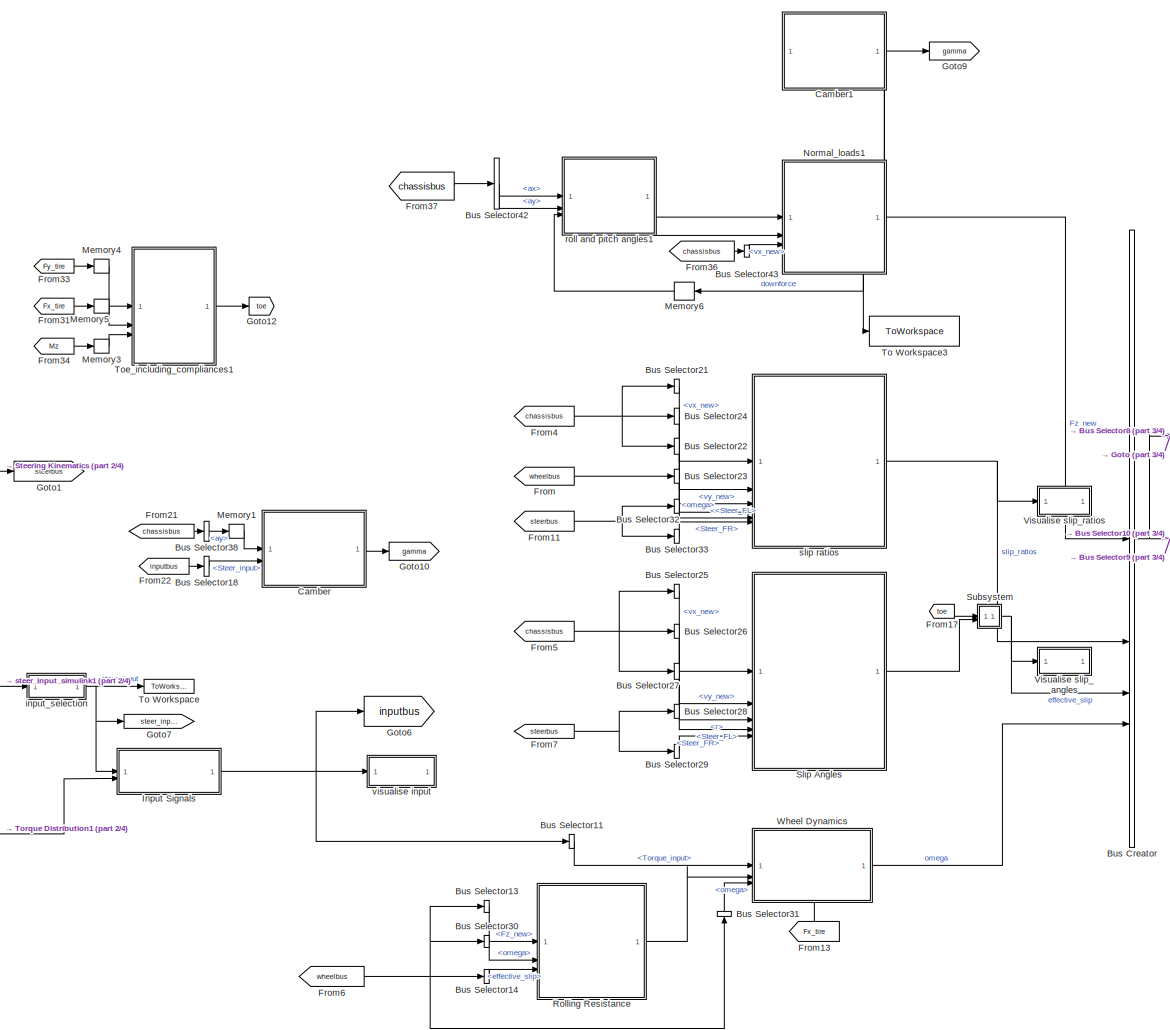
[diagram: root canvas - part 1/4, center side, full height]
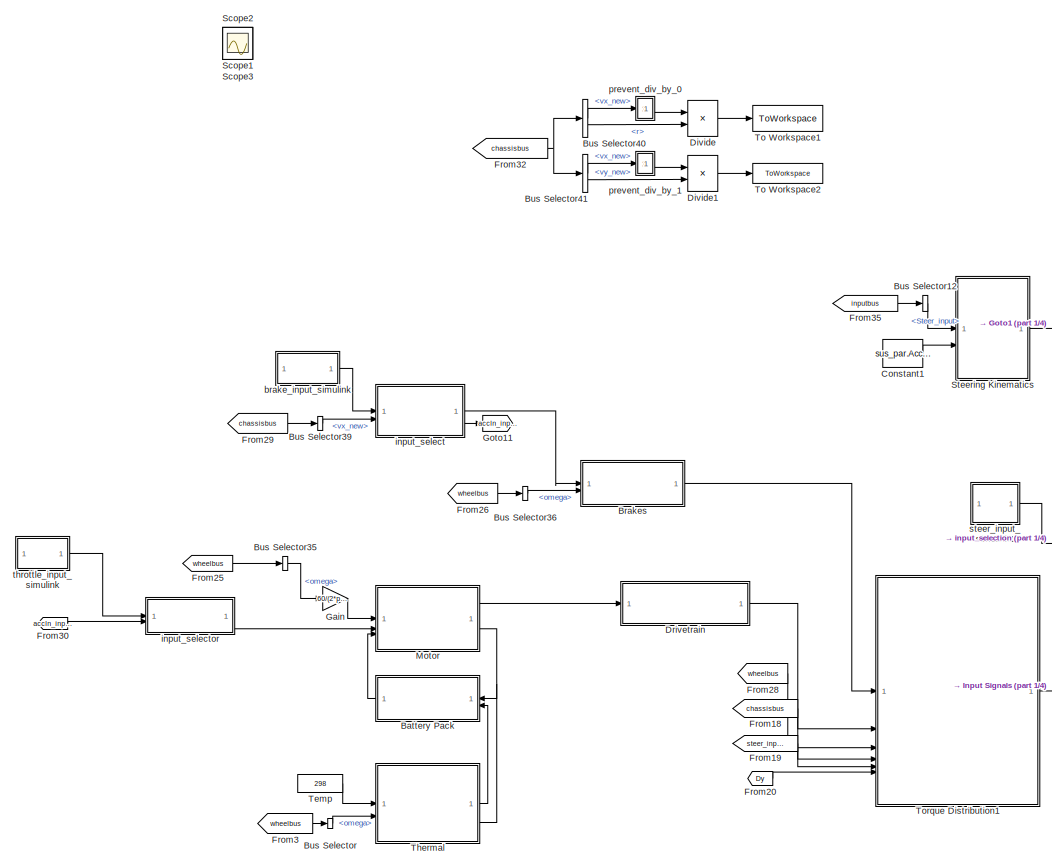
[diagram: root canvas - part 2/4, left side, full height]
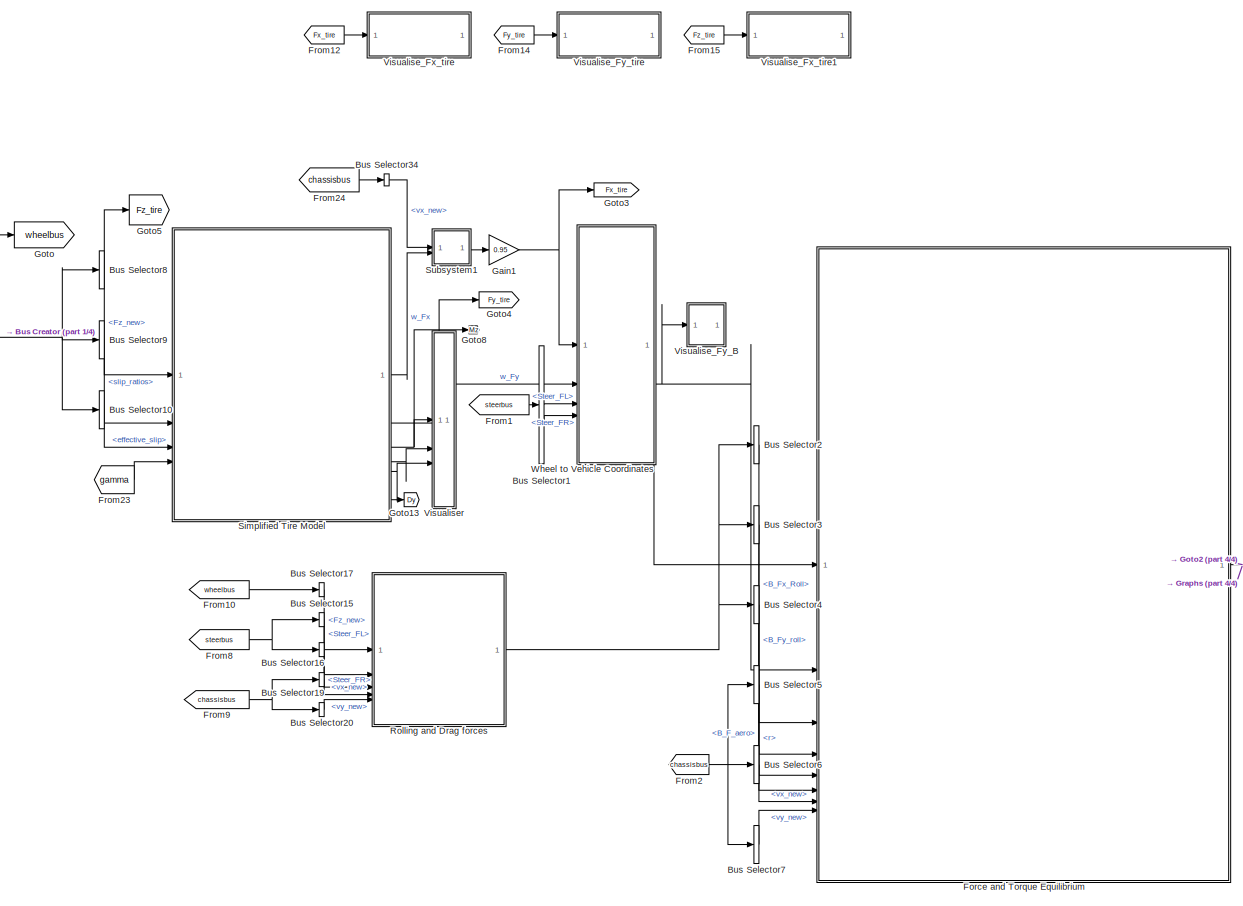
[diagram: root canvas - part 3/4, right side, full height]
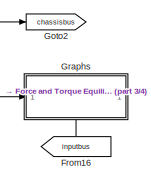
[diagram: root canvas - part 4/4, bottom right region]
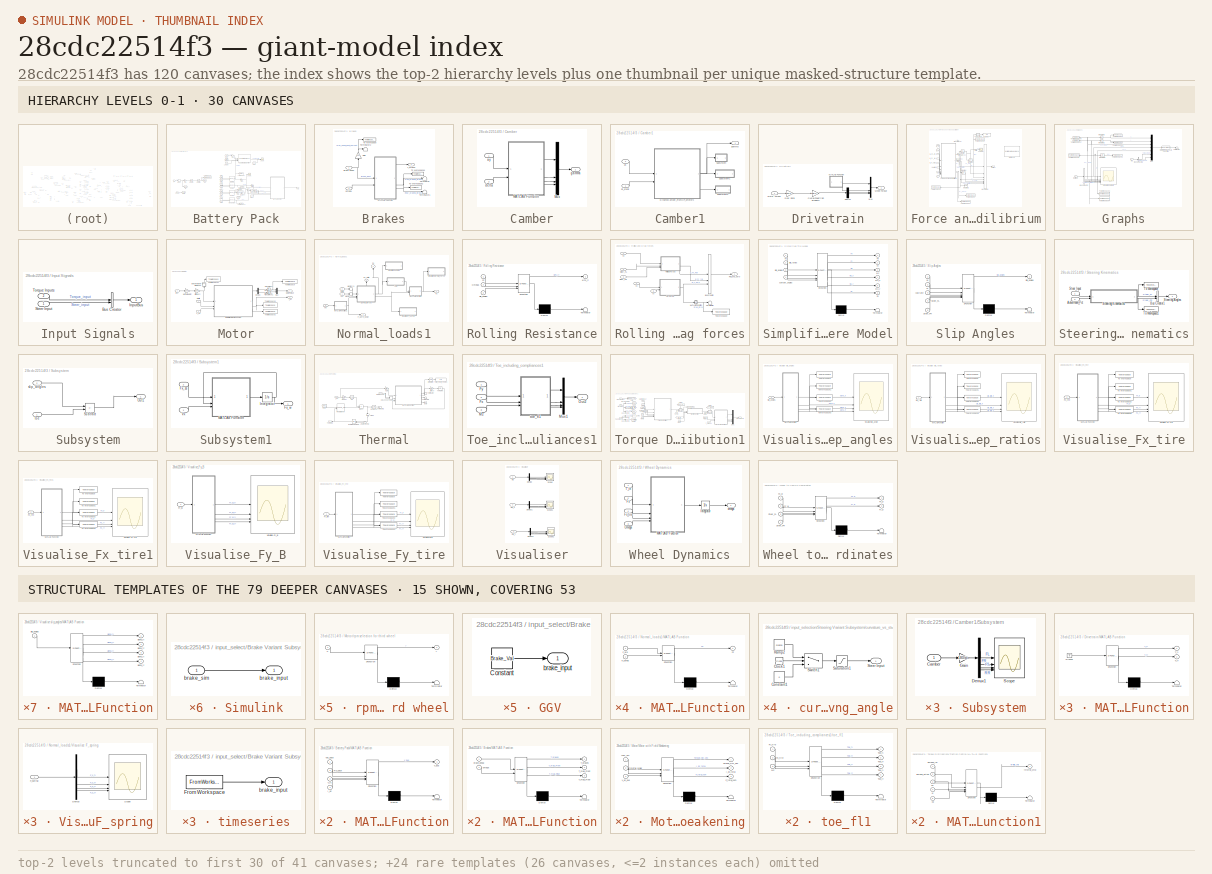
[diagram: thumbnail index - top-2 hierarchy levels (41 canvases (first 30 of 41 shown)) + 15 structural-template representatives of the remaining 79 canvases]
MODEL slx_28cdc22514f3
KIND model
CONFIG AbsTol = auto
CONFIG EnableMultiTasking = off
CONFIG FixedStep = auto
CONFIG MaxStep = 0.001
CONFIG MinStep = auto
CONFIG RelTol = 1e-3
CONFIG SampleTimeConstraint = Unconstrained
CONFIG SolverName = ode23tb
CONFIG StartTime = 0.0
CONFIG StopTime = 50
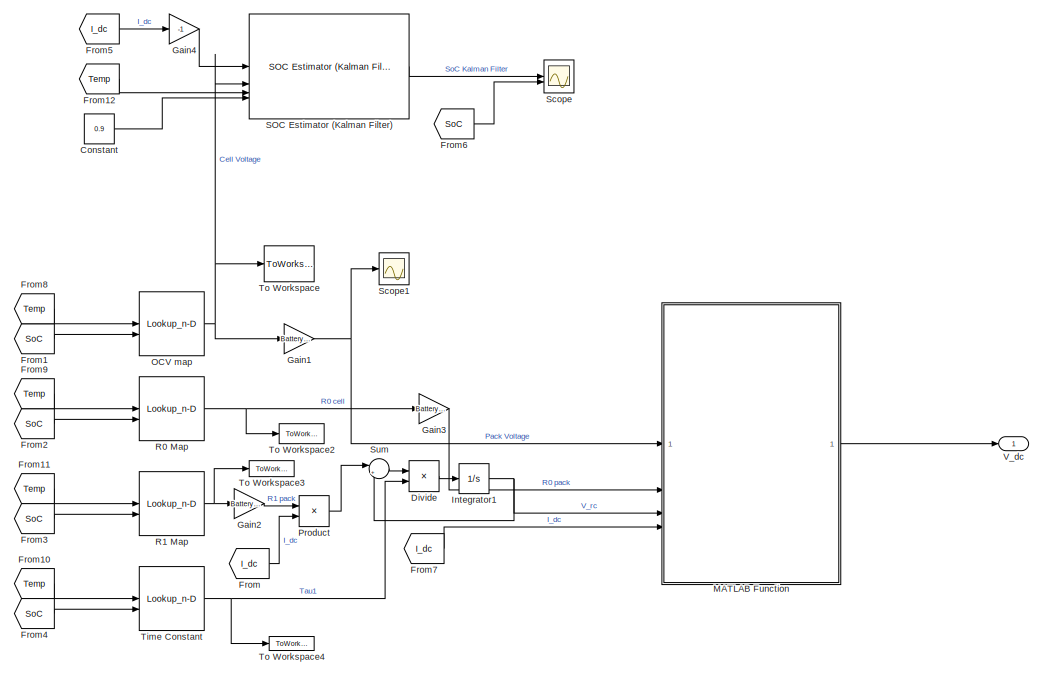
[diagram: Battery Pack - part 1/2, right side, full height]
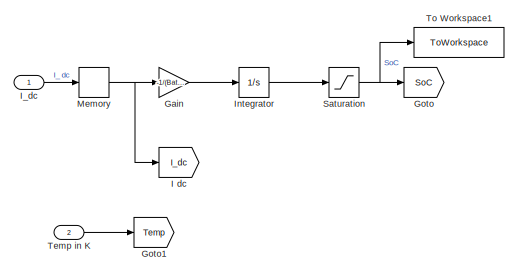
[diagram: Battery Pack - part 2/2, middle left region]
BLOCK [SubSystem] Battery Pack
  ShowPortLabels = none
BLOCK [Constant] Battery Pack/Constant
  Value = 0.9
BLOCK [Product] Battery Pack/Divide
  Inputs = */
BLOCK [From] Battery Pack/From
  GotoTag = I_dc
BLOCK [From] Battery Pack/From1
  GotoTag = SoC
  TagVisibility = global
BLOCK [From] Battery Pack/From10
  GotoTag = Temp
BLOCK [From] Battery Pack/From11
  GotoTag = Temp
BLOCK [From] Battery Pack/From12
  GotoTag = Temp
BLOCK [From] Battery Pack/From2
  GotoTag = SoC
  TagVisibility = global
BLOCK [From] Battery Pack/From3
  GotoTag = SoC
  TagVisibility = global
BLOCK [From] Battery Pack/From4
  GotoTag = SoC
  TagVisibility = global
BLOCK [From] Battery Pack/From5
  GotoTag = I_dc
BLOCK [From] Battery Pack/From6
  GotoTag = SoC
  TagVisibility = global
BLOCK [From] Battery Pack/From7
  GotoTag = I_dc
BLOCK [From] Battery Pack/From8
  GotoTag = Temp
BLOCK [From] Battery Pack/From9
  GotoTag = Temp
BLOCK [Gain] Battery Pack/Gain
  Gain = -1/(Battery.Capacity_Ah*Battery.Np*3600)
BLOCK [Gain] Battery Pack/Gain1
  Gain = Battery.Ns
BLOCK [Gain] Battery Pack/Gain2
  Gain = Battery.Ns/Battery.Np
BLOCK [Gain] Battery Pack/Gain3
  Gain = Battery.Ns/Battery.Np
BLOCK [Gain] Battery Pack/Gain4
  Gain = -1
BLOCK [Goto] Battery Pack/Goto
  GotoTag = SoC
  TagVisibility = global
BLOCK [Goto] Battery Pack/Goto1
  GotoTag = Temp
BLOCK [Goto] Battery Pack/I dc
  GotoTag = I_dc
BLOCK [Inport] Battery Pack/I_dc
BLOCK [Integrator] Battery Pack/Integrator
  InitialCondition = 1
BLOCK [Integrator] Battery Pack/Integrator1
BLOCK [SubSystem] Battery Pack/MATLAB Function
  ErrorFcn = Stateflow.Translate.translate
  PermitHierarchicalResolution = ExplicitOnly
  SFBlockType = MATLAB Function
  TreatAsAtomicUnit = on
BLOCK [Demux] Battery Pack/MATLAB Function/ Demux 
  Outputs = 1
BLOCK [S-Function] Battery Pack/MATLAB Function/ SFunction 
  EnableBusSupport = off
  FunctionName = sf_sfun
  PortCounts = [4 2]
  SFcnIsStateOwnerBlock = off
  SFunctionDeploymentMode = off
  Tag = Stateflow S-Function 19
BLOCK [Terminator] Battery Pack/MATLAB Function/ Terminator 
BLOCK [Inport] Battery Pack/MATLAB Function/I_dc
  Port = 4
BLOCK [Inport] Battery Pack/MATLAB Function/R0_pack
  Port = 2
BLOCK [Inport] Battery Pack/MATLAB Function/V_rc
  Port = 3
BLOCK [Inport] Battery Pack/MATLAB Function/Voc_pack
BLOCK [Outport] Battery Pack/MATLAB Function/v_bus
BLOCK [Memory] Battery Pack/Memory
BLOCK [Lookup_n-D] Battery Pack/OCV map
  BreakpointsForDimension1 = Battery.T_vec
  BreakpointsForDimension2 = Battery.SoC_vec
  InputPortMap = u0,u1
  InternalRulePriority = Speed
  RndMeth = Simplest
  Table = Battery.OCV_map'
BLOCK [Product] Battery Pack/Product
BLOCK [Lookup_n-D] Battery Pack/R0 Map
  BreakpointsForDimension1 = Battery.T_vec
  BreakpointsForDimension2 = Battery.SoC_vec
  InputPortMap = u0,u1
  InternalRulePriority = Speed
  RndMeth = Simplest
  Table = Battery.R0_map'
BLOCK [Lookup_n-D] Battery Pack/R1 Map
  BreakpointsForDimension1 = Battery.T_vec
  BreakpointsForDimension2 = Battery.SoC_vec
  InputPortMap = u0,u1
  InternalRulePriority = Speed
  RndMeth = Simplest
  Table = Battery.R1_map'
BLOCK [Reference] Battery Pack/SOC Estimator (Kalman Filter)  REF=BatteryEstimators/SOC Estimator
(Kalman Filter)
  SourceBlock = BatteryEstimators/SOC Estimator\n(Kalman Filter)
  SourceType = SOC Estimator (Kalman Filter)
BLOCK [Saturate] Battery Pack/Saturation
  LowerLimit = 0
  UpperLimit = 1
BLOCK [Scope] Battery Pack/Scope
  ActiveDisplayYMaximum = 0.86214
  ActiveDisplayYMinimum = 0.74078
  ContainerLayout = {"WindowBounds":[213.33333333333326,149.33333333333326,1280,768],"gridDimensions":{"w":1,"h":1},"tileCount":1,"tileCoverage":1,"columnWeights":1,"rowWeights":1,"tileOccupancy":{}}
  DataLoggingVariableName = ScopeData8
  Floating = off
  GraphicalSettings = {"GraphicalSettings":{"LegacySettings":true,"Style":{"AxesScalingProperties":{"AlignXAxis":"Center","AlignYAxis":"Center","AutoScaleXAxisLimits":false,"AxesScaling":"Manual","AxesScalingNumUpdates":10,"ScaleAxesLimitsAtStop":false,"XAxisDataRange":100,"YAxisDataRange":80},"Style":{"AxesColor":"[0.0705882352941176 0.0705882352941176 0.0705882352941176]","BackgroundColor":"[0.129411764705882 0.12941...<+835ch>
  LayoutDimensionsString = [2 1]
  MultipleDisplayCache = [{"MaxYLimMag":0.86214,"MaxYLimReal":0.86214,"MinYLimMag":0.74078,"MinYLimReal":0.74078,"PlotAsMagnitudePhase":false,"ShowGrid":true,"ShowLegend":false,"Title":"%<SignalLabel>","YLabel":""},{"MaxYLimMag":0.904,"MaxYLimReal":0.904,"MinYLimMag":0.86399,"MinYLimReal":0.86399,"PlotAsMagnitudePhase":false,"ShowGrid":true,"ShowLegend":false,"Title":"%<SignalLabel>","YLabel":""}]
  NumInputPorts = 2
  WasSavedAsWebScope = on
  WindowPosition = [781 313 560 420]
BLOCK [Scope] Battery Pack/Scope1
  ActiveDisplayYMaximum = 588.0193
  ActiveDisplayYMinimum = 583.0264
  DataLoggingVariableName = ScopeData14
  Floating = off
  GraphicalSettings = {"GraphicalSettings":{"LegacySettings":true,"Style":{"AxesScalingProperties":{"AlignXAxis":"Center","AlignYAxis":"Center","AutoScaleXAxisLimits":false,"AxesScaling":"Manual","AxesScalingNumUpdates":10,"ScaleAxesLimitsAtStop":false,"XAxisDataRange":100,"YAxisDataRange":80},"Style":{"AxesColor":"[0.0705882352941176 0.0705882352941176 0.0705882352941176]","BackgroundColor":"[0.129411764705882 0.12941...<+804ch>
  LayoutDimensionsString = [1 1]
  MultipleDisplayCache = [{"MaxYLimMag":588.0193,"MaxYLimReal":588.0193,"MinYLimMag":583.0264,"MinYLimReal":583.0264,"PlotAsMagnitudePhase":false,"ShowGrid":true,"ShowLegend":false,"Title":"%<SignalLabel>","YLabel":""}]
  NumInputPorts = 1
  WasSavedAsWebScope = on
  WindowPosition = [573 323 560 420]
BLOCK [Sum] Battery Pack/Sum
  Inputs = |+-
BLOCK [Inport] Battery Pack/Temp in K
  Port = 2
BLOCK [Lookup_n-D] Battery Pack/Time Constant
  BreakpointsForDimension1 = Battery.T_vec
  BreakpointsForDimension2 = Battery.SoC_vec
  InputPortMap = u0,u1
  InternalRulePriority = Speed
  RndMeth = Simplest
  Table = Battery.Tau_map'
BLOCK [ToWorkspace] Battery Pack/To Workspace
  FixptAsFi = on
  MaxDataPoints = inf
  SampleTime = -1
  SaveFormat = Timeseries
  VariableName = cell_volt
BLOCK [ToWorkspace] Battery Pack/To Workspace1
  FixptAsFi = on
  MaxDataPoints = inf
  SampleTime = -1
  SaveFormat = Timeseries
  VariableName = SoC
BLOCK [ToWorkspace] Battery Pack/To Workspace2
  FixptAsFi = on
  MaxDataPoints = inf
  SampleTime = -1
  SaveFormat = Timeseries
  VariableName = R0_cell
BLOCK [ToWorkspace] Battery Pack/To Workspace3
  FixptAsFi = on
  MaxDataPoints = inf
  SampleTime = -1
  SaveFormat = Timeseries
  VariableName = R1_cell
BLOCK [ToWorkspace] Battery Pack/To Workspace4
  FixptAsFi = on
  MaxDataPoints = inf
  SampleTime = -1
  SaveFormat = Timeseries
  VariableName = Tou_1
BLOCK [Outport] Battery Pack/V_dc
BLOCK [SubSystem] Brakes
  ShowPortLabels = none
BLOCK [Inport] Brakes/Brake pedal
BLOCK [Gain] Brakes/Gain
  Gain = 100
  NameLocation = right
BLOCK [SubSystem] Brakes/MATLAB Function
  ErrorFcn = Stateflow.Translate.translate
  PermitHierarchicalResolution = ExplicitOnly
  SFBlockType = MATLAB Function
  TreatAsAtomicUnit = on
BLOCK [Demux] Brakes/MATLAB Function/ Demux 
  Outputs = 1
BLOCK [S-Function] Brakes/MATLAB Function/ SFunction 
  EnableBusSupport = off
  FunctionName = sf_sfun
  Parameters = Brake
  PortCounts = [2 4]
  SFcnIsStateOwnerBlock = off
  SFunctionDeploymentMode = off
  Tag = Stateflow S-Function 20
BLOCK [Terminator] Brakes/MATLAB Function/ Terminator 
BLOCK [Outport] Brakes/MATLAB Function/T_brakes
BLOCK [Outport] Brakes/MATLAB Function/T_mag_Front
  Port = 2
BLOCK [Outport] Brakes/MATLAB Function/T_mag_Rear
  Port = 3
BLOCK [Inport] Brakes/MATLAB Function/brake_pedal
BLOCK [Inport] Brakes/MATLAB Function/omega
  Port = 2
BLOCK [Outport] Brakes/T_brakes
BLOCK [Terminator] Brakes/Terminator
BLOCK [Terminator] Brakes/Terminator1
BLOCK [Terminator] Brakes/Terminator2
BLOCK [ToWorkspace] Brakes/To Workspace
  FixptAsFi = on
  MaxDataPoints = inf
  SampleTime = -1
  SaveFormat = Timeseries
  VariableName = brk_ipt_pct
BLOCK [ToWorkspace] Brakes/To Workspace1
  FixptAsFi = on
  MaxDataPoints = inf
  SampleTime = -1
  SaveFormat = Timeseries
  VariableName = Front_braking_torque
BLOCK [ToWorkspace] Brakes/To Workspace2
  FixptAsFi = on
  MaxDataPoints = inf
  SampleTime = -1
  SaveFormat = Timeseries
  VariableName = Rear_braking_torque
BLOCK [Inport] Brakes/omega
  Port = 2
BLOCK [BusCreator] Bus Creator
  DisplayOption = bar
  InheritFromInputs = on
  Inputs = 4
BLOCK [BusSelector] Bus Selector
  OutputSignals = omega
BLOCK [BusSelector] Bus Selector1
  OutputSignals = Steer_FL,Steer_FR
BLOCK [BusSelector] Bus Selector10
  OutputSignals = effective_slip
BLOCK [BusSelector] Bus Selector11
  OutputSignals = Torque_input
BLOCK [BusSelector] Bus Selector12
  OutputSignals = Steer_input
BLOCK [BusSelector] Bus Selector13
  OutputSignals = Fz_new
BLOCK [BusSelector] Bus Selector14
  OutputSignals = effective_slip
BLOCK [BusSelector] Bus Selector15
  OutputSignals = Steer_FL
BLOCK [BusSelector] Bus Selector16
  OutputSignals = Steer_FR
BLOCK [BusSelector] Bus Selector17
  OutputSignals = Fz_new
BLOCK [BusSelector] Bus Selector18
  Commented = on
  OutputSignals = Steer_input
BLOCK [BusSelector] Bus Selector19
  OutputSignals = vx_new
BLOCK [BusSelector] Bus Selector2
  OutputSignals = B_Fx_Roll
BLOCK [BusSelector] Bus Selector20
  OutputSignals = vy_new
BLOCK [BusSelector] Bus Selector21
  OutputSignals = vx_new
BLOCK [BusSelector] Bus Selector22
  OutputSignals = r
BLOCK [BusSelector] Bus Selector23
  OutputSignals = omega
BLOCK [BusSelector] Bus Selector24
  OutputSignals = vy_new
BLOCK [BusSelector] Bus Selector25
  OutputSignals = vx_new
BLOCK [BusSelector] Bus Selector26
  OutputSignals = vy_new
BLOCK [BusSelector] Bus Selector27
  OutputSignals = r
BLOCK [BusSelector] Bus Selector28
  OutputSignals = Steer_FL
BLOCK [BusSelector] Bus Selector29
  OutputSignals = Steer_FR
BLOCK [BusSelector] Bus Selector3
  OutputSignals = B_Fy_roll
BLOCK [BusSelector] Bus Selector30
  OutputSignals = omega
BLOCK [BusSelector] Bus Selector31
  NameLocation = right
  OutputSignals = omega
BLOCK [BusSelector] Bus Selector32
  OutputSignals = Steer_FL
BLOCK [BusSelector] Bus Selector33
  OutputSignals = Steer_FR
BLOCK [BusSelector] Bus Selector34
  OutputSignals = vx_new
BLOCK [BusSelector] Bus Selector35
  OutputSignals = omega
BLOCK [BusSelector] Bus Selector36
  OutputSignals = omega
BLOCK [BusSelector] Bus Selector38
  Commented = on
  OutputSignals = ay
BLOCK [BusSelector] Bus Selector39
  OutputSignals = vx_new
BLOCK [BusSelector] Bus Selector4
  OutputSignals = B_F_aero
BLOCK [BusSelector] Bus Selector40
  Commented = on
  OutputSignals = vx_new,r
BLOCK [BusSelector] Bus Selector41
  Commented = on
  OutputSignals = vx_new,vy_new
BLOCK [BusSelector] Bus Selector42
  OutputSignals = ax,ay
BLOCK [BusSelector] Bus Selector43
  OutputSignals = vx_new
BLOCK [BusSelector] Bus Selector5
  OutputSignals = r
BLOCK [BusSelector] Bus Selector6
  OutputSignals = vx_new
BLOCK [BusSelector] Bus Selector7
  OutputSignals = vy_new
BLOCK [BusSelector] Bus Selector8
  OutputSignals = Fz_new
BLOCK [BusSelector] Bus Selector9
  OutputSignals = slip_ratios
BLOCK [SubSystem] Camber
  Commented = on
  ShowPortLabels = none
BLOCK [SubSystem] Camber/MATLAB Function
  ErrorFcn = Stateflow.Translate.translate
  PermitHierarchicalResolution = ExplicitOnly
  SFBlockType = MATLAB Function
  TreatAsAtomicUnit = on
BLOCK [Demux] Camber/MATLAB Function/ Demux 
  Outputs = 1
BLOCK [S-Function] Camber/MATLAB Function/ SFunction 
  EnableBusSupport = off
  FunctionName = sf_sfun
  Parameters = Par,sus_par
  PortCounts = [2 5]
  SFcnIsStateOwnerBlock = off
  SFunctionDeploymentMode = off
  Tag = Stateflow S-Function 16
BLOCK [Terminator] Camber/MATLAB Function/ Terminator 
BLOCK [Inport] Camber/MATLAB Function/ay
BLOCK [Inport] Camber/MATLAB Function/delta
  Port = 2
BLOCK [Outport] Camber/MATLAB Function/gamma_FL
  Port = 2
BLOCK [Outport] Camber/MATLAB Function/gamma_FR
BLOCK [Outport] Camber/MATLAB Function/gamma_RL
  Port = 3
BLOCK [Outport] Camber/MATLAB Function/gamma_RR
  Port = 4
BLOCK [Mux] Camber/Mux
  DisplayOption = bar
BLOCK [Inport] Camber/ay
BLOCK [Inport] Camber/delta
  Port = 2
BLOCK [Outport] Camber/gamma
BLOCK [SubSystem] Camber1
  NameLocation = top
  PortSchema = {"entries":[{"content":{"sides":[{"content":{},"type":"ConnectorPlacement.EquallySpacedRectSide","uuid":"3195d381-be28-49da-8fb0-abb81acde47d"},{"content":{"connectorIds":["Out1"],"side":"RIGHT"},"type":"ConnectorPlacement.EquallySpacedRectSide","uuid":"ee555968-c3bd-4b66-9d31-d91577019264"},{"content":{"side":"TOP"},"type":"ConnectorPlacement.EquallySpacedRectSide","uuid":"4eacfe39-9434-48f3-a8a4...<+355ch>
  ShowPortLabels = FromPortBlockName
BLOCK [SubSystem] Camber1/DynamicCamber_FromHP_Zmeters
  ErrorFcn = Stateflow.Translate.translate
  NameLocation = top
  PermitHierarchicalResolution = ExplicitOnly
  SFBlockType = MATLAB Function
  ShowPortLabels = FromPortBlockName
  TreatAsAtomicUnit = on
BLOCK [Demux] Camber1/DynamicCamber_FromHP_Zmeters/ Demux 
  Outputs = 1
BLOCK [S-Function] Camber1/DynamicCamber_FromHP_Zmeters/ SFunction 
  EnableBusSupport = off
  FunctionName = sf_sfun
  Parameters = HP,sus_par
  PortCounts = [2 4]
  SFcnIsStateOwnerBlock = off
  SFunctionDeploymentMode = off
  Tag = Stateflow S-Function 41
BLOCK [Terminator] Camber1/DynamicCamber_FromHP_Zmeters/ Terminator 
BLOCK [Outport] Camber1/DynamicCamber_FromHP_Zmeters/Camber
BLOCK [Inport] Camber1/DynamicCamber_FromHP_Zmeters/Zs
BLOCK [Inport] Camber1/DynamicCamber_FromHP_Zmeters/Zs_static
  Port = 2
BLOCK [Outport] Camber1/DynamicCamber_FromHP_Zmeters/dynamic_camber_visualisation
  Port = 2
BLOCK [Outport] Camber1/DynamicCamber_FromHP_Zmeters/static_camber_visualisation
  Port = 3
BLOCK [SubSystem] Camber1/Subsystem
BLOCK [Inport] Camber1/Subsystem/Camber
BLOCK [Demux] Camber1/Subsystem/Demux1
BLOCK [Gain] Camber1/Subsystem/Gain
  Gain = 180/pi
BLOCK [Scope] Camber1/Subsystem/Scope
  ActiveDisplayYMaximum = 0.49315
  ActiveDisplayYMinimum = -0.50156
  DataLoggingVariableName = ScopeData17
  Floating = off
  GraphicalSettings = {"GraphicalSettings":{"LegacySettings":true,"Style":{"AxesScalingProperties":{"AlignXAxis":"Center","AlignYAxis":"Center","AutoScaleXAxisLimits":false,"AxesScaling":"Manual","AxesScalingNumUpdates":10,"ScaleAxesLimitsAtStop":false,"XAxisDataRange":100,"YAxisDataRange":80},"Style":{"AxesColor":"[0.0705882352941176 0.0705882352941176 0.0705882352941176]","BackgroundColor":"[0.129411764705882 0.12941...<+1024ch>
  LayoutDimensionsString = [2 2]
  MultipleDisplayCache = [{"MaxYLimMag":0.50156,"MaxYLimReal":0.49315,"MinYLimMag":0,"MinYLimReal":-0.50156,"PlotAsMagnitudePhase":false,"ShowGrid":true,"ShowLegend":true,"Title":"%<SignalLabel>","YLabel":""},{"MaxYLimMag":0.6227,"MaxYLimReal":0.50661,"MinYLimMag":0,"MinYLimReal":-0.6227,"PlotAsMagnitudePhase":false,"ShowGrid":true,"ShowLegend":true,"Title":"%<SignalLabel>","YLabel":""},{"MaxYLimMag":0.77528,"MaxYLimReal"...<+331ch>
  NumInputPorts = 4
  ShowLegend = on
  WasSavedAsWebScope = on
  WindowPosition = [0 12 1536 841]
BLOCK [SubSystem] Camber1/Subsystem1
  Commented = on
BLOCK [Demux] Camber1/Subsystem1/Demux1
BLOCK [Gain] Camber1/Subsystem1/Gain
  Gain = 180/pi
BLOCK [Scope] Camber1/Subsystem1/Scope
  ActiveDisplayYMaximum = 79.6641
  ActiveDisplayYMinimum = 78.6694
  DataLoggingVariableName = ScopeData17
  Floating = off
  GraphicalSettings = {"GraphicalSettings":{"LegacySettings":true,"Style":{"AxesScalingProperties":{"AlignXAxis":"Center","AlignYAxis":"Center","AutoScaleXAxisLimits":false,"AxesScaling":"Manual","AxesScalingNumUpdates":10,"ScaleAxesLimitsAtStop":true,"XAxisDataRange":100,"YAxisDataRange":80},"Style":{"AxesColor":"[0.0705882352941176 0.0705882352941176 0.0705882352941176]","BackgroundColor":"[0.129411764705882 0.129411...<+1023ch>
  LayoutDimensionsString = [2 2]
  MultipleDisplayCache = [{"MaxYLimMag":79.6641,"MaxYLimReal":79.6641,"MinYLimMag":78.6694,"MinYLimReal":78.6694,"PlotAsMagnitudePhase":false,"ShowGrid":true,"ShowLegend":false,"Title":"%<SignalLabel>","YLabel":""},{"MaxYLimMag":79.6776,"MaxYLimReal":-78.5482,"MinYLimMag":0,"MinYLimReal":-79.6776,"PlotAsMagnitudePhase":false,"ShowGrid":true,"ShowLegend":false,"Title":"%<SignalLabel>","YLabel":""},{"MaxYLimMag":75.4421,"Ma...<+346ch>
  NumInputPorts = 4
  WasSavedAsWebScope = on
  WindowPosition = [0 12 1536 841]
BLOCK [Inport] Camber1/Subsystem1/dynamic_camber
BLOCK [SubSystem] Camber1/Subsystem2
  Commented = on
BLOCK [Demux] Camber1/Subsystem2/Demux1
BLOCK [Gain] Camber1/Subsystem2/Gain
  Gain = 180/pi
BLOCK [Scope] Camber1/Subsystem2/Scope
  ActiveDisplayYMaximum = 1
  ActiveDisplayYMinimum = -1
  DataLoggingVariableName = ScopeData17
  Floating = off
  GraphicalSettings = {"GraphicalSettings":{"LegacySettings":true,"Style":{"AxesScalingProperties":{"AlignXAxis":"Center","AlignYAxis":"Center","AutoScaleXAxisLimits":false,"AxesScaling":"Manual","AxesScalingNumUpdates":10,"ScaleAxesLimitsAtStop":true,"XAxisDataRange":100,"YAxisDataRange":80},"Style":{"AxesColor":"[0.0705882352941176 0.0705882352941176 0.0705882352941176]","BackgroundColor":"[0.129411764705882 0.129411...<+1023ch>
  LayoutDimensionsString = [2 2]
  MultipleDisplayCache = [{"MaxYLimMag":1,"MaxYLimReal":1,"MinYLimMag":0,"MinYLimReal":-1,"PlotAsMagnitudePhase":false,"ShowGrid":true,"ShowLegend":false,"Title":"%<SignalLabel>","YLabel":""},{"MaxYLimMag":1,"MaxYLimReal":1,"MinYLimMag":0,"MinYLimReal":-1,"PlotAsMagnitudePhase":false,"ShowGrid":true,"ShowLegend":false,"Title":"%<SignalLabel>","YLabel":""},{"MaxYLimMag":1,"MaxYLimReal":1,"MinYLimMag":0,"MinYLimReal":-1,"Pl...<+265ch>  <repeated x4 — deduplicated; at blocks: Scope, Scope3, Visualise slip_angle>
  NumInputPorts = 4
  WasSavedAsWebScope = on
  WindowPosition = [0 12 1536 841]
BLOCK [Inport] Camber1/Subsystem2/static_camber
BLOCK [Inport] Camber1/Zs
  Port = 2
BLOCK [Inport] Camber1/Zs_static
BLOCK [Outport] Camber1/gamma
BLOCK [Constant] Constant1
  Value = sus_par.Acc_pct
BLOCK [Product] Divide
  Commented = on
  Inputs = /*
BLOCK [Product] Divide1
  Commented = on
  Inputs = /*
BLOCK [SubSystem] Drivetrain
  ShowPortLabels = none
BLOCK [Demux] Drivetrain/Demux
  Outputs = 2
BLOCK [Gain] Drivetrain/Gear Ratio
  Gain = Motor.gear_ratio
BLOCK [SubSystem] Drivetrain/MATLAB Function
  ErrorFcn = Stateflow.Translate.translate
  PermitHierarchicalResolution = ExplicitOnly
  SFBlockType = MATLAB Function
  TreatAsAtomicUnit = on
BLOCK [Demux] Drivetrain/MATLAB Function/ Demux 
  Outputs = 1
BLOCK [Ground] Drivetrain/MATLAB Function/ Ground 
BLOCK [S-Function] Drivetrain/MATLAB Function/ SFunction 
  EnableBusSupport = off
  FunctionName = sf_sfun
  PortCounts = [1 3]
  SFcnIsStateOwnerBlock = off
  SFunctionDeploymentMode = off
  Tag = Stateflow S-Function 40
BLOCK [Terminator] Drivetrain/MATLAB Function/ Terminator 
BLOCK [Outport] Drivetrain/MATLAB Function/T_fl
BLOCK [Outport] Drivetrain/MATLAB Function/T_fr
  Port = 2
BLOCK [Inport] Drivetrain/Motor Torque
BLOCK [Mux] Drivetrain/Mux
  DisplayOption = bar
BLOCK [Gain] Drivetrain/Overall Powertrain Efficiency
  Gain = Motor.overall_efficiency
BLOCK [Outport] Drivetrain/Wheel Torque
BLOCK [SubSystem] Force and Torque Equilibrium
  ShowPortLabels = none
BLOCK [Inport] Force and Torque Equilibrium/B_F_drag
  Port = 5
BLOCK [Inport] Force and Torque Equilibrium/B_Fx
BLOCK [Inport] Force and Torque Equilibrium/B_Fx_roll
  Port = 3
BLOCK [Inport] Force and Torque Equilibrium/B_Fy
  Port = 2
BLOCK [Inport] Force and Torque Equilibrium/B_Fy_roll
  Port = 4
BLOCK [BusCreator] Force and Torque Equilibrium/Bus Creator
  DisplayOption = bar
  InheritFromInputs = on
  Inputs = 7
BLOCK [Display] Force and Torque Equilibrium/Display
  Decimation = 1
BLOCK [SubSystem] Force and Torque Equilibrium/Force and Torque Equilibrium
  ErrorFcn = Stateflow.Translate.translate
  PermitHierarchicalResolution = ExplicitOnly
  SFBlockType = MATLAB Function
  TreatAsAtomicUnit = on
BLOCK [Demux] Force and Torque Equilibrium/Force and Torque Equilibrium/ Demux 
  Outputs = 1
BLOCK [S-Function] Force and Torque Equilibrium/Force and Torque Equilibrium/ SFunction 
  EnableBusSupport = off
  FunctionName = sf_sfun
  Parameters = Par
  PortCounts = [8 6]
  SFcnIsStateOwnerBlock = off
  SFunctionDeploymentMode = off
  Tag = Stateflow S-Function 10
BLOCK [Terminator] Force and Torque Equilibrium/Force and Torque Equilibrium/ Terminator 
BLOCK [Inport] Force and Torque Equilibrium/Force and Torque Equilibrium/B_F_drag
  Port = 5
BLOCK [Inport] Force and Torque Equilibrium/Force and Torque Equilibrium/B_Fx
BLOCK [Inport] Force and Torque Equilibrium/Force and Torque Equilibrium/B_Fx_roll
  Port = 3
BLOCK [Inport] Force and Torque Equilibrium/Force and Torque Equilibrium/B_Fy
  Port = 2
BLOCK [Inport] Force and Torque Equilibrium/Force and Torque Equilibrium/B_Fy_roll
  Port = 4
BLOCK [Outport] Force and Torque Equilibrium/Force and Torque Equilibrium/ax
BLOCK [Outport] Force and Torque Equilibrium/Force and Torque Equilibrium/ax_sensor
  Port = 5
BLOCK [Outport] Force and Torque Equilibrium/Force and Torque Equilibrium/ay
  Port = 2
BLOCK [Outport] Force and Torque Equilibrium/Force and Torque Equilibrium/ay_sensor
  Port = 4
BLOCK [Outport] Force and Torque Equilibrium/Force and Torque Equilibrium/r_dot
  Port = 3
BLOCK [Inport] Force and Torque Equilibrium/Force and Torque Equilibrium/vx
  Port = 7
BLOCK [Inport] Force and Torque Equilibrium/Force and Torque Equilibrium/vy
  Port = 8
BLOCK [Inport] Force and Torque Equilibrium/Force and Torque Equilibrium/yawrate
  Port = 6
BLOCK [Gain] Force and Torque Equilibrium/Gain
  Gain = 18/5
BLOCK [SemiCircularGaugeBlock] Force and Torque Equilibrium/Half Gauge
  ScaleMax = 150
BLOCK [Integrator] Force and Torque Equilibrium/Integrator
  InitialCondition = init_vx
  LimitOutput = on
  LowerSaturationLimit = 0
  UpperSaturationLimit = 1e6
BLOCK [Integrator] Force and Torque Equilibrium/Integrator1
  InitialCondition = init_vy
  LimitOutput = on
  UpperSaturationLimit = 1e6
BLOCK [Integrator] Force and Torque Equilibrium/Integrator2
  InitialCondition = init_r
  LimitOutput = on
  UpperSaturationLimit = 1e6
BLOCK [Integrator] Force and Torque Equilibrium/Integrator3
BLOCK [Outport] Force and Torque Equilibrium/OutBus
BLOCK [Scope] Force and Torque Equilibrium/Scope1
  ActiveDisplayYMaximum = 1
  ActiveDisplayYMinimum = -1
  DataLoggingVariableName = ScopeData20
  Floating = off
  GraphicalSettings = {"GraphicalSettings":{"LegacySettings":true,"Style":{"AxesScalingProperties":{"AlignXAxis":"Center","AlignYAxis":"Center","AutoScaleXAxisLimits":false,"AxesScaling":"Manual","AxesScalingNumUpdates":10,"ScaleAxesLimitsAtStop":true,"XAxisDataRange":100,"YAxisDataRange":80},"Style":{"AxesColor":"[0.0705882352941176 0.0705882352941176 0.0705882352941176]","BackgroundColor":"[0.129411764705882 0.129411...<+822ch>
  LayoutDimensionsString = [1 1]
  MultipleDisplayCache = [{"MaxYLimMag":1,"MaxYLimReal":1,"MinYLimMag":0,"MinYLimReal":-1,"PlotAsMagnitudePhase":false,"ShowGrid":true,"ShowLegend":false,"Title":"%<SignalLabel>","YLabel":""}]
  NumInputPorts = 1
  WasSavedAsWebScope = on
  WindowPosition = [1 1 1536 841]
BLOCK [SubSystem] Force and Torque Equilibrium/Subsystem
BLOCK [Clock] Force and Torque Equilibrium/Subsystem/Clock
BLOCK [Reference] Force and Torque Equilibrium/Subsystem/Compare To Constant  REF=simulink/Logic and Bit
Operations/Compare
To Constant
  SourceBlock = simulink/Logic and Bit\nOperations/Compare\nTo Constant
  SourceType = Compare To Constant
BLOCK [Reference] Force and Torque Equilibrium/Subsystem/Detect Rise Positive  REF=simulink/Logic and Bit
Operations/Detect Rise
Positive
  SourceBlock = simulink/Logic and Bit\nOperations/Detect Rise\nPositive
  SourceType = Detect Rise Positive
BLOCK [Inport] Force and Torque Equilibrium/Subsystem/In1
BLOCK [Outport] Force and Torque Equilibrium/Subsystem/Out1
BLOCK [SubSystem] Force and Torque Equilibrium/Subsystem/Triggered Subsystem
  TreatAsAtomicUnit = on
BLOCK [Inport] Force and Torque Equilibrium/Subsystem/Triggered Subsystem/In1
BLOCK [Outport] Force and Torque Equilibrium/Subsystem/Triggered Subsystem/Out1
BLOCK [TriggerPort] Force and Torque Equilibrium/Subsystem/Triggered Subsystem/Trigger
  StatesWhenEnabling = held
  VariantControl = (inherit)
BLOCK [ToWorkspace] Force and Torque Equilibrium/To Workspace
  Commented = on
  FixptAsFi = on
  MaxDataPoints = inf
  SampleTime = -1
  SaveFormat = Timeseries
  VariableName = ay_sensor
BLOCK [ToWorkspace] Force and Torque Equilibrium/To Workspace1
  Commented = on
  FixptAsFi = on
  MaxDataPoints = inf
  SampleTime = -1
  SaveFormat = Timeseries
  VariableName = ax_sensor
BLOCK [ToWorkspace] Force and Torque Equilibrium/To Workspace2
  Commented = on
  FixptAsFi = on
  MaxDataPoints = inf
  SampleTime = -1
  SaveFormat = Timeseries
  VariableName = disp
BLOCK [ToWorkspace] Force and Torque Equilibrium/To Workspace3
  FixptAsFi = on
  MaxDataPoints = inf
  SampleTime = -1
  SaveFormat = Timeseries
  VariableName = yaw_accln
BLOCK [TransferFcn] Force and Torque Equilibrium/Transfer Fcn
  Denominator = [0 10]
BLOCK [TransferFcn] Force and Torque Equilibrium/Transfer Fcn1
  Commented = on
  Denominator = [0.0133 1]
BLOCK [TransferFcn] Force and Torque Equilibrium/Transfer Fcn2
  Denominator = [0.133 10]
BLOCK [Inport] Force and Torque Equilibrium/vx
  Port = 7
BLOCK [Inport] Force and Torque Equilibrium/vy
  Port = 8
BLOCK [Inport] Force and Torque Equilibrium/yawrate
  Port = 6
BLOCK [From] From
  GotoTag = wheelbus
BLOCK [From] From1
  GotoTag = steerbus
BLOCK [From] From10
  GotoTag = wheelbus
BLOCK [From] From11
  GotoTag = steerbus
BLOCK [From] From12
  GotoTag = Fx_tire
BLOCK [From] From13
  GotoTag = Fx_tire
  NameLocation = right
BLOCK [From] From14
  GotoTag = Fy_tire
BLOCK [From] From15
  GotoTag = Fz_tire
BLOCK [From] From16
  GotoTag = inputbus
  NameLocation = right
BLOCK [From] From17
  GotoTag = toe
BLOCK [From] From18
  GotoTag = chassisbus
BLOCK [From] From19
  GotoTag = steer_input
BLOCK [From] From2
  GotoTag = chassisbus
BLOCK [From] From20
  GotoTag = Dy
BLOCK [From] From21
  Commented = on
  GotoTag = chassisbus
BLOCK [From] From22
  Commented = on
  GotoTag = inputbus
BLOCK [From] From23
  GotoTag = gamma
BLOCK [From] From24
  GotoTag = chassisbus
BLOCK [From] From25
  GotoTag = wheelbus
BLOCK [From] From26
  GotoTag = wheelbus
BLOCK [From] From28
  GotoTag = wheelbus
BLOCK [From] From29
  GotoTag = chassisbus
BLOCK [From] From3
  GotoTag = wheelbus
BLOCK [From] From30
  GotoTag = accln_input_for_map_1
BLOCK [From] From31
  GotoTag = Fx_tire
BLOCK [From] From32
  Commented = on
  GotoTag = chassisbus
BLOCK [From] From33
  GotoTag = Fy_tire
BLOCK [From] From34
  GotoTag = Mz
BLOCK [From] From35
  GotoTag = inputbus
BLOCK [From] From36
  GotoTag = chassisbus
BLOCK [From] From37
  GotoTag = chassisbus
BLOCK [From] From4
  GotoTag = chassisbus
BLOCK [From] From5
  GotoTag = chassisbus
BLOCK [From] From6
  GotoTag = wheelbus
BLOCK [From] From7
  GotoTag = steerbus
BLOCK [From] From8
  GotoTag = steerbus
BLOCK [From] From9
  GotoTag = chassisbus
BLOCK [Gain] Gain
  Gain = 60/(2*pi)
BLOCK [Gain] Gain1
  Gain = 0.95
BLOCK [Goto] Goto
  GotoTag = wheelbus
BLOCK [Goto] Goto1
  GotoTag = steerbus
BLOCK [Goto] Goto10
  Commented = on
  GotoTag = gamma
BLOCK [Goto] Goto11
  GotoTag = accln_input_for_map_1
BLOCK [Goto] Goto12
  GotoTag = toe
BLOCK [Goto] Goto13
  GotoTag = Dy
BLOCK [Goto] Goto2
  GotoTag = chassisbus
BLOCK [Goto] Goto3
  GotoTag = Fx_tire
BLOCK [Goto] Goto4
  GotoTag = Fy_tire
BLOCK [Goto] Goto5
  GotoTag = Fz_tire
BLOCK [Goto] Goto6
  GotoTag = inputbus
BLOCK [Goto] Goto7
  GotoTag = steer_input
BLOCK [Goto] Goto8
  GotoTag = Mz
BLOCK [Goto] Goto9
  GotoTag = gamma
BLOCK [SubSystem] Graphs
  NameLocation = top
  PortSchema = {"entries":[{"content":{"sides":[{"content":{"connectorIds":["In1"]},"type":"ConnectorPlacement.EquallySpacedRectSide","uuid":"0d7f1a6c-503e-4c9f-90e9-70f717dd7dfc"},{"content":{"side":"RIGHT"},"type":"ConnectorPlacement.EquallySpacedRectSide","uuid":"62097468-b066-4e29-8f99-7427d14bee77"},{"content":{"side":"TOP"},"type":"ConnectorPlacement.EquallySpacedRectSide","uuid":"2a3f381e-a201-4804-99b7-7...<+347ch>
  ShowPortLabels = none
BLOCK [BusSelector] Graphs/Bus Selector
  OutputSignals = ax,vx_new,ay,vy_new,yaw acceleration,r
BLOCK [BusSelector] Graphs/Bus Selector1
  OutputSignals = Steer_input,Torque_input
BLOCK [Inport] Graphs/In2
  Port = 2
BLOCK [Integrator] Graphs/Integrator1
BLOCK [Integrator] Graphs/Integrator2
BLOCK [Integrator] Graphs/Integrator3
BLOCK [MATLABFcn] Graphs/Interpreted MATLAB Function
  Commented = on
  MATLABFcn = visualize_vehicle_live
BLOCK [Mux] Graphs/Mux
  Commented = on
  DisplayOption = bar
  Inputs = 7
BLOCK [Inport] Graphs/OutBus
BLOCK [Terminator] Graphs/Terminator
  Commented = on
BLOCK [ToWorkspace] Graphs/To Workspace
  FixptAsFi = on
  MaxDataPoints = inf
  SampleTime = -1
  SaveFormat = Timeseries
  VariableName = disp_x
BLOCK [ToWorkspace] Graphs/To Workspace1
  FixptAsFi = on
  MaxDataPoints = inf
  SampleTime = -1
  SaveFormat = Timeseries
  VariableName = disp_y
BLOCK [ToWorkspace] Graphs/To Workspace2
  FixptAsFi = on
  MaxDataPoints = inf
  SampleTime = -1
  SaveFormat = Timeseries
  VariableName = disp_psi
BLOCK [ToWorkspace] Graphs/To Workspace3
  FixptAsFi = on
  MaxDataPoints = inf
  SampleTime = -1
  SaveFormat = Timeseries
  VariableName = ax
BLOCK [ToWorkspace] Graphs/To Workspace4
  FixptAsFi = on
  MaxDataPoints = inf
  SampleTime = -1
  SaveFormat = Timeseries
  VariableName = ay
BLOCK [ToWorkspace] Graphs/To Workspace6
  FixptAsFi = on
  MaxDataPoints = inf
  SampleTime = -1
  SaveFormat = Timeseries
  VariableName = vx
BLOCK [ToWorkspace] Graphs/To Workspace7
  FixptAsFi = on
  MaxDataPoints = inf
  SampleTime = -1
  SaveFormat = Timeseries
  VariableName = vy
BLOCK [ToWorkspace] Graphs/To Workspace8
  FixptAsFi = on
  MaxDataPoints = inf
  SampleTime = -1
  SaveFormat = Timeseries
  VariableName = yawrate
BLOCK [Scope] Graphs/Visualise outputs
  ActiveDisplayYMaximum = 6.3753103405334306
  ActiveDisplayYMinimum = -4.6342957634228235
  DataLoggingVariableName = ScopeData2
  Floating = off
  GraphicalSettings = {"Style":{"BackgroundColor":[0.12156862745098039,0.12156862745098039,0.12156862745098039],"AxesColor":[0.06666666666666667,0.06666666666666667,0.06666666666666667],"LabelsColor":[0.8509803921568627,0.8509803921568627,0.8509803921568627],"PreserveColors":false,"Visible":[true,true,true,true,true,true],"LineStyle":["-","-","-","-","-","-"],"LineWidth":[1.5,1.5,1.5,1.5,1.5,1.5],"BarWidth":[0.9,0.9,0....<+4374ch>
  LayoutDimensionsString = [3 2]
  MultipleDisplayCache = [{"MaxYLimMag":7.549431143263365,"MaxYLimReal":6.3753103405334306,"MinYLimMag":0,"MinYLimReal":-4.6342957634228235,"PlotAsMagnitudePhase":false,"ShowGrid":true,"ShowLegend":false,"Title":"%<SignalLabel>","YLabel":""},{"MaxYLimMag":9.2411154144456553,"MaxYLimReal":9.2411154144456553,"MinYLimMag":0,"MinYLimReal":-1.0267906016050725,"PlotAsMagnitudePhase":false,"ShowGrid":true,"ShowLegend":false,"Tit...<+907ch>
  NumInputPorts = 6
  ScopeFrameLocation = window
  Visible = on
  WasSavedAsWebScope = on
  WindowPosition = [0.000000,12.000000,1536.000000,841.000000,]
BLOCK [SubSystem] Input Signals
  ShowPortLabels = none
BLOCK [BusCreator] Input Signals/Bus Creator
  DisplayOption = bar
  InheritFromInputs = on
  Inputs = 2
BLOCK [Outport] Input Signals/InputBus
BLOCK [Inport] Input Signals/Steer Input
BLOCK [Inport] Input Signals/Torque Inputs
  NameLocation = top
  Port = 2
BLOCK [Memory] Memory1
  Commented = on
BLOCK [Memory] Memory3
BLOCK [Memory] Memory4
BLOCK [Memory] Memory5
BLOCK [Memory] Memory6
  InheritSampleTime = on
BLOCK [SubSystem] Motor
BLOCK [Demux] Motor/Demux
  Outputs = 2
BLOCK [Gain] Motor/Efficiency
  Gain = 0.98
BLOCK [Outport] Motor/I_dc
  Port = 2
BLOCK [Outport] Motor/Motor Torque
BLOCK [SubSystem] Motor/Motor with Field Weakening
  ErrorFcn = Stateflow.Translate.translate
  PermitHierarchicalResolution = ExplicitOnly
  SFBlockType = MATLAB Function
  TreatAsAtomicUnit = on
BLOCK [Demux] Motor/Motor with Field Weakening/ Demux 
  Outputs = 1
BLOCK [S-Function] Motor/Motor with Field Weakening/ SFunction 
  EnableBusSupport = off
  FunctionName = sf_sfun
  Parameters = Motor
  PortCounts = [3 4]
  SFcnIsStateOwnerBlock = off
  SFunctionDeploymentMode = off
  Tag = Stateflow S-Function 23
BLOCK [Terminator] Motor/Motor with Field Weakening/ Terminator 
BLOCK [Outport] Motor/Motor with Field Weakening/I_dc_total
  Port = 2
BLOCK [Outport] Motor/Motor with Field Weakening/P_total_sum
  Port = 3
BLOCK [Outport] Motor/Motor with Field Weakening/Torque_Nm_vec
BLOCK [Inport] Motor/Motor with Field Weakening/rpm_4x1
BLOCK [Inport] Motor/Motor with Field Weakening/throttle_scalar
  Port = 2
BLOCK [Inport] Motor/Motor with Field Weakening/v_dc_bus
  Port = 3
BLOCK [Mux] Motor/Mux
  DisplayOption = bar
  Inputs = 2
BLOCK [ToWorkspace] Motor/To Workspace
  FixptAsFi = on
  MaxDataPoints = inf
  SampleTime = -1
  SaveFormat = Timeseries
  VariableName = motor_torque
BLOCK [ToWorkspace] Motor/To Workspace1
  FixptAsFi = on
  MaxDataPoints = inf
  SampleTime = -1
  SaveFormat = Timeseries
  VariableName = motor_rpm
BLOCK [ToWorkspace] Motor/To Workspace2
  FixptAsFi = on
  MaxDataPoints = inf
  SampleTime = -1
  SaveFormat = Timeseries
  VariableName = P_mech
BLOCK [ToWorkspace] Motor/To Workspace3
  FixptAsFi = on
  MaxDataPoints = inf
  SampleTime = -1
  SaveFormat = Timeseries
  VariableName = current
BLOCK [TransferFcn] Motor/Transfer Fcn
  Denominator = [Motor.tau_el 1]
BLOCK [TransferFcn] Motor/Transfer Fcn1
  Denominator = [Motor.tau_el 1]
BLOCK [Gain] Motor/Wheel to Motor
  Gain = 10.05
BLOCK [Inport] Motor/rpm
BLOCK [SubSystem] Motor/rpm selection for third wheel
  ErrorFcn = Stateflow.Translate.translate
  NameLocation = left
  PermitHierarchicalResolution = ExplicitOnly
  SFBlockType = MATLAB Function
  TreatAsAtomicUnit = on
BLOCK [Demux] Motor/rpm selection for third wheel/ Demux 
  Outputs = 1
BLOCK [S-Function] Motor/rpm selection for third wheel/ SFunction 
  EnableBusSupport = off
  FunctionName = sf_sfun
  PortCounts = [1 2]
  SFcnIsStateOwnerBlock = off
  SFunctionDeploymentMode = off
  Tag = Stateflow S-Function 36
BLOCK [Terminator] Motor/rpm selection for third wheel/ Terminator 
BLOCK [Inport] Motor/rpm selection for third wheel/u
BLOCK [Outport] Motor/rpm selection for third wheel/y
BLOCK [Inport] Motor/throttle
  Port = 2
BLOCK [Inport] Motor/v_dc
  Port = 3
BLOCK [SubSystem] Normal_loads1
  NameLocation = top
  PortSchema = {"entries":[{"content":{"sides":[{"content":{"connectorIds":["In1","In2","In3"]},"type":"ConnectorPlacement.EquallySpacedRectSide","uuid":"5b7db607-33bd-4d54-b958-3aa960e46147"},{"content":{"connectorIds":["Out1"],"side":"RIGHT"},"type":"ConnectorPlacement.EquallySpacedRectSide","uuid":"c12df481-c511-4c4c-afb1-8a5812ce44a5"},{"content":{"connectorIds":["Out3","Out4"],"side":"TOP"},"type":"Connecto...<+415ch>
  ShowPortLabels = FromPortBlockName
BLOCK [SubSystem] Normal_loads1/ARB
BLOCK [Outport] Normal_loads1/ARB/F_arb
BLOCK [SubSystem] Normal_loads1/ARB/MATLAB Function
  ErrorFcn = Stateflow.Translate.translate
  PermitHierarchicalResolution = ExplicitOnly
  SFBlockType = MATLAB Function
  TreatAsAtomicUnit = on
BLOCK [Demux] Normal_loads1/ARB/MATLAB Function/ Demux 
  Outputs = 1
BLOCK [S-Function] Normal_loads1/ARB/MATLAB Function/ SFunction 
  EnableBusSupport = off
  FunctionName = sf_sfun
  Parameters = sus_par
  PortCounts = [1 2]
  SFcnIsStateOwnerBlock = off
  SFunctionDeploymentMode = off
  Tag = Stateflow S-Function 42
BLOCK [Terminator] Normal_loads1/ARB/MATLAB Function/ Terminator 
BLOCK [Outport] Normal_loads1/ARB/MATLAB Function/F_arb
BLOCK [Inport] Normal_loads1/ARB/MATLAB Function/Zs
BLOCK [SubSystem] Normal_loads1/ARB/Visualise F_arb
  Commented = on
BLOCK [Demux] Normal_loads1/ARB/Visualise F_arb/Demux
BLOCK [Inport] Normal_loads1/ARB/Visualise F_arb/F_arb
BLOCK [Scope] Normal_loads1/ARB/Visualise F_arb/Scope
  ActiveDisplayYMaximum = 1
  ActiveDisplayYMinimum = -1
  Commented = on
  DataLoggingVariableName = ScopeData11
  Floating = off
  GraphicalSettings = {"GraphicalSettings":{"LegacySettings":true,"Style":{"AxesScalingProperties":{"AlignXAxis":"Center","AlignYAxis":"Center","AutoScaleXAxisLimits":false,"AxesScaling":"Manual","AxesScalingNumUpdates":10,"ScaleAxesLimitsAtStop":true,"XAxisDataRange":100,"YAxisDataRange":80},"Style":{"AxesColor":"[0.0705882352941176 0.0705882352941176 0.0705882352941176]","BackgroundColor":"[0.129411764705882 0.129411...<+896ch>  <repeated x3 — deduplicated; at blocks: Scope, Visualise slip_angle>
  LayoutDimensionsString = [2 2]
  MultipleDisplayCache = [{"MaxYLimMag":1,"MaxYLimReal":1,"MinYLimMag":0,"MinYLimReal":-1,"PlotAsMagnitudePhase":false,"ShowGrid":true,"ShowLegend":true,"Title":"%<SignalLabel>","YLabel":""},{"MaxYLimMag":1,"MaxYLimReal":1,"MinYLimMag":0,"MinYLimReal":-1,"PlotAsMagnitudePhase":false,"ShowGrid":true,"ShowLegend":true,"Title":"%<SignalLabel>","YLabel":""},{"MaxYLimMag":1,"MaxYLimReal":1,"MinYLimMag":0,"MinYLimReal":-1,"Plot...<+261ch>
  NumInputPorts = 4
  ShowLegend = on
  WasSavedAsWebScope = on
  WindowPosition = [0 12 1536 841]
BLOCK [Inport] Normal_loads1/ARB/Zs
BLOCK [Outport] Normal_loads1/F_aero_down
  Port = 2
BLOCK [Outport] Normal_loads1/Fz
BLOCK [SubSystem] Normal_loads1/MATLAB Function
  ErrorFcn = Stateflow.Translate.translate
  PermitHierarchicalResolution = ExplicitOnly
  SFBlockType = MATLAB Function
  TreatAsAtomicUnit = on
BLOCK [Demux] Normal_loads1/MATLAB Function/ Demux 
  Outputs = 1
BLOCK [S-Function] Normal_loads1/MATLAB Function/ SFunction 
  EnableBusSupport = off
  FunctionName = sf_sfun
  Parameters = Par
  PortCounts = [2 2]
  SFcnIsStateOwnerBlock = off
  SFunctionDeploymentMode = off
  Tag = Stateflow S-Function 43
BLOCK [Terminator] Normal_loads1/MATLAB Function/ Terminator 
BLOCK [Inport] Normal_loads1/MATLAB Function/F_arb
BLOCK [Inport] Normal_loads1/MATLAB Function/F_spring
  Port = 2
BLOCK [Outport] Normal_loads1/MATLAB Function/Fz
BLOCK [SubSystem] Normal_loads1/MATLAB Function1
  ErrorFcn = Stateflow.Translate.translate
  PermitHierarchicalResolution = ExplicitOnly
  SFBlockType = MATLAB Function
  TreatAsAtomicUnit = on
BLOCK [Demux] Normal_loads1/MATLAB Function1/ Demux 
  Outputs = 1
BLOCK [S-Function] Normal_loads1/MATLAB Function1/ SFunction 
  EnableBusSupport = off
  FunctionName = sf_sfun
  Parameters = aero_par
  PortCounts = [1 2]
  SFcnIsStateOwnerBlock = off
  SFunctionDeploymentMode = off
  Tag = Stateflow S-Function 44
BLOCK [Terminator] Normal_loads1/MATLAB Function1/ Terminator 
BLOCK [Outport] Normal_loads1/MATLAB Function1/F_aero_down
BLOCK [Inport] Normal_loads1/MATLAB Function1/v
BLOCK [Memory] Normal_loads1/Memory1
BLOCK [Memory] Normal_loads1/Memory2
BLOCK [SubSystem] Normal_loads1/Spring_forces
  PortSchema = {"entries":[{"content":{"sides":[{"content":{"connectorIds":["In1","In2","In3"]},"type":"ConnectorPlacement.EquallySpacedRectSide","uuid":"355bde33-3e3d-4de3-a05a-1287e2d3eebd"},{"content":{"connectorIds":["Out1","Out2"],"side":"RIGHT"},"type":"ConnectorPlacement.EquallySpacedRectSide","uuid":"644c8213-6936-480f-b4bc-76ae135da058"},{"content":{"connectorIds":["Out3"],"side":"TOP"},"type":"Connecto...<+265ch>
BLOCK [Inport] Normal_loads1/Spring_forces/F_aero
  Port = 3
BLOCK [Outport] Normal_loads1/Spring_forces/F_spring
  Port = 2
BLOCK [SubSystem] Normal_loads1/Spring_forces/MATLAB Function
  ErrorFcn = Stateflow.Translate.translate
  PermitHierarchicalResolution = ExplicitOnly
  SFBlockType = MATLAB Function
  TreatAsAtomicUnit = on
BLOCK [Demux] Normal_loads1/Spring_forces/MATLAB Function/ Demux 
  Outputs = 1
BLOCK [S-Function] Normal_loads1/Spring_forces/MATLAB Function/ SFunction 
  EnableBusSupport = off
  FunctionName = sf_sfun
  Parameters = Par,TireData,aero_par,sus_par
  PortCounts = [3 4]
  SFcnIsStateOwnerBlock = off
  SFunctionDeploymentMode = off
  Tag = Stateflow S-Function 45
BLOCK [Terminator] Normal_loads1/Spring_forces/MATLAB Function/ Terminator 
BLOCK [Inport] Normal_loads1/Spring_forces/MATLAB Function/F_aero_total
  Port = 3
BLOCK [Outport] Normal_loads1/Spring_forces/MATLAB Function/F_spring
  Port = 2
BLOCK [Outport] Normal_loads1/Spring_forces/MATLAB Function/Zs
BLOCK [Outport] Normal_loads1/Spring_forces/MATLAB Function/Zs1
  Port = 3
BLOCK [Inport] Normal_loads1/Spring_forces/MATLAB Function/phi
  Port = 2
BLOCK [Inport] Normal_loads1/Spring_forces/MATLAB Function/theta
BLOCK [Outport] Normal_loads1/Spring_forces/Zs
BLOCK [Outport] Normal_loads1/Spring_forces/Zs1
  Port = 3
BLOCK [Inport] Normal_loads1/Spring_forces/phi
  Port = 2
BLOCK [Inport] Normal_loads1/Spring_forces/theta
BLOCK [SubSystem] Normal_loads1/Visualise F_spring
  Commented = on
BLOCK [Demux] Normal_loads1/Visualise F_spring/Demux
BLOCK [Inport] Normal_loads1/Visualise F_spring/F_spring
BLOCK [Scope] Normal_loads1/Visualise F_spring/Scope
  ActiveDisplayYMaximum = 77.4343
  ActiveDisplayYMinimum = -696.9087
  Commented = on
  DataLoggingVariableName = ScopeData26
  Floating = off
  GraphicalSettings = {"GraphicalSettings":{"LegacySettings":true,"Style":{"AxesScalingProperties":{"AlignXAxis":"Center","AlignYAxis":"Center","AutoScaleXAxisLimits":false,"AxesScaling":"Manual","AxesScalingNumUpdates":10,"ScaleAxesLimitsAtStop":false,"XAxisDataRange":100,"YAxisDataRange":80},"Style":{"AxesColor":"[0.0705882352941176 0.0705882352941176 0.0705882352941176]","BackgroundColor":"[0.129411764705882 0.12941...<+897ch>
  LayoutDimensionsString = [2 2]
  MultipleDisplayCache = [{"MaxYLimMag":696.9087,"MaxYLimReal":77.4343,"MinYLimMag":0,"MinYLimReal":-696.9087,"PlotAsMagnitudePhase":false,"ShowGrid":true,"ShowLegend":false,"Title":"%<SignalLabel>","YLabel":""},{"MaxYLimMag":709.7647,"MaxYLimReal":78.8627,"MinYLimMag":0,"MinYLimReal":-709.7647,"PlotAsMagnitudePhase":false,"ShowGrid":true,"ShowLegend":false,"Title":"%<SignalLabel>","YLabel":""},{"MaxYLimMag":703.3857,"Max...<+343ch>
  NumInputPorts = 4
  WasSavedAsWebScope = on
  WindowPosition = [1 1 1536 841]
BLOCK [SubSystem] Normal_loads1/Visualise Normal_Force
  Commented = on
BLOCK [Demux] Normal_loads1/Visualise Normal_Force/Demux
BLOCK [Inport] Normal_loads1/Visualise Normal_Force/F_z
BLOCK [Scope] Normal_loads1/Visualise Normal_Force/Scope
  ActiveDisplayYMaximum = 755.3708910235755
  ActiveDisplayYMinimum = 585.93132450154008
  DataLoggingVariableName = ScopeData26
  Floating = off
  GraphicalSettings = {"Style":{"BackgroundColor":[0.12549019607843137,0.12549019607843137,0.12549019607843137],"AxesColor":[0.06666666666666667,0.06666666666666667,0.06666666666666667],"LabelsColor":[0.8509803921568627,0.8509803921568627,0.8509803921568627],"PreserveColors":false,"Visible":[true,true,true,true,true,true,true],"LineStyle":["-","-","-","-","-","-","-"],"LineWidth":[1.5,1.5,1.5,1.5,1.5,1.5,1.5],"BarWidth...<+3899ch>
  LayoutDimensionsString = [2 2]
  MultipleDisplayCache = [{"MaxYLimMag":755.3708910235755,"MaxYLimReal":755.3708910235755,"MinYLimMag":585.93132450154008,"MinYLimReal":585.93132450154008,"PlotAsMagnitudePhase":false,"ShowGrid":true,"ShowLegend":true,"Title":"%<SignalLabel>","YLabel":""},{"MaxYLimMag":755.37015307345791,"MaxYLimReal":755.37015307345791,"MinYLimMag":585.93140649599763,"MinYLimReal":585.93140649599763,"PlotAsMagnitudePhase":false,"ShowGrid...<+519ch>
  NumInputPorts = 4
  ScopeFrameLocation = window
  ShowLegend = on
  WasSavedAsWebScope = on
  WindowPosition = [0.000000,12.000000,1536.000000,841.000000,]
BLOCK [SubSystem] Normal_loads1/Visualise sus disp
  Commented = on
BLOCK [Gain] Normal_loads1/Visualise sus disp/Gain
  Gain = -1000
BLOCK [ToWorkspace] Normal_loads1/Visualise sus disp/To Workspace
  FixptAsFi = on
  MaxDataPoints = inf
  SampleTime = -1
  SaveFormat = Timeseries
  VariableName = zsfl
BLOCK [ToWorkspace] Normal_loads1/Visualise sus disp/To Workspace1
  FixptAsFi = on
  MaxDataPoints = inf
  SampleTime = -1
  SaveFormat = Timeseries
  VariableName = zsfr
BLOCK [ToWorkspace] Normal_loads1/Visualise sus disp/To Workspace2
  FixptAsFi = on
  MaxDataPoints = inf
  SampleTime = -1
  SaveFormat = Timeseries
  VariableName = zsrl
BLOCK [ToWorkspace] Normal_loads1/Visualise sus disp/To Workspace3
  FixptAsFi = on
  MaxDataPoints = inf
  SampleTime = -1
  SaveFormat = Timeseries
  VariableName = zsrr
BLOCK [Inport] Normal_loads1/Visualise sus disp/Zs
BLOCK [SubSystem] Normal_loads1/Visualise sus disp/Zs in mm
  ErrorFcn = Stateflow.Translate.translate
  PermitHierarchicalResolution = ExplicitOnly
  SFBlockType = MATLAB Function
  TreatAsAtomicUnit = on
BLOCK [Demux] Normal_loads1/Visualise sus disp/Zs in mm/ Demux 
  Outputs = 1
BLOCK [S-Function] Normal_loads1/Visualise sus disp/Zs in mm/ SFunction 
  EnableBusSupport = off
  FunctionName = sf_sfun
  PortCounts = [1 5]
  SFcnIsStateOwnerBlock = off
  SFunctionDeploymentMode = off
  Tag = Stateflow S-Function 46
BLOCK [Terminator] Normal_loads1/Visualise sus disp/Zs in mm/ Terminator 
BLOCK [Inport] Normal_loads1/Visualise sus disp/Zs in mm/Zs
BLOCK [Outport] Normal_loads1/Visualise sus disp/Zs in mm/zsfl
BLOCK [Outport] Normal_loads1/Visualise sus disp/Zs in mm/zsfr
  Port = 2
BLOCK [Outport] Normal_loads1/Visualise sus disp/Zs in mm/zsrl
  Port = 3
BLOCK [Outport] Normal_loads1/Visualise sus disp/Zs in mm/zsrr
  Port = 4
BLOCK [Scope] Normal_loads1/Visualise sus disp/Zs_in mm
  ActiveDisplayYMaximum = 1
  ActiveDisplayYMinimum = -1
  Commented = on
  DataLoggingVariableName = ScopeData26
  Floating = off
  GraphicalSettings = {"GraphicalSettings":{"LegacySettings":true,"Style":{"AxesScalingProperties":{"AlignXAxis":"Center","AlignYAxis":"Center","AutoScaleXAxisLimits":false,"AxesScaling":"Manual","AxesScalingNumUpdates":10,"ScaleAxesLimitsAtStop":true,"XAxisDataRange":100,"YAxisDataRange":80},"Style":{"AxesColor":"[0.0666666666666667 0.0666666666666667 0.0666666666666667]","BackgroundColor":"[0.125490196078431 0.125490...<+1023ch>
  LayoutDimensionsString = [2 2]
  MultipleDisplayCache = [{"MaxYLimMag":1,"MaxYLimReal":1,"MinYLimMag":0,"MinYLimReal":-1,"PlotAsMagnitudePhase":false,"ShowGrid":true,"ShowLegend":true,"Title":"%<SignalLabel>","YLabel":""},{"MaxYLimMag":1,"MaxYLimReal":1,"MinYLimMag":0,"MinYLimReal":-1,"PlotAsMagnitudePhase":false,"ShowGrid":true,"ShowLegend":true,"Title":"%<SignalLabel>","YLabel":""},{"MaxYLimMag":1,"MaxYLimReal":1,"MinYLimMag":0,"MinYLimReal":-1,"Plot...<+261ch>
  NumInputPorts = 4
  ShowLegend = on
  WasSavedAsWebScope = on
  WindowPosition = [0 12 1536 841]
BLOCK [Outport] Normal_loads1/Zs
  NameLocation = right
  Port = 4
BLOCK [Outport] Normal_loads1/Zs_static
  NameLocation = right
  Port = 3
BLOCK [Inport] Normal_loads1/phi
  NameLocation = left
BLOCK [Inport] Normal_loads1/theta
  NameLocation = left
  Port = 2
BLOCK [Inport] Normal_loads1/vel
  Port = 3
BLOCK [SubSystem] Rolling Resistance
  ErrorFcn = Stateflow.Translate.translate
  PermitHierarchicalResolution = ExplicitOnly
  SFBlockType = MATLAB Function
  ShowPortLabels = none
  TreatAsAtomicUnit = on
BLOCK [Demux] Rolling Resistance/ Demux 
  Outputs = 1
BLOCK [S-Function] Rolling Resistance/ SFunction 
  EnableBusSupport = off
  FunctionName = sf_sfun
  Parameters = Par
  PortCounts = [3 2]
  SFcnIsStateOwnerBlock = off
  SFunctionDeploymentMode = off
  Tag = Stateflow S-Function 8
BLOCK [Terminator] Rolling Resistance/ Terminator 
BLOCK [Inport] Rolling Resistance/Fz
BLOCK [Inport] Rolling Resistance/Omega
  Port = 2
BLOCK [Inport] Rolling Resistance/slip_angles
  Port = 3
BLOCK [Outport] Rolling Resistance/wFx_rr
BLOCK [SubSystem] Rolling and Drag forces
  ShowPortLabels = none
BLOCK [SubSystem] Rolling and Drag forces/Aero Drag
  ErrorFcn = Stateflow.Translate.translate
  PermitHierarchicalResolution = ExplicitOnly
  SFBlockType = MATLAB Function
  TreatAsAtomicUnit = on
BLOCK [Demux] Rolling and Drag forces/Aero Drag/ Demux 
  Outputs = 1
BLOCK [S-Function] Rolling and Drag forces/Aero Drag/ SFunction 
  EnableBusSupport = off
  FunctionName = sf_sfun
  Parameters = aero_par
  PortCounts = [2 2]
  SFcnIsStateOwnerBlock = off
  SFunctionDeploymentMode = off
  Tag = Stateflow S-Function 11
BLOCK [Terminator] Rolling and Drag forces/Aero Drag/ Terminator 
BLOCK [Outport] Rolling and Drag forces/Aero Drag/B_F_aero
BLOCK [Inport] Rolling and Drag forces/Aero Drag/vx
BLOCK [Inport] Rolling and Drag forces/Aero Drag/vy
  Port = 2
BLOCK [BusCreator] Rolling and Drag forces/Bus Creator
  DisplayOption = bar
  InheritFromInputs = on
  Inputs = 3
BLOCK [Inport] Rolling and Drag forces/Fz
BLOCK [SubSystem] Rolling and Drag forces/MATLAB Function
  ErrorFcn = Stateflow.Translate.translate
  PermitHierarchicalResolution = ExplicitOnly
  SFBlockType = MATLAB Function
  TreatAsAtomicUnit = on
BLOCK [Demux] Rolling and Drag forces/MATLAB Function/ Demux 
  Outputs = 1
BLOCK [S-Function] Rolling and Drag forces/MATLAB Function/ SFunction 
  EnableBusSupport = off
  FunctionName = sf_sfun
  PortCounts = [1 2]
  SFcnIsStateOwnerBlock = off
  SFunctionDeploymentMode = off
  Tag = Stateflow S-Function 1
BLOCK [Terminator] Rolling and Drag forces/MATLAB Function/ Terminator 
BLOCK [Inport] Rolling and Drag forces/MATLAB Function/u
BLOCK [Outport] Rolling and Drag forces/MATLAB Function/y
BLOCK [Outport] Rolling and Drag forces/Roll_and_aero
  NameLocation = right
BLOCK [SubSystem] Rolling and Drag forces/Rolling Forces
  ErrorFcn = Stateflow.Translate.translate
  PermitHierarchicalResolution = ExplicitOnly
  SFBlockType = MATLAB Function
  TreatAsAtomicUnit = on
BLOCK [Demux] Rolling and Drag forces/Rolling Forces/ Demux 
  Outputs = 1
BLOCK [S-Function] Rolling and Drag forces/Rolling Forces/ SFunction 
  EnableBusSupport = off
  FunctionName = sf_sfun
  Parameters = Par
  PortCounts = [3 3]
  SFcnIsStateOwnerBlock = off
  SFunctionDeploymentMode = off
  Tag = Stateflow S-Function 9
BLOCK [Terminator] Rolling and Drag forces/Rolling Forces/ Terminator 
BLOCK [Outport] Rolling and Drag forces/Rolling Forces/Fx_rr_b
BLOCK [Outport] Rolling and Drag forces/Rolling Forces/Fy_rr_b
  Port = 2
BLOCK [Inport] Rolling and Drag forces/Rolling Forces/Fz
BLOCK [Inport] Rolling and Drag forces/Rolling Forces/Steer_FL
  Port = 2
BLOCK [Inport] Rolling and Drag forces/Rolling Forces/Steer_FR
  Port = 3
BLOCK [Inport] Rolling and Drag forces/Steer_FL
  Port = 2
BLOCK [Inport] Rolling and Drag forces/Steer_FR
  Port = 3
BLOCK [Terminator] Rolling and Drag forces/Terminator
BLOCK [ToWorkspace] Rolling and Drag forces/To Workspace
  Commented = on
  FixptAsFi = on
  MaxDataPoints = inf
  SampleTime = -1
  SaveFormat = Timeseries
  VariableName = Dragforce
BLOCK [Inport] Rolling and Drag forces/vx
  Port = 4
BLOCK [Inport] Rolling and Drag forces/vy
  Port = 5
BLOCK [Scope] Scope1
  ActiveDisplayYMaximum = 329.01187500000003
  ActiveDisplayYMinimum = -36.556875
  DataLoggingVariableName = ScopeData7
  Floating = off
  GraphicalSettings = {"Style":{"BackgroundColor":[0.12941176470588237,0.12941176470588237,0.12941176470588237],"AxesColor":[0.07058823529411765,0.07058823529411765,0.07058823529411765],"LabelsColor":[0.8509803921568627,0.8509803921568627,0.8509803921568627],"PreserveColors":false,"Visible":[true],"LineStyle":["-"],"LineWidth":[1.5],"BarWidth":[0.9],"LineColor":["auto"],"LineFaceAlpha":[1],"LineEdgeAlpha":[1],"Marker":...<+1976ch>
  IOType = viewer
  MultipleDisplayCache = [{"MaxYLimMag":329.01187500000003,"MaxYLimReal":329.01187500000003,"MinYLimMag":0,"MinYLimReal":-36.556875,"PlotAsMagnitudePhase":false,"ShowGrid":true,"ShowLegend":false,"Title":"%<SignalLabel>","YLabel":""}]
  NumInputPorts = 1
  ScopeFrameLocation = window
  WasSavedAsWebScope = on
  WindowPosition = [1.000000,1.000000,1536.000000,841.000000,]
BLOCK [Scope] Scope2
  ActiveDisplayYMaximum = 299.40080625000007
  ActiveDisplayYMinimum = -33.26675625
  DataLoggingVariableName = ScopeData9
  Floating = off
  GraphicalSettings = {"Style":{"BackgroundColor":[0.12941176470588237,0.12941176470588237,0.12941176470588237],"AxesColor":[0.07058823529411765,0.07058823529411765,0.07058823529411765],"LabelsColor":[0.8509803921568627,0.8509803921568627,0.8509803921568627],"PreserveColors":false,"Visible":[true,true,true,true],"LineStyle":["-","-","-","-"],"LineWidth":[1.5,1.5,1.5,1.5],"BarWidth":[0.9,0.9,0.9,0.9],"LineColor":["auto"...<+2295ch>
  IOType = viewer
  MultipleDisplayCache = [{"MaxYLimMag":299.40080625000007,"MaxYLimReal":299.40080625000007,"MinYLimMag":0,"MinYLimReal":-33.26675625,"PlotAsMagnitudePhase":false,"ShowGrid":true,"ShowLegend":false,"Title":"%<SignalLabel>","YLabel":""}]
  NumInputPorts = 1
  ScopeFrameLocation = window
  WasSavedAsWebScope = on
  WindowPosition = [1.000000,1.000000,1536.000000,841.000000,]
BLOCK [Scope] Scope3
  ActiveDisplayYMaximum = 1
  ActiveDisplayYMinimum = -1
  DataLoggingVariableName = ScopeData10
  Floating = off
  GraphicalSettings = {"Style":{"BackgroundColor":[0.12941176470588237,0.12941176470588237,0.12941176470588237],"AxesColor":[0.07058823529411765,0.07058823529411765,0.07058823529411765],"LabelsColor":[0.8509803921568627,0.8509803921568627,0.8509803921568627],"PreserveColors":false,"Visible":[true],"LineStyle":["-"],"LineWidth":[1.5],"BarWidth":[0.9],"LineColor":["auto"],"LineFaceAlpha":[1],"LineEdgeAlpha":[1],"Marker":...<+2775ch>
  IOType = viewer
  LayoutDimensionsString = [2,2]
  NumInputPorts = 1
  ScopeFrameLocation = window
  WasSavedAsWebScope = on
  WindowPosition = [1.000000,1.000000,1536.000000,841.000000,]
BLOCK [SubSystem] Simplified Tire Model
  ErrorFcn = Stateflow.Translate.translate
  PermitHierarchicalResolution = ExplicitOnly
  SFBlockType = MATLAB Function
  ShowPortLabels = none
  TreatAsAtomicUnit = on
BLOCK [Demux] Simplified Tire Model/ Demux 
  Outputs = 1
BLOCK [S-Function] Simplified Tire Model/ SFunction 
  EnableBusSupport = off
  FunctionName = sf_sfun
  Parameters = Par,TireData,sus_par
  PortCounts = [4 7]
  SFcnIsStateOwnerBlock = off
  SFunctionDeploymentMode = off
  Tag = Stateflow S-Function 2
BLOCK [Terminator] Simplified Tire Model/ Terminator 
BLOCK [Outport] Simplified Tire Model/Dy
  Port = 6
BLOCK [Outport] Simplified Tire Model/Fx
BLOCK [Outport] Simplified Tire Model/Fy
  Port = 2
BLOCK [Inport] Simplified Tire Model/Fz
BLOCK [Outport] Simplified Tire Model/Mu_x
  Port = 4
BLOCK [Outport] Simplified Tire Model/Mu_y
  Port = 5
BLOCK [Outport] Simplified Tire Model/Mz
  Port = 3
BLOCK [Inport] Simplified Tire Model/camber_angles
  Port = 4
BLOCK [Inport] Simplified Tire Model/slip_angles
  Port = 3
BLOCK [Inport] Simplified Tire Model/slip_ratios
  Port = 2
BLOCK [SubSystem] Slip Angles
  ErrorFcn = Stateflow.Translate.translate
  PermitHierarchicalResolution = ExplicitOnly
  SFBlockType = MATLAB Function
  ShowPortLabels = none
  TreatAsAtomicUnit = on
BLOCK [Demux] Slip Angles/ Demux 
  Outputs = 1
BLOCK [S-Function] Slip Angles/ SFunction 
  EnableBusSupport = off
  FunctionName = sf_sfun
  Parameters = Par
  PortCounts = [5 2]
  SFcnIsStateOwnerBlock = off
  SFunctionDeploymentMode = off
  Tag = Stateflow S-Function 4
BLOCK [Terminator] Slip Angles/ Terminator 
BLOCK [Inport] Slip Angles/Steer_FL
  Port = 4
BLOCK [Inport] Slip Angles/Steer_FR
  Port = 5
BLOCK [Inport] Slip Angles/Vx
BLOCK [Inport] Slip Angles/Vy
  Port = 2
BLOCK [Outport] Slip Angles/slip_angles
BLOCK [Inport] Slip Angles/yawrate
  Port = 3
BLOCK [SubSystem] Steering Kinematics
  ShowPortLabels = none
BLOCK [Inport] Steering Kinematics/Ackermann_Pct
  NameLocation = left
  Port = 2
BLOCK [BusCreator] Steering Kinematics/Bus Creator1
  DisplayOption = bar
  InheritFromInputs = on
  Inputs = 2
BLOCK [Inport] Steering Kinematics/Steer_Input
  NameLocation = left
BLOCK [Outport] Steering Kinematics/Steering Angles
BLOCK [SubSystem] Steering Kinematics/Steering Kinematics
  ErrorFcn = Stateflow.Translate.translate
  PermitHierarchicalResolution = ExplicitOnly
  SFBlockType = MATLAB Function
  TreatAsAtomicUnit = on
BLOCK [Demux] Steering Kinematics/Steering Kinematics/ Demux 
  Outputs = 1
BLOCK [S-Function] Steering Kinematics/Steering Kinematics/ SFunction 
  EnableBusSupport = off
  FunctionName = sf_sfun
  Parameters = Par
  PortCounts = [2 3]
  SFcnIsStateOwnerBlock = off
  SFunctionDeploymentMode = off
  Tag = Stateflow S-Function 6
BLOCK [Terminator] Steering Kinematics/Steering Kinematics/ Terminator 
BLOCK [Inport] Steering Kinematics/Steering Kinematics/Ackermann_Pct
  Port = 2
BLOCK [Outport] Steering Kinematics/Steering Kinematics/Steer_FL
BLOCK [Outport] Steering Kinematics/Steering Kinematics/Steer_FR
  Port = 2
BLOCK [Inport] Steering Kinematics/Steering Kinematics/Steer_Input
BLOCK [ToWorkspace] Steering Kinematics/To Workspace
  FixptAsFi = on
  MaxDataPoints = inf
  SampleTime = -1
  SaveFormat = Timeseries
  VariableName = steer_L
BLOCK [ToWorkspace] Steering Kinematics/To Workspace1
  FixptAsFi = on
  MaxDataPoints = inf
  SampleTime = -1
  SaveFormat = Timeseries
  VariableName = steer_R
BLOCK [SubSystem] Subsystem
  ShowPortLabels = none
BLOCK [Outport] Subsystem/Out1
BLOCK [Sum] Subsystem/Subtract
  IconShape = rectangular
  Inputs = +-
BLOCK [Inport] Subsystem/slip_angles
  Port = 2
BLOCK [Inport] Subsystem/toe
BLOCK [SubSystem] Subsystem1
  ShowPortLabels = none
BLOCK [Inport] Subsystem1/Fx_ss
  Port = 2
BLOCK [Outport] Subsystem1/Fx_w
BLOCK [Integrator] Subsystem1/Integrator
BLOCK [SubSystem] Subsystem1/MATLAB Function
  ErrorFcn = Stateflow.Translate.translate
  PermitHierarchicalResolution = ExplicitOnly
  SFBlockType = MATLAB Function
  TreatAsAtomicUnit = on
BLOCK [Demux] Subsystem1/MATLAB Function/ Demux 
  Outputs = 1
BLOCK [S-Function] Subsystem1/MATLAB Function/ SFunction 
  EnableBusSupport = off
  FunctionName = sf_sfun
  PortCounts = [3 2]
  SFcnIsStateOwnerBlock = off
  SFunctionDeploymentMode = off
  Tag = Stateflow S-Function 35
BLOCK [Terminator] Subsystem1/MATLAB Function/ Terminator 
BLOCK [Inport] Subsystem1/MATLAB Function/Fx_act
  Port = 2
BLOCK [Outport] Subsystem1/MATLAB Function/Fx_dot
BLOCK [Inport] Subsystem1/MATLAB Function/Fx_ss
BLOCK [Inport] Subsystem1/MATLAB Function/Vx
  Port = 3
BLOCK [Inport] Subsystem1/Vx
BLOCK [Constant] Temp
  NameLocation = top
  Value = 298
BLOCK [SubSystem] Thermal
  PortSchema = {"entries":[{"content":{"sides":[{"content":{"connectorIds":["In1","In2"]},"type":"ConnectorPlacement.EquallySpacedRectSide","uuid":"a459bc8b-3545-425c-aaae-78f1ff6585f2"},{"content":{"connectorIds":["Out1","In3"],"side":"RIGHT"},"type":"ConnectorPlacement.EquallySpacedRectSide","uuid":"31a206fc-68ac-4231-a8cf-74658368026e"},{"content":{"side":"TOP"},"type":"ConnectorPlacement.EquallySpacedRectSid...<+234ch>
BLOCK [Lookup_n-D] Thermal/1-D Lookup Table
  BreakpointsForDimension1 = [0 5000 10000 12500 15000 20000]
  InputPortMap = u0
  InternalRulePriority = Speed
  NumberOfTableDimensions = 1
  RndMeth = Simplest
  Table = [0 105 230 300 310 315]
BLOCK [Gain] Thermal/1//(Mcp)
  Gain = 1/(2.8*450)
BLOCK [Gain] Thermal/1//mCp
  Gain = 1/(Battery.Mass_kg*Battery.SpecificHeat)
  NameLocation = left
BLOCK [Inport] Thermal/Ambient Temp
BLOCK [Integrator] Thermal/Energy(J)
BLOCK [From] Thermal/From
  GotoTag = SoC
  TagVisibility = global
BLOCK [Gain] Thermal/Gain
  Gain = sqrt(2)
BLOCK [Goto] Thermal/Goto
  GotoTag = Kt
  TagVisibility = global
BLOCK [Gain] Thermal/I per cell
  Gain = 1/Battery.Np
BLOCK [Inport] Thermal/I_dc
  Port = 3
BLOCK [Integrator] Thermal/Integrator
BLOCK [Math] Thermal/Isq
  Operator = square
BLOCK [SubSystem] Thermal/MATLAB Function
  ErrorFcn = Stateflow.Translate.translate
  PermitHierarchicalResolution = ExplicitOnly
  SFBlockType = MATLAB Function
  TreatAsAtomicUnit = on
BLOCK [Demux] Thermal/MATLAB Function/ Demux 
  Outputs = 1
BLOCK [S-Function] Thermal/MATLAB Function/ SFunction 
  EnableBusSupport = off
  FunctionName = sf_sfun
  PortCounts = [4 5]
  SFcnIsStateOwnerBlock = off
  SFunctionDeploymentMode = off
  Tag = Stateflow S-Function 26
BLOCK [Terminator] Thermal/MATLAB Function/ Terminator 
BLOCK [Inport] Thermal/MATLAB Function/I_rms
BLOCK [Inport] Thermal/MATLAB Function/P_iron_rotor
  Port = 3
BLOCK [Outport] Thermal/MATLAB Function/Q_total
BLOCK [Outport] Thermal/MATLAB Function/R_actual
  Port = 3
BLOCK [Inport] Thermal/MATLAB Function/Speed_RPM
  Port = 2
BLOCK [Outport] Thermal/MATLAB Function/T_motor_C
  Port = 2
BLOCK [Inport] Thermal/MATLAB Function/T_motor_K
  Port = 4
BLOCK [Outport] Thermal/MATLAB Function/kt_actual
  Port = 4
BLOCK [Inport] Thermal/Motor speed
  Port = 2
BLOCK [Product] Thermal/Qgen
BLOCK [Lookup_n-D] Thermal/Resistance
  BreakpointsForDimension1 = Battery.SoC_vec
  BreakpointsForDimension2 = Battery.T_vec
  InputPortMap = u0,u1
  InternalRulePriority = Speed
  RndMeth = Simplest
  Table = Battery.R0_map+Battery.R1_map
BLOCK [Outport] Thermal/Temp in K
BLOCK [Integrator] Thermal/Temp in K 
  InitialCondition = 293.15
  LimitOutput = on
  LowerSaturationLimit = 293.15
  UpperSaturationLimit = 423.15
BLOCK [Terminator] Thermal/Terminator
BLOCK [Terminator] Thermal/Terminator1
BLOCK [Terminator] Thermal/Terminator2
BLOCK [Display] Thermal/Total_Heat_Joules
  Decimation = 1
BLOCK [Integrator] Thermal/motor winding temp
  InitialCondition = 298.15
  InitialConditionSource = external
BLOCK [ToWorkspace] To Workspace
  FixptAsFi = on
  MaxDataPoints = inf
  SampleTime = -1
  SaveFormat = Timeseries
  VariableName = steer_input
BLOCK [ToWorkspace] To Workspace1
  Commented = on
  FixptAsFi = on
  MaxDataPoints = inf
  SampleTime = -1
  SaveFormat = Timeseries
  VariableName = curvature
BLOCK [ToWorkspace] To Workspace2
  Commented = on
  FixptAsFi = on
  MaxDataPoints = inf
  SampleTime = -1
  SaveFormat = Timeseries
  VariableName = side_slip_angle
BLOCK [ToWorkspace] To Workspace3
  FixptAsFi = on
  MaxDataPoints = inf
  SampleTime = -1
  SaveFormat = Timeseries
  VariableName = Downforce
BLOCK [SubSystem] Toe_including_compliances1
  ShowPortLabels = none
BLOCK [Inport] Toe_including_compliances1/Fx
  NameLocation = left
  Port = 2
BLOCK [Inport] Toe_including_compliances1/Fy
  NameLocation = left
BLOCK [Mux] Toe_including_compliances1/Mux1
  DisplayOption = bar
BLOCK [Inport] Toe_including_compliances1/Mz
  NameLocation = left
  Port = 3
BLOCK [Outport] Toe_including_compliances1/Out2
BLOCK [SubSystem] Toe_including_compliances1/toe_fl1
  ErrorFcn = Stateflow.Translate.translate
  PermitHierarchicalResolution = ExplicitOnly
  SFBlockType = MATLAB Function
  TreatAsAtomicUnit = on
BLOCK [Demux] Toe_including_compliances1/toe_fl1/ Demux 
  Outputs = 1
BLOCK [S-Function] Toe_including_compliances1/toe_fl1/ SFunction 
  EnableBusSupport = off
  FunctionName = sf_sfun
  Parameters = sus_par
  PortCounts = [3 5]
  SFcnIsStateOwnerBlock = off
  SFunctionDeploymentMode = off
  Tag = Stateflow S-Function 38
BLOCK [Terminator] Toe_including_compliances1/toe_fl1/ Terminator 
BLOCK [Inport] Toe_including_compliances1/toe_fl1/Fx_tire
  Port = 2
BLOCK [Inport] Toe_including_compliances1/toe_fl1/Fy_tire
BLOCK [Inport] Toe_including_compliances1/toe_fl1/Mz
  Port = 3
BLOCK [Outport] Toe_including_compliances1/toe_fl1/Toe_fl
BLOCK [Outport] Toe_including_compliances1/toe_fl1/Toe_fr
  Port = 2
BLOCK [Outport] Toe_including_compliances1/toe_fl1/Toe_rl
  Port = 3
BLOCK [Outport] Toe_including_compliances1/toe_fl1/Toe_rr
  Port = 4
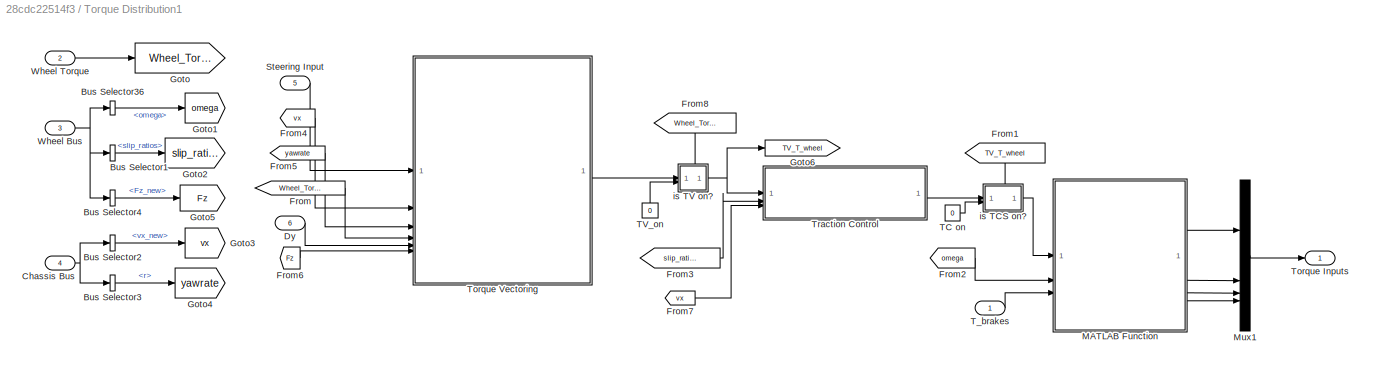
BLOCK [SubSystem] Torque Distribution1
  ShowPortLabels = none
BLOCK [BusSelector] Torque Distribution1/Bus Selector1
  OutputSignals = slip_ratios
BLOCK [BusSelector] Torque Distribution1/Bus Selector2
  OutputSignals = vx_new
BLOCK [BusSelector] Torque Distribution1/Bus Selector3
  OutputSignals = r
BLOCK [BusSelector] Torque Distribution1/Bus Selector36
  OutputSignals = omega
BLOCK [BusSelector] Torque Distribution1/Bus Selector4
  OutputSignals = Fz_new
BLOCK [Inport] Torque Distribution1/Chassis Bus
  NameLocation = left
  Port = 4
BLOCK [Inport] Torque Distribution1/Dy
  NameLocation = left
  Port = 6
BLOCK [From] Torque Distribution1/From
  GotoTag = Wheel_Torques
BLOCK [From] Torque Distribution1/From1
  GotoTag = TV_T_wheel
  NameLocation = right
BLOCK [From] Torque Distribution1/From2
  GotoTag = omega
BLOCK [From] Torque Distribution1/From3
  GotoTag = slip_ratios
BLOCK [From] Torque Distribution1/From4
  GotoTag = vx
BLOCK [From] Torque Distribution1/From5
  GotoTag = yawrate
BLOCK [From] Torque Distribution1/From6
  GotoTag = Fz
BLOCK [From] Torque Distribution1/From7
  GotoTag = vx
BLOCK [From] Torque Distribution1/From8
  GotoTag = Wheel_Torques
  NameLocation = right
BLOCK [Goto] Torque Distribution1/Goto
  GotoTag = Wheel_Torques
BLOCK [Goto] Torque Distribution1/Goto1
  GotoTag = omega
BLOCK [Goto] Torque Distribution1/Goto2
  GotoTag = slip_ratios
BLOCK [Goto] Torque Distribution1/Goto3
  GotoTag = vx
BLOCK [Goto] Torque Distribution1/Goto4
  GotoTag = yawrate
BLOCK [Goto] Torque Distribution1/Goto5
  GotoTag = Fz
BLOCK [Goto] Torque Distribution1/Goto6
  GotoTag = TV_T_wheel
BLOCK [SubSystem] Torque Distribution1/MATLAB Function
  ErrorFcn = Stateflow.Translate.translate
  PermitHierarchicalResolution = ExplicitOnly
  SFBlockType = MATLAB Function
  TreatAsAtomicUnit = on
BLOCK [Demux] Torque Distribution1/MATLAB Function/ Demux 
  Outputs = 1
BLOCK [S-Function] Torque Distribution1/MATLAB Function/ SFunction 
  EnableBusSupport = off
  FunctionName = sf_sfun
  PortCounts = [3 5]
  SFcnIsStateOwnerBlock = off
  SFunctionDeploymentMode = off
  Tag = Stateflow S-Function 12
BLOCK [Terminator] Torque Distribution1/MATLAB Function/ Terminator 
BLOCK [Outport] Torque Distribution1/MATLAB Function/T_FL
BLOCK [Outport] Torque Distribution1/MATLAB Function/T_FR
  Port = 2
BLOCK [Outport] Torque Distribution1/MATLAB Function/T_RL
  Port = 3
BLOCK [Outport] Torque Distribution1/MATLAB Function/T_RR
  Port = 4
BLOCK [Inport] Torque Distribution1/MATLAB Function/T_brake_vec
  Port = 3
BLOCK [Inport] Torque Distribution1/MATLAB Function/T_wheel
BLOCK [Inport] Torque Distribution1/MATLAB Function/omega
  Port = 2
BLOCK [Mux] Torque Distribution1/Mux1
  DisplayOption = bar
BLOCK [Inport] Torque Distribution1/Steering Input
  NameLocation = top
  Port = 5
BLOCK [Constant] Torque Distribution1/TC on
  Value = 0
BLOCK [Constant] Torque Distribution1/TV_on
  Value = 0
BLOCK [Inport] Torque Distribution1/T_brakes
BLOCK [Outport] Torque Distribution1/Torque Inputs
BLOCK [SubSystem] Torque Distribution1/Torque Vectoring
BLOCK [Lookup_n-D] Torque Distribution1/Torque Vectoring/1-D Lookup Table1
  BreakpointsForDimension1 = vx_breakpoints
  Commented = on
  InputPortMap = u0
  InternalRulePriority = Speed
  NumberOfTableDimensions = 1
  RndMeth = Simplest
  Table = Kp_data
BLOCK [Lookup_n-D] Torque Distribution1/Torque Vectoring/1-D Lookup Table2
  BreakpointsForDimension1 = vx_breakpoints
  Commented = on
  InputPortMap = u0
  InternalRulePriority = Speed
  NumberOfTableDimensions = 1
  RndMeth = Simplest
  Table = Ki_data
BLOCK [Constant] Torque Distribution1/Torque Vectoring/Constant
  Value = 0
BLOCK [Constant] Torque Distribution1/Torque Vectoring/Constant1
  Value = 0
BLOCK [Demux] Torque Distribution1/Torque Vectoring/Demux
  Commented = on
BLOCK [Product] Torque Distribution1/Torque Vectoring/Divide
  Commented = on
  Inputs = */
BLOCK [Inport] Torque Distribution1/Torque Vectoring/Dy
  NameLocation = left
  Port = 5
BLOCK [Inport] Torque Distribution1/Torque Vectoring/Fz
  NameLocation = left
  Port = 6
BLOCK [SubSystem] Torque Distribution1/Torque Vectoring/MATLAB Function
  ErrorFcn = Stateflow.Translate.translate
  PermitHierarchicalResolution = ExplicitOnly
  SFBlockType = MATLAB Function
  TreatAsAtomicUnit = on
BLOCK [Demux] Torque Distribution1/Torque Vectoring/MATLAB Function/ Demux 
  Outputs = 1
BLOCK [S-Function] Torque Distribution1/Torque Vectoring/MATLAB Function/ SFunction 
  EnableBusSupport = off
  FunctionName = sf_sfun
  Parameters = Motor,Par
  PortCounts = [2 2]
  SFcnIsStateOwnerBlock = off
  SFunctionDeploymentMode = off
  Tag = Stateflow S-Function 13
BLOCK [Terminator] Torque Distribution1/Torque Vectoring/MATLAB Function/ Terminator 
BLOCK [Outport] Torque Distribution1/Torque Vectoring/MATLAB Function/vectored_torques
BLOCK [Inport] Torque Distribution1/Torque Vectoring/MATLAB Function/wheel_torques
BLOCK [Inport] Torque Distribution1/Torque Vectoring/MATLAB Function/yaw_moment
  Port = 2
BLOCK [SubSystem] Torque Distribution1/Torque Vectoring/PID controller in time domain
  ErrorFcn = Stateflow.Translate.translate
  PermitHierarchicalResolution = ExplicitOnly
  SFBlockType = MATLAB Function
  SystemSampleTime = 0.001
  TreatAsAtomicUnit = on
BLOCK [Demux] Torque Distribution1/Torque Vectoring/PID controller in time domain/ Demux 
  Outputs = 1
BLOCK [S-Function] Torque Distribution1/Torque Vectoring/PID controller in time domain/ SFunction 
  EnableBusSupport = off
  FunctionName = sf_sfun
  Parameters = Motor,Par
  PortCounts = [4 4]
  SFcnIsStateOwnerBlock = off
  SFunctionDeploymentMode = off
  Tag = Stateflow S-Function 14
BLOCK [Terminator] Torque Distribution1/Torque Vectoring/PID controller in time domain/ Terminator 
BLOCK [Inport] Torque Distribution1/Torque Vectoring/PID controller in time domain/Ki
  Port = 4
BLOCK [Inport] Torque Distribution1/Torque Vectoring/PID controller in time domain/Kp
  Port = 3
BLOCK [Outport] Torque Distribution1/Torque Vectoring/PID controller in time domain/error
  Port = 3
BLOCK [Inport] Torque Distribution1/Torque Vectoring/PID controller in time domain/ref
BLOCK [Outport] Torque Distribution1/Torque Vectoring/PID controller in time domain/u_unsat
  Port = 2
BLOCK [Inport] Torque Distribution1/Torque Vectoring/PID controller in time domain/y
  Port = 2
BLOCK [Outport] Torque Distribution1/Torque Vectoring/PID controller in time domain/yaw_moment
BLOCK [Scope] Torque Distribution1/Torque Vectoring/Scope
  ActiveDisplayYMaximum = 1
  ActiveDisplayYMinimum = -1
  Commented = on
  DataLoggingVariableName = ScopeData6
  Floating = off
  LayoutDimensionsString = [2 2]
  NumInputPorts = 4
  WasSavedAsWebScope = on
  WindowPosition = [1 1 1536 841]
BLOCK [SubSystem] Torque Distribution1/Torque Vectoring/Target yaw rate
  NameLocation = top
BLOCK [Inport] Torque Distribution1/Torque Vectoring/Target yaw rate/Dy
  Port = 3
BLOCK [Inport] Torque Distribution1/Torque Vectoring/Target yaw rate/Fz_4x1
  Port = 2
BLOCK [SubSystem] Torque Distribution1/Torque Vectoring/Target yaw rate/MATLAB Function
  ErrorFcn = Stateflow.Translate.translate
  PermitHierarchicalResolution = ExplicitOnly
  SFBlockType = MATLAB Function
  TreatAsAtomicUnit = on
BLOCK [Demux] Torque Distribution1/Torque Vectoring/Target yaw rate/MATLAB Function/ Demux 
  Outputs = 1
BLOCK [S-Function] Torque Distribution1/Torque Vectoring/Target yaw rate/MATLAB Function/ SFunction 
  EnableBusSupport = off
  FunctionName = sf_sfun
  Parameters = Par
  PortCounts = [4 3]
  SFcnIsStateOwnerBlock = off
  SFunctionDeploymentMode = off
  Tag = Stateflow S-Function 15
BLOCK [Terminator] Torque Distribution1/Torque Vectoring/Target yaw rate/MATLAB Function/ Terminator 
BLOCK [Inport] Torque Distribution1/Torque Vectoring/Target yaw rate/MATLAB Function/Dy
  Port = 3
BLOCK [Inport] Torque Distribution1/Torque Vectoring/Target yaw rate/MATLAB Function/Fz
  Port = 4
BLOCK [Inport] Torque Distribution1/Torque Vectoring/Target yaw rate/MATLAB Function/delta
  Port = 2
BLOCK [Outport] Torque Distribution1/Torque Vectoring/Target yaw rate/MATLAB Function/ideal_yaw
  Port = 2
BLOCK [Outport] Torque Distribution1/Torque Vectoring/Target yaw rate/MATLAB Function/target_yaw
BLOCK [Inport] Torque Distribution1/Torque Vectoring/Target yaw rate/MATLAB Function/vx
BLOCK [Outport] Torque Distribution1/Torque Vectoring/Target yaw rate/ideal_yaw
  Port = 2
BLOCK [Inport] Torque Distribution1/Torque Vectoring/Target yaw rate/steering angle
BLOCK [Outport] Torque Distribution1/Torque Vectoring/Target yaw rate/target yaw rate
BLOCK [Inport] Torque Distribution1/Torque Vectoring/Target yaw rate/vx
  Port = 4
BLOCK [Terminator] Torque Distribution1/Torque Vectoring/Terminator
BLOCK [Terminator] Torque Distribution1/Torque Vectoring/Terminator1
BLOCK [Outport] Torque Distribution1/Torque Vectoring/Vectored Torque Commands
BLOCK [Inport] Torque Distribution1/Torque Vectoring/Wheel Torques
  NameLocation = top
  Port = 4
BLOCK [Inport] Torque Distribution1/Torque Vectoring/real yaw rate
  Port = 3
BLOCK [Inport] Torque Distribution1/Torque Vectoring/steering angle
  NameLocation = left
BLOCK [Inport] Torque Distribution1/Torque Vectoring/vx
  NameLocation = left
  Port = 2
BLOCK [SubSystem] Torque Distribution1/Traction Control
BLOCK [Constant] Torque Distribution1/Traction Control/Constant3
  Value = 0.07
BLOCK [Gain] Torque Distribution1/Traction Control/Gain
  Commented = on
  Gain = 100
BLOCK [Gain] Torque Distribution1/Traction Control/Gain1
  Commented = on
  Gain = 100
BLOCK [Gain] Torque Distribution1/Traction Control/Gain2
  Commented = on
  Gain = 100
BLOCK [Gain] Torque Distribution1/Traction Control/Gain3
  Gain = Motor.T_peak_limit * Motor.gear_ratio
BLOCK [Lookup_n-D] Torque Distribution1/Traction Control/KD
  BreakpointsForDimension1 = [0, 55e-10, 0.0045, 2, 8.5,9,100]
  Commented = on
  InputPortMap = u0
  InternalRulePriority = Speed
  NumberOfTableDimensions = 1
  RndMeth = Simplest
  Table = [0, 0, 0.0014, 0.0109,0,0,0]
BLOCK [Lookup_n-D] Torque Distribution1/Traction Control/KD1
  BreakpointsForDimension1 = [0, 55e-10, 0.0045, 2, 8.5,9]
  InputPortMap = u0
  InternalRulePriority = Speed
  NumberOfTableDimensions = 1
  RndMeth = Simplest
  Table = [0, 0, 0.0014, 0.0109,0,0]
BLOCK [Lookup_n-D] Torque Distribution1/Traction Control/KI
  BreakpointsForDimension1 = [0; 55e-10;0.0045; 2; 8.5;100]
  Commented = on
  InputPortMap = u0
  InternalRulePriority = Speed
  NumberOfTableDimensions = 1
  RndMeth = Simplest
  Table = [0.1; 0.1;700; 500; 450;450 ]
BLOCK [Lookup_n-D] Torque Distribution1/Traction Control/KI1
  BreakpointsForDimension1 = [0; 55e-10;0.0045; 2; 8.5]
  InputPortMap = u0
  InternalRulePriority = Speed
  NumberOfTableDimensions = 1
  RndMeth = Simplest
  Table = [0.1; 0.1;700; 500; 450 ]
BLOCK [Lookup_n-D] Torque Distribution1/Traction Control/KP
  BreakpointsForDimension1 = [0; 55e-10; 0.0045; 2; 8.5;100]
  Commented = on
  InputPortMap = u0
  InternalRulePriority = Speed
  NameLocation = top
  NumberOfTableDimensions = 1
  RndMeth = Simplest
  Table = [ 0.5; 0.5; 2.5; 10; 10;10]
BLOCK [Lookup_n-D] Torque Distribution1/Traction Control/KP1
  BreakpointsForDimension1 = [0; 55e-10; 0.0045; 2; 8.5]
  InputPortMap = u0
  InternalRulePriority = Speed
  NameLocation = top
  NumberOfTableDimensions = 1
  RndMeth = Simplest
  Table = [ 0.5; 0.5; 2.5; 10; 10]
BLOCK [SubSystem] Torque Distribution1/Traction Control/MATLAB Function
  ErrorFcn = Stateflow.Translate.translate
  PermitHierarchicalResolution = ExplicitOnly
  SFBlockType = MATLAB Function
  TreatAsAtomicUnit = on
BLOCK [Demux] Torque Distribution1/Traction Control/MATLAB Function/ Demux 
  Outputs = 1
BLOCK [S-Function] Torque Distribution1/Traction Control/MATLAB Function/ SFunction 
  EnableBusSupport = off
  FunctionName = sf_sfun
  PortCounts = [1 2]
  SFcnIsStateOwnerBlock = off
  SFunctionDeploymentMode = off
  Tag = Stateflow S-Function 18
BLOCK [Terminator] Torque Distribution1/Traction Control/MATLAB Function/ Terminator 
BLOCK [Inport] Torque Distribution1/Traction Control/MATLAB Function/u
BLOCK [Outport] Torque Distribution1/Traction Control/MATLAB Function/y
BLOCK [SubSystem] Torque Distribution1/Traction Control/MATLAB Function1
  ErrorFcn = Stateflow.Translate.translate
  PermitHierarchicalResolution = ExplicitOnly
  SFBlockType = MATLAB Function
  SystemSampleTime = 0.001
  TreatAsAtomicUnit = on
BLOCK [Demux] Torque Distribution1/Traction Control/MATLAB Function1/ Demux 
  Outputs = 1
BLOCK [S-Function] Torque Distribution1/Traction Control/MATLAB Function1/ SFunction 
  EnableBusSupport = off
  FunctionName = sf_sfun
  PortCounts = [5 2]
  SFcnIsStateOwnerBlock = off
  SFunctionDeploymentMode = off
  Tag = Stateflow S-Function 17
BLOCK [Terminator] Torque Distribution1/Traction Control/MATLAB Function1/ Terminator 
BLOCK [Inport] Torque Distribution1/Traction Control/MATLAB Function1/Kd
  Port = 5
BLOCK [Inport] Torque Distribution1/Traction Control/MATLAB Function1/Ki
  Port = 4
BLOCK [Inport] Torque Distribution1/Traction Control/MATLAB Function1/Kp
  Port = 3
BLOCK [Inport] Torque Distribution1/Traction Control/MATLAB Function1/lambda_actual
  Port = 2
BLOCK [Inport] Torque Distribution1/Traction Control/MATLAB Function1/lambda_ref
BLOCK [Outport] Torque Distribution1/Traction Control/MATLAB Function1/throttle_cmd
BLOCK [SubSystem] Torque Distribution1/Traction Control/MATLAB Function2
  ErrorFcn = Stateflow.Translate.translate
  PermitHierarchicalResolution = ExplicitOnly
  SFBlockType = MATLAB Function
  TreatAsAtomicUnit = on
BLOCK [Demux] Torque Distribution1/Traction Control/MATLAB Function2/ Demux 
  Outputs = 1
BLOCK [S-Function] Torque Distribution1/Traction Control/MATLAB Function2/ SFunction 
  EnableBusSupport = off
  FunctionName = sf_sfun
  PortCounts = [2 2]
  SFcnIsStateOwnerBlock = off
  SFunctionDeploymentMode = off
  Tag = Stateflow S-Function 25
BLOCK [Terminator] Torque Distribution1/Traction Control/MATLAB Function2/ Terminator 
BLOCK [Outport] Torque Distribution1/Traction Control/MATLAB Function2/TC_output
BLOCK [Inport] Torque Distribution1/Traction Control/MATLAB Function2/torque_pid
BLOCK [Inport] Torque Distribution1/Traction Control/MATLAB Function2/torque_wheel
  Port = 2
BLOCK [Scope] Torque Distribution1/Traction Control/Scope
  ActiveDisplayYMaximum = 1
  ActiveDisplayYMinimum = -1
  Commented = on
  DataLoggingVariableName = ScopeData5
  Floating = off
  GraphicalSettings = {"Style":{"BackgroundColor":[0.12941176470588237,0.12941176470588237,0.12941176470588237],"AxesColor":[0.07058823529411765,0.07058823529411765,0.07058823529411765],"LabelsColor":[0.8509803921568627,0.8509803921568627,0.8509803921568627],"PreserveColors":false,"Visible":[true,true,true,true],"LineStyle":["-","-","-","-"],"LineWidth":[1.5,1.5,1.5,1.5],"BarWidth":[0.9,0.9,0.9,0.9],"LineColor":["auto"...<+2359ch>
  MultipleDisplayCache = [{"MaxYLimMag":1,"MaxYLimReal":1,"MinYLimMag":0,"MinYLimReal":-1,"PlotAsMagnitudePhase":false,"ShowGrid":true,"ShowLegend":false,"Title":"%<SignalLabel>","YLabel":""}]
  NumInputPorts = 1
  ScopeFrameLocation = window
  WasSavedAsWebScope = on
  WindowPosition = [1.000000,1.000000,1536.000000,841.000000,]
BLOCK [Scope] Torque Distribution1/Traction Control/Scope1
  ActiveDisplayYMaximum = 1
  ActiveDisplayYMinimum = -1
  DataLoggingVariableName = ScopeData12
  Floating = off
  GraphicalSettings = {"Style":{"BackgroundColor":[0.12941176470588237,0.12941176470588237,0.12941176470588237],"AxesColor":[0.07058823529411765,0.07058823529411765,0.07058823529411765],"LabelsColor":[0.8509803921568627,0.8509803921568627,0.8509803921568627],"PreserveColors":false,"Visible":[true,true,true,true],"LineStyle":["-","-","-","-"],"LineWidth":[1.5,1.5,1.5,1.5],"BarWidth":[0.9,0.9,0.9,0.9],"LineColor":["auto"...<+2327ch>
  MultipleDisplayCache = [{"MaxYLimMag":1,"MaxYLimReal":1,"MinYLimMag":0,"MinYLimReal":-1,"PlotAsMagnitudePhase":false,"ShowGrid":true,"ShowLegend":false,"Title":"%<SignalLabel>","YLabel":""}]
  NumInputPorts = 1
  ScopeFrameLocation = window
  WasSavedAsWebScope = on
  WindowPosition = [1.000000,1.000000,1536.000000,841.000000,]
BLOCK [Inport] Torque Distribution1/Traction Control/Slip Ratios
  Port = 2
BLOCK [Sum] Torque Distribution1/Traction Control/Subtract
  Commented = on
  IconShape = rectangular
BLOCK [Constant] Torque Distribution1/Traction Control/Target Slip ratio
  Commented = on
  Value = TC_target_slip
BLOCK [Outport] Torque Distribution1/Traction Control/Traction Controlled Torque
BLOCK [SubSystem] Torque Distribution1/Traction Control/Traction Controller
  Commented = on
  ErrorFcn = Stateflow.Translate.translate
  PermitHierarchicalResolution = ExplicitOnly
  SFBlockType = MATLAB Function
  TreatAsAtomicUnit = on
BLOCK [Demux] Torque Distribution1/Traction Control/Traction Controller/ Demux 
  Outputs = 1
BLOCK [S-Function] Torque Distribution1/Traction Control/Traction Controller/ SFunction 
  EnableBusSupport = off
  FunctionName = sf_sfun
  Parameters = Motor
  PortCounts = [5 2]
  SFcnIsStateOwnerBlock = off
  SFunctionDeploymentMode = off
  Tag = Stateflow S-Function 39
BLOCK [Terminator] Torque Distribution1/Traction Control/Traction Controller/ Terminator 
BLOCK [Inport] Torque Distribution1/Traction Control/Traction Controller/TC_kd
  Port = 5
BLOCK [Inport] Torque Distribution1/Traction Control/Traction Controller/TC_ki
  Port = 4
BLOCK [Inport] Torque Distribution1/Traction Control/Traction Controller/TC_kp
  Port = 3
BLOCK [Inport] Torque Distribution1/Traction Control/Traction Controller/slip_ratios
  Port = 2
BLOCK [Inport] Torque Distribution1/Traction Control/Traction Controller/target_slip
BLOCK [Outport] Torque Distribution1/Traction Control/Traction Controller/traction_output
BLOCK [Inport] Torque Distribution1/Traction Control/Wheel Torque
  NameLocation = top
BLOCK [Inport] Torque Distribution1/Traction Control/vx
  Port = 3
BLOCK [Inport] Torque Distribution1/Wheel Bus
  NameLocation = left
  Port = 3
BLOCK [Inport] Torque Distribution1/Wheel Torque
  NameLocation = left
  Port = 2
BLOCK [SubSystem] Torque Distribution1/is TCS on?
  PortSchema = {"entries":[{"content":{"sides":[{"content":{"connectorIds":["In1","In2"]},"type":"ConnectorPlacement.EquallySpacedRectSide","uuid":"dc8df3c8-a53f-4de0-9df1-c7ce6985ad6f"},{"content":{"connectorIds":["Out1"],"side":"RIGHT"},"type":"ConnectorPlacement.EquallySpacedRectSide","uuid":"042501be-c855-4a6a-885a-a96d559db999"},{"content":{"connectorIds":["In3"],"side":"TOP"},"type":"ConnectorPlacement.Equ...<+251ch>
  ShowPortLabels = none
BLOCK [Inport] Torque Distribution1/is TCS on?/In1
  Port = 2
BLOCK [Switch] Torque Distribution1/is TCS on?/Switch
  Criteria = u2 > Threshold
  InputSameDT = off
  SaturateOnIntegerOverflow = off
BLOCK [Inport] Torque Distribution1/is TCS on?/TV_T_wheel
  Port = 3
BLOCK [Outport] Torque Distribution1/is TCS on?/torque_output
BLOCK [Inport] Torque Distribution1/is TCS on?/traction_controlled_torque
  NameLocation = top
BLOCK [SubSystem] Torque Distribution1/is TV on?
  PortSchema = {"entries":[{"content":{"sides":[{"content":{"connectorIds":["In1","In2"]},"type":"ConnectorPlacement.EquallySpacedRectSide","uuid":"dc8df3c8-a53f-4de0-9df1-c7ce6985ad6f"},{"content":{"connectorIds":["Out1"],"side":"RIGHT"},"type":"ConnectorPlacement.EquallySpacedRectSide","uuid":"042501be-c855-4a6a-885a-a96d559db999"},{"content":{"connectorIds":["In3"],"side":"TOP"},"type":"ConnectorPlacement.Equ...<+377ch>
  ShowPortLabels = none
BLOCK [Inport] Torque Distribution1/is TV on?/In1
  Port = 2
BLOCK [Switch] Torque Distribution1/is TV on?/Switch
  Criteria = u2 > Threshold
  InputSameDT = off
  SaturateOnIntegerOverflow = off
BLOCK [Outport] Torque Distribution1/is TV on?/torque_output
BLOCK [Inport] Torque Distribution1/is TV on?/vectored_torque
  NameLocation = top
BLOCK [Inport] Torque Distribution1/is TV on?/wheel_torque
  Port = 3
BLOCK [SubSystem] Visualise slip_angles
  Commented = on
  ShowPortLabels = none
BLOCK [SubSystem] Visualise slip_angles/MATLAB Function
  ErrorFcn = Stateflow.Translate.translate
  PermitHierarchicalResolution = ExplicitOnly
  SFBlockType = MATLAB Function
  TreatAsAtomicUnit = on
BLOCK [Demux] Visualise slip_angles/MATLAB Function/ Demux 
  Outputs = 1
BLOCK [S-Function] Visualise slip_angles/MATLAB Function/ SFunction 
  EnableBusSupport = off
  FunctionName = sf_sfun
  PortCounts = [1 5]
  SFcnIsStateOwnerBlock = off
  SFunctionDeploymentMode = off
  Tag = Stateflow S-Function 28
BLOCK [Terminator] Visualise slip_angles/MATLAB Function/ Terminator 
BLOCK [Outport] Visualise slip_angles/MATLAB Function/alpha_fl
BLOCK [Outport] Visualise slip_angles/MATLAB Function/alpha_fr
  Port = 2
BLOCK [Outport] Visualise slip_angles/MATLAB Function/alpha_rl
  Port = 3
BLOCK [Outport] Visualise slip_angles/MATLAB Function/alpha_rr
  Port = 4
BLOCK [Inport] Visualise slip_angles/MATLAB Function/slip_angles
BLOCK [ToWorkspace] Visualise slip_angles/To Workspace
  FixptAsFi = on
  MaxDataPoints = inf
  SampleTime = -1
  SaveFormat = Timeseries
  VariableName = slip_angle_fl
BLOCK [ToWorkspace] Visualise slip_angles/To Workspace1
  FixptAsFi = on
  MaxDataPoints = inf
  SampleTime = -1
  SaveFormat = Timeseries
  VariableName = slip_angle_fr
BLOCK [ToWorkspace] Visualise slip_angles/To Workspace2
  FixptAsFi = on
  MaxDataPoints = inf
  SampleTime = -1
  SaveFormat = Timeseries
  VariableName = slip_angle_rl
BLOCK [ToWorkspace] Visualise slip_angles/To Workspace3
  FixptAsFi = on
  MaxDataPoints = inf
  SampleTime = -1
  SaveFormat = Timeseries
  VariableName = slip_angle_rr
BLOCK [Scope] Visualise slip_angles/Visualise slip_angle
  ActiveDisplayYMaximum = 1
  ActiveDisplayYMinimum = -1
  DataLoggingVariableName = ScopeData3
  Floating = off
  LayoutDimensionsString = [2 2]
  NumInputPorts = 4
  WasSavedAsWebScope = on
  WindowPosition = [0 12 1536 841]
BLOCK [Inport] Visualise slip_angles/slip_angles
BLOCK [SubSystem] Visualise slip_ratios
  Commented = on
  ShowPortLabels = none
BLOCK [SubSystem] Visualise slip_ratios/MATLAB Function
  ErrorFcn = Stateflow.Translate.translate
  PermitHierarchicalResolution = ExplicitOnly
  SFBlockType = MATLAB Function
  TreatAsAtomicUnit = on
BLOCK [Demux] Visualise slip_ratios/MATLAB Function/ Demux 
  Outputs = 1
BLOCK [S-Function] Visualise slip_ratios/MATLAB Function/ SFunction 
  EnableBusSupport = off
  FunctionName = sf_sfun
  PortCounts = [1 5]
  SFcnIsStateOwnerBlock = off
  SFunctionDeploymentMode = off
  Tag = Stateflow S-Function 27
BLOCK [Terminator] Visualise slip_ratios/MATLAB Function/ Terminator 
BLOCK [Outport] Visualise slip_ratios/MATLAB Function/SR_fl
BLOCK [Outport] Visualise slip_ratios/MATLAB Function/SR_fr
  Port = 2
BLOCK [Outport] Visualise slip_ratios/MATLAB Function/SR_rl
  Port = 3
BLOCK [Outport] Visualise slip_ratios/MATLAB Function/SR_rr
  Port = 4
BLOCK [Inport] Visualise slip_ratios/MATLAB Function/slip_ratio
BLOCK [ToWorkspace] Visualise slip_ratios/To Workspace
  FixptAsFi = on
  MaxDataPoints = inf
  SampleTime = -1
  SaveFormat = Timeseries
  VariableName = slip_ratio_fl
BLOCK [ToWorkspace] Visualise slip_ratios/To Workspace1
  FixptAsFi = on
  MaxDataPoints = inf
  SampleTime = -1
  SaveFormat = Timeseries
  VariableName = slip_ratio_fr
BLOCK [ToWorkspace] Visualise slip_ratios/To Workspace2
  FixptAsFi = on
  MaxDataPoints = inf
  SampleTime = -1
  SaveFormat = Timeseries
  VariableName = slip_ratio_rl
BLOCK [ToWorkspace] Visualise slip_ratios/To Workspace3
  FixptAsFi = on
  MaxDataPoints = inf
  SampleTime = -1
  SaveFormat = Timeseries
  VariableName = slip_ratio_rr
BLOCK [Scope] Visualise slip_ratios/Visualise slip_ratio
  ActiveDisplayYMaximum = -0.0025424073705559666
  ActiveDisplayYMinimum = -0.0042686362260250313
  DataLoggingVariableName = ScopeData3
  Floating = off
  GraphicalSettings = {"Style":{"BackgroundColor":[0.12156862745098039,0.12156862745098039,0.12156862745098039],"AxesColor":[0.06666666666666667,0.06666666666666667,0.06666666666666667],"LabelsColor":[0.8509803921568627,0.8509803921568627,0.8509803921568627],"PreserveColors":false,"Visible":[true,true,true,true],"LineStyle":["-","-","-","-"],"LineWidth":[1.5,1.5,1.5,1.5],"BarWidth":[0.9,0.9,0.9,0.9],"LineColor":[[1,0.9...<+3753ch>
  LayoutDimensionsString = [2 2]
  MultipleDisplayCache = [{"MaxYLimMag":0.0042686362260250313,"MaxYLimReal":-0.0025424073705559666,"MinYLimMag":0,"MinYLimReal":-0.0042686362260250313,"PlotAsMagnitudePhase":false,"ShowGrid":true,"ShowLegend":false,"Title":"%<SignalLabel>","YLabel":""},{"MaxYLimMag":0.0042686362260250313,"MaxYLimReal":-0.0025424073705559666,"MinYLimMag":0,"MinYLimReal":-0.0042686362260250313,"PlotAsMagnitudePhase":false,"ShowGrid":true,"S...<+537ch>
  NumInputPorts = 4
  ScopeFrameLocation = window
  WasSavedAsWebScope = on
  WindowPosition = [8.000000,20.000000,1520.000000,825.000000,]
BLOCK [Inport] Visualise slip_ratios/slip_ratio
BLOCK [SubSystem] Visualise_Fx_tire
  ShowPortLabels = none
BLOCK [Inport] Visualise_Fx_tire/Fx_tire
BLOCK [SubSystem] Visualise_Fx_tire/MATLAB Function
  ErrorFcn = Stateflow.Translate.translate
  PermitHierarchicalResolution = ExplicitOnly
  SFBlockType = MATLAB Function
  TreatAsAtomicUnit = on
BLOCK [Demux] Visualise_Fx_tire/MATLAB Function/ Demux 
  Outputs = 1
BLOCK [S-Function] Visualise_Fx_tire/MATLAB Function/ SFunction 
  EnableBusSupport = off
  FunctionName = sf_sfun
  PortCounts = [1 5]
  SFcnIsStateOwnerBlock = off
  SFunctionDeploymentMode = off
  Tag = Stateflow S-Function 29
BLOCK [Terminator] Visualise_Fx_tire/MATLAB Function/ Terminator 
BLOCK [Outport] Visualise_Fx_tire/MATLAB Function/Fx_fl
BLOCK [Outport] Visualise_Fx_tire/MATLAB Function/Fx_fr
  Port = 2
BLOCK [Outport] Visualise_Fx_tire/MATLAB Function/Fx_rl
  Port = 3
BLOCK [Outport] Visualise_Fx_tire/MATLAB Function/Fx_rr
  Port = 4
BLOCK [Inport] Visualise_Fx_tire/MATLAB Function/Fx_tire
BLOCK [ToWorkspace] Visualise_Fx_tire/To Workspace
  FixptAsFi = on
  MaxDataPoints = inf
  SampleTime = -1
  SaveFormat = Timeseries
  VariableName = Fx_fl
BLOCK [ToWorkspace] Visualise_Fx_tire/To Workspace1
  FixptAsFi = on
  MaxDataPoints = inf
  SampleTime = -1
  SaveFormat = Timeseries
  VariableName = Fx_fr
BLOCK [ToWorkspace] Visualise_Fx_tire/To Workspace2
  FixptAsFi = on
  MaxDataPoints = inf
  SampleTime = -1
  SaveFormat = Timeseries
  VariableName = Fx_rl
BLOCK [ToWorkspace] Visualise_Fx_tire/To Workspace3
  FixptAsFi = on
  MaxDataPoints = inf
  SampleTime = -1
  SaveFormat = Timeseries
  VariableName = Fx_rr
BLOCK [Scope] Visualise_Fx_tire/Visualise Fx tire
  ActiveDisplayYMaximum = 17.4645
  ActiveDisplayYMinimum = -157.0903
  DataLoggingVariableName = ScopeData4
  Floating = off
  GraphicalSettings = {"GraphicalSettings":{"LegacySettings":true,"Style":{"AxesScalingProperties":{"AlignXAxis":"Center","AlignYAxis":"Center","AutoScaleXAxisLimits":false,"AxesScaling":"Manual","AxesScalingNumUpdates":10,"ScaleAxesLimitsAtStop":false,"XAxisDataRange":100,"YAxisDataRange":80},"Cursors":{"CursorChannels":"[1 1]","Enabled":"true","Horizontal":"true","LinkToWaveform":"true","LockSpacing":"false","SnapToD...<+1393ch>
  LayoutDimensionsString = [2 2]
  MultipleDisplayCache = [{"MaxYLimMag":157.0903,"MaxYLimReal":17.4645,"MinYLimMag":0,"MinYLimReal":-157.0903,"PlotAsMagnitudePhase":false,"ShowGrid":true,"ShowLegend":false,"Title":"%<SignalLabel>","YLabel":""},{"MaxYLimMag":157.0923,"MaxYLimReal":17.4648,"MinYLimMag":0,"MinYLimReal":-157.0923,"PlotAsMagnitudePhase":false,"ShowGrid":true,"ShowLegend":false,"Title":"%<SignalLabel>","YLabel":""},{"MaxYLimMag":1101.766,"Max...<+349ch>
  NumInputPorts = 4
  WasSavedAsWebScope = on
  WindowPosition = [1 1 1536 841]
BLOCK [SubSystem] Visualise_Fx_tire1
  ShowPortLabels = none
BLOCK [Inport] Visualise_Fx_tire1/Fz_tire
BLOCK [SubSystem] Visualise_Fx_tire1/MATLAB Function
  ErrorFcn = Stateflow.Translate.translate
  PermitHierarchicalResolution = ExplicitOnly
  SFBlockType = MATLAB Function
  TreatAsAtomicUnit = on
BLOCK [Demux] Visualise_Fx_tire1/MATLAB Function/ Demux 
  Outputs = 1
BLOCK [S-Function] Visualise_Fx_tire1/MATLAB Function/ SFunction 
  EnableBusSupport = off
  FunctionName = sf_sfun
  PortCounts = [1 5]
  SFcnIsStateOwnerBlock = off
  SFunctionDeploymentMode = off
  Tag = Stateflow S-Function 31
BLOCK [Terminator] Visualise_Fx_tire1/MATLAB Function/ Terminator 
BLOCK [Outport] Visualise_Fx_tire1/MATLAB Function/Fz_fl
BLOCK [Outport] Visualise_Fx_tire1/MATLAB Function/Fz_fr
  Port = 2
BLOCK [Outport] Visualise_Fx_tire1/MATLAB Function/Fz_rl
  Port = 3
BLOCK [Outport] Visualise_Fx_tire1/MATLAB Function/Fz_rr
  Port = 4
BLOCK [Inport] Visualise_Fx_tire1/MATLAB Function/Fz_tire
BLOCK [ToWorkspace] Visualise_Fx_tire1/To Workspace
  FixptAsFi = on
  MaxDataPoints = inf
  SampleTime = -1
  SaveFormat = Timeseries
  VariableName = Fz_fl
BLOCK [ToWorkspace] Visualise_Fx_tire1/To Workspace1
  FixptAsFi = on
  MaxDataPoints = inf
  SampleTime = -1
  SaveFormat = Timeseries
  VariableName = Fz_fr
BLOCK [ToWorkspace] Visualise_Fx_tire1/To Workspace2
  FixptAsFi = on
  MaxDataPoints = inf
  SampleTime = -1
  SaveFormat = Timeseries
  VariableName = Fz_rl
BLOCK [ToWorkspace] Visualise_Fx_tire1/To Workspace3
  FixptAsFi = on
  MaxDataPoints = inf
  SampleTime = -1
  SaveFormat = Timeseries
  VariableName = Fz_rr
BLOCK [Scope] Visualise_Fx_tire1/Visualise Fz tire
  Commented = on
  Floating = off
  GraphicalSettings = {"GraphicalSettings":{"LegacySettings":true,"Style":{"Style":{"PlotType":"Auto"}}}}
  NumInputPorts = 4
  WasSavedAsWebScope = on
BLOCK [SubSystem] Visualise_Fy_B
  Commented = on
  ShowPortLabels = none
BLOCK [Inport] Visualise_Fy_B/Fy_B
BLOCK [SubSystem] Visualise_Fy_B/MATLAB Function
  ErrorFcn = Stateflow.Translate.translate
  PermitHierarchicalResolution = ExplicitOnly
  SFBlockType = MATLAB Function
  TreatAsAtomicUnit = on
BLOCK [Demux] Visualise_Fy_B/MATLAB Function/ Demux 
  Outputs = 1
BLOCK [S-Function] Visualise_Fy_B/MATLAB Function/ SFunction 
  EnableBusSupport = off
  FunctionName = sf_sfun
  PortCounts = [1 5]
  SFcnIsStateOwnerBlock = off
  SFunctionDeploymentMode = off
  Tag = Stateflow S-Function 37
BLOCK [Terminator] Visualise_Fy_B/MATLAB Function/ Terminator 
BLOCK [Outport] Visualise_Fy_B/MATLAB Function/Fy_B_fl
BLOCK [Outport] Visualise_Fy_B/MATLAB Function/Fy_B_fr
  Port = 2
BLOCK [Outport] Visualise_Fy_B/MATLAB Function/Fy_B_rl
  Port = 3
BLOCK [Outport] Visualise_Fy_B/MATLAB Function/Fy_B_rr
  Port = 4
BLOCK [Inport] Visualise_Fy_B/MATLAB Function/Fy_tire
BLOCK [Scope] Visualise_Fy_B/Visualise Fy_B
  Commented = on
  Floating = off
  GraphicalSettings = {"GraphicalSettings":{"LegacySettings":true,"Style":{"Style":{"PlotType":"Auto"}}}}
  NumInputPorts = 4
  WasSavedAsWebScope = on
BLOCK [SubSystem] Visualise_Fy_tire
  ShowPortLabels = none
BLOCK [Inport] Visualise_Fy_tire/Fy_tire
BLOCK [SubSystem] Visualise_Fy_tire/MATLAB Function
  ErrorFcn = Stateflow.Translate.translate
  PermitHierarchicalResolution = ExplicitOnly
  SFBlockType = MATLAB Function
  TreatAsAtomicUnit = on
BLOCK [Demux] Visualise_Fy_tire/MATLAB Function/ Demux 
  Outputs = 1
BLOCK [S-Function] Visualise_Fy_tire/MATLAB Function/ SFunction 
  EnableBusSupport = off
  FunctionName = sf_sfun
  PortCounts = [1 5]
  SFcnIsStateOwnerBlock = off
  SFunctionDeploymentMode = off
  Tag = Stateflow S-Function 30
BLOCK [Terminator] Visualise_Fy_tire/MATLAB Function/ Terminator 
BLOCK [Outport] Visualise_Fy_tire/MATLAB Function/Fy_fl
BLOCK [Outport] Visualise_Fy_tire/MATLAB Function/Fy_fr
  Port = 2
BLOCK [Outport] Visualise_Fy_tire/MATLAB Function/Fy_rl
  Port = 3
BLOCK [Outport] Visualise_Fy_tire/MATLAB Function/Fy_rr
  Port = 4
BLOCK [Inport] Visualise_Fy_tire/MATLAB Function/Fy_tire
BLOCK [ToWorkspace] Visualise_Fy_tire/To Workspace
  FixptAsFi = on
  MaxDataPoints = inf
  SampleTime = -1
  SaveFormat = Timeseries
  VariableName = Fy_fl
BLOCK [ToWorkspace] Visualise_Fy_tire/To Workspace1
  FixptAsFi = on
  MaxDataPoints = inf
  SampleTime = -1
  SaveFormat = Timeseries
  VariableName = Fy_fr
BLOCK [ToWorkspace] Visualise_Fy_tire/To Workspace2
  FixptAsFi = on
  MaxDataPoints = inf
  SampleTime = -1
  SaveFormat = Timeseries
  VariableName = Fy_rl
BLOCK [ToWorkspace] Visualise_Fy_tire/To Workspace3
  FixptAsFi = on
  MaxDataPoints = inf
  SampleTime = -1
  SaveFormat = Timeseries
  VariableName = Fy_rr
BLOCK [Scope] Visualise_Fy_tire/Visualise Fy tire
  ActiveDisplayYMaximum = 1065.6680014876922
  ActiveDisplayYMinimum = -577.98244716833722
  Floating = off
  GraphicalSettings = {"Style":{"BackgroundColor":[0.12941176470588237,0.12941176470588237,0.12941176470588237],"AxesColor":[0.07058823529411765,0.07058823529411765,0.07058823529411765],"LabelsColor":[0.8509803921568627,0.8509803921568627,0.8509803921568627],"PreserveColors":false,"Visible":[true,true,true,true,true,true,true],"LineStyle":["-","-","-","-","-","-","-"],"LineWidth":[1.5,1.5,1.5,1.5,1.5,1.5,1.5],"BarWidth...<+3827ch>
  LayoutDimensionsString = [2,2]
  MultipleDisplayCache = [{"MaxYLimMag":1065.6680014876922,"MaxYLimReal":1065.6680014876922,"MinYLimMag":0,"MinYLimReal":-577.98244716833722,"PlotAsMagnitudePhase":false,"ShowGrid":true,"ShowLegend":false,"Title":"%<SignalLabel>","YLabel":""},{"MaxYLimMag":1058.6006762479085,"MaxYLimReal":1058.6006762479085,"MinYLimMag":0,"MinYLimReal":-564.4005383584124,"PlotAsMagnitudePhase":false,"ShowGrid":true,"ShowLegend":false,"Tit...<+467ch>
  NumInputPorts = 4
  ScopeFrameLocation = window
  WasSavedAsWebScope = on
  WindowPosition = [0.000000,12.000000,1536.000000,841.000000,]
BLOCK [SubSystem] Visualiser
  ShowPortLabels = none
BLOCK [Demux] Visualiser/Demux
BLOCK [Demux] Visualiser/Demux1
BLOCK [Demux] Visualiser/Demux2
BLOCK [Scope] Visualiser/Scope
  Floating = off
  GraphicalSettings = {"GraphicalSettings":{"LegacySettings":true,"Style":{"Style":{"PlotType":"Auto"}}}}
  NumInputPorts = 4
  WasSavedAsWebScope = on
BLOCK [Scope] Visualiser/Scope1
  Floating = off
  GraphicalSettings = {"GraphicalSettings":{"LegacySettings":true,"Style":{"Style":{"PlotType":"Auto"}}}}
  NumInputPorts = 4
  WasSavedAsWebScope = on
BLOCK [Scope] Visualiser/Scope2
  Floating = off
  GraphicalSettings = {"GraphicalSettings":{"LegacySettings":true,"Style":{"Style":{"PlotType":"Auto"}}}}
  NumInputPorts = 4
  WasSavedAsWebScope = on
BLOCK [Inport] Visualiser/mu_x
  Port = 2
BLOCK [Inport] Visualiser/mu_y
  Port = 3
BLOCK [Inport] Visualiser/mz
BLOCK [SubSystem] Wheel Dynamics
  NameLocation = top
  PortSchema = {"entries":[{"content":{"sides":[{"content":{"connectorIds":["In1","In2","In3"]},"type":"ConnectorPlacement.EquallySpacedRectSide","uuid":"f2e918e6-c6f6-4ec9-89f3-e2543a6374fd"},{"content":{"connectorIds":["Out1"],"side":"RIGHT"},"type":"ConnectorPlacement.EquallySpacedRectSide","uuid":"be700f5f-5cf3-4eec-a6f7-872bb7cd40f6"},{"content":{"side":"TOP"},"type":"ConnectorPlacement.EquallySpacedRectSid...<+383ch>
  ShowPortLabels = none
BLOCK [Inport] Wheel Dynamics/Fx
  Port = 2
BLOCK [Inport] Wheel Dynamics/Fx_tire
  Port = 4
BLOCK [Integrator] Wheel Dynamics/Integrator
  InitialCondition = init_vx/Par.R0
  LimitOutput = on
  UpperSaturationLimit = 1e6
BLOCK [SubSystem] Wheel Dynamics/MATLAB Function
  ErrorFcn = Stateflow.Translate.translate
  PermitHierarchicalResolution = ExplicitOnly
  SFBlockType = MATLAB Function
  TreatAsAtomicUnit = on
BLOCK [Demux] Wheel Dynamics/MATLAB Function/ Demux 
  Outputs = 1
BLOCK [S-Function] Wheel Dynamics/MATLAB Function/ SFunction 
  EnableBusSupport = off
  FunctionName = sf_sfun
  Parameters = Par
  PortCounts = [4 2]
  SFcnIsStateOwnerBlock = off
  SFunctionDeploymentMode = off
  Tag = Stateflow S-Function 7
BLOCK [Terminator] Wheel Dynamics/MATLAB Function/ Terminator 
BLOCK [Inport] Wheel Dynamics/MATLAB Function/Fx_rr
  Port = 2
BLOCK [Inport] Wheel Dynamics/MATLAB Function/Fx_tire
  Port = 3
BLOCK [Inport] Wheel Dynamics/MATLAB Function/Omega
  Port = 4
BLOCK [Outport] Wheel Dynamics/MATLAB Function/Omega_dot
BLOCK [Inport] Wheel Dynamics/MATLAB Function/T_in
BLOCK [Inport] Wheel Dynamics/Omega
  Port = 3
BLOCK [Inport] Wheel Dynamics/T_in
BLOCK [Outport] Wheel Dynamics/omega
BLOCK [SubSystem] Wheel to Vehicle Coordinates
  ErrorFcn = Stateflow.Translate.translate
  PermitHierarchicalResolution = ExplicitOnly
  SFBlockType = MATLAB Function
  ShowPortLabels = none
  TreatAsAtomicUnit = on
BLOCK [Demux] Wheel to Vehicle Coordinates/ Demux 
  Outputs = 1
BLOCK [S-Function] Wheel to Vehicle Coordinates/ SFunction 
  EnableBusSupport = off
  FunctionName = sf_sfun
  PortCounts = [4 3]
  SFcnIsStateOwnerBlock = off
  SFunctionDeploymentMode = off
  Tag = Stateflow S-Function 5
BLOCK [Terminator] Wheel to Vehicle Coordinates/ Terminator 
BLOCK [Outport] Wheel to Vehicle Coordinates/Fx_b
BLOCK [Inport] Wheel to Vehicle Coordinates/Fx_w
BLOCK [Outport] Wheel to Vehicle Coordinates/Fy_b
  Port = 2
BLOCK [Inport] Wheel to Vehicle Coordinates/Fy_w
  Port = 2
BLOCK [Inport] Wheel to Vehicle Coordinates/Steer_FL
  Port = 3
BLOCK [Inport] Wheel to Vehicle Coordinates/Steer_FR
  Port = 4
BLOCK [SubSystem] brake_input_simulink
  NameLocation = top
  ShowPortLabels = none
BLOCK [Clock] brake_input_simulink/Clock
BLOCK [Constant] brake_input_simulink/Constant
BLOCK [Constant] brake_input_simulink/Constant1
  Value = 0
BLOCK [Switch] brake_input_simulink/Switch
  Criteria = u2 > Threshold
  InputSameDT = off
  SaturateOnIntegerOverflow = off
  Threshold = 2
BLOCK [Outport] brake_input_simulink/brake_sim
BLOCK [SubSystem] input_select
  ShowPortLabels = none
BLOCK [SubSystem] input_select/Brake Variant Subsystem
  Variant = on
BLOCK [SubSystem] input_select/Brake Variant Subsystem/GGV
  VariantControl = Mode_ggv
BLOCK [Constant] input_select/Brake Variant Subsystem/GGV/Constant
  Value = Brake_Val
BLOCK [Outport] input_select/Brake Variant Subsystem/GGV/brake_input
BLOCK [SubSystem] input_select/Brake Variant Subsystem/Sideslip_vs_curvature_cst_accln
  VariantControl = Mode_sideslip_vs_curvature_cst_accln
BLOCK [Constant] input_select/Brake Variant Subsystem/Sideslip_vs_curvature_cst_accln/Constant
  Value = 10
BLOCK [Constant] input_select/Brake Variant Subsystem/Sideslip_vs_curvature_cst_accln/Constant3
  Value = 0
BLOCK [Reference] input_select/Brake Variant Subsystem/Sideslip_vs_curvature_cst_accln/Longitudinal Driver  REF=autolibshared/Longitudinal Driver
  SourceBlock = autolibshared/Longitudinal Driver
  SourceType = Longitudinal Driver
BLOCK [Terminator] input_select/Brake Variant Subsystem/Sideslip_vs_curvature_cst_accln/Terminator1
BLOCK [Outport] input_select/Brake Variant Subsystem/Sideslip_vs_curvature_cst_accln/accln
  Port = 2
BLOCK [Outport] input_select/Brake Variant Subsystem/Sideslip_vs_curvature_cst_accln/brake_input
BLOCK [Inport] input_select/Brake Variant Subsystem/Sideslip_vs_curvature_cst_accln/vel
BLOCK [SubSystem] input_select/Brake Variant Subsystem/Simulink
  VariantControl = Mode_simulink
BLOCK [Outport] input_select/Brake Variant Subsystem/Simulink/brake_input
BLOCK [Inport] input_select/Brake Variant Subsystem/Simulink/brake_sim
BLOCK [Outport] input_select/Brake Variant Subsystem/accln
  Port = 2
BLOCK [Outport] input_select/Brake Variant Subsystem/brake_input
BLOCK [Inport] input_select/Brake Variant Subsystem/brake_sim
BLOCK [SubSystem] input_select/Brake Variant Subsystem/curvature vs steer_angle
  VariantControl = Mode_curvature_vs_steer
BLOCK [Constant] input_select/Brake Variant Subsystem/curvature vs steer_angle/Constant
  Value = V_ref
BLOCK [Constant] input_select/Brake Variant Subsystem/curvature vs steer_angle/Constant3
  Value = 0
BLOCK [Reference] input_select/Brake Variant Subsystem/curvature vs steer_angle/Longitudinal Driver  REF=autolibshared/Longitudinal Driver
  SourceBlock = autolibshared/Longitudinal Driver
  SourceType = Longitudinal Driver
BLOCK [Terminator] input_select/Brake Variant Subsystem/curvature vs steer_angle/Terminator
BLOCK [Outport] input_select/Brake Variant Subsystem/curvature vs steer_angle/accln
  Port = 2
BLOCK [Outport] input_select/Brake Variant Subsystem/curvature vs steer_angle/brake_input
BLOCK [Inport] input_select/Brake Variant Subsystem/curvature vs steer_angle/vel
BLOCK [SubSystem] input_select/Brake Variant Subsystem/sideslip_vs_curvature
  VariantControl = Mode_sideslip_vs_curvature
BLOCK [Outport] input_select/Brake Variant Subsystem/sideslip_vs_curvature/brake_input
BLOCK [Inport] input_select/Brake Variant Subsystem/sideslip_vs_curvature/brake_sim
BLOCK [SubSystem] input_select/Brake Variant Subsystem/steerdiff_vs_ay
  VariantControl = Mode_steerdiff_vs_ay
BLOCK [Constant] input_select/Brake Variant Subsystem/steerdiff_vs_ay/Constant
  Value = 0
BLOCK [Outport] input_select/Brake Variant Subsystem/steerdiff_vs_ay/brake_input
BLOCK [SubSystem] input_select/Brake Variant Subsystem/timeseries
  VariantControl = Mode_timeseries
BLOCK [FromWorkspace] input_select/Brake Variant Subsystem/timeseries/From Workspace
  VariableName = brake_ts
BLOCK [Outport] input_select/Brake Variant Subsystem/timeseries/brake_input
BLOCK [Inport] input_select/Brake Variant Subsystem/vel
  Port = 2
BLOCK [Outport] input_select/Brake pedal
BLOCK [Outport] input_select/accln_for_map1
  Port = 2
BLOCK [Inport] input_select/brake_sim
BLOCK [Inport] input_select/vel
  Port = 2
BLOCK [SubSystem] input_selection
  NameLocation = top
  ShowPortLabels = none
BLOCK [Inport] input_selection/In1
BLOCK [Outport] input_selection/Steer Input
BLOCK [SubSystem] input_selection/Steering Variant Subsystem
  Variant = on
BLOCK [SubSystem] input_selection/Steering Variant Subsystem/GGV
  VariantControl = Mode_ggv
BLOCK [Constant] input_selection/Steering Variant Subsystem/GGV/SimInput_Steer
  Value = Steer_Val
BLOCK [Outport] input_selection/Steering Variant Subsystem/GGV/Steer Input
BLOCK [Inport] input_selection/Steering Variant Subsystem/In1
BLOCK [SubSystem] input_selection/Steering Variant Subsystem/Simulink
  VariantControl = Mode_simulink
BLOCK [Inport] input_selection/Steering Variant Subsystem/Simulink/In1
BLOCK [Outport] input_selection/Steering Variant Subsystem/Simulink/Steer Input
BLOCK [Outport] input_selection/Steering Variant Subsystem/Steer Input
BLOCK [SubSystem] input_selection/Steering Variant Subsystem/Timeseries
  VariantControl = Mode_timeseries
BLOCK [FromWorkspace] input_selection/Steering Variant Subsystem/Timeseries/From Workspace
  VariableName = steer_ts
BLOCK [Outport] input_selection/Steering Variant Subsystem/Timeseries/Steer Input
BLOCK [SubSystem] input_selection/Steering Variant Subsystem/curvature_vs_steering_angle
  VariantControl = Mode_curvature_vs_steer
BLOCK [Clock] input_selection/Steering Variant Subsystem/curvature_vs_steering_angle/Clock1
BLOCK [Constant] input_selection/Steering Variant Subsystem/curvature_vs_steering_angle/Constant1
  Value = 0
BLOCK [Reference] input_selection/Steering Variant Subsystem/curvature_vs_steering_angle/Ramp2  REF=simulink/Sources/Ramp
  SourceBlock = simulink/Sources/Ramp
  SourceType = Ramp
BLOCK [Saturate] input_selection/Steering Variant Subsystem/curvature_vs_steering_angle/Saturation1
  UpperLimit = pi/6
BLOCK [Outport] input_selection/Steering Variant Subsystem/curvature_vs_steering_angle/Steer Input
BLOCK [Switch] input_selection/Steering Variant Subsystem/curvature_vs_steering_angle/Switch1
  Criteria = u2 > Threshold
  InputSameDT = off
  SaturateOnIntegerOverflow = off
  Threshold = 10
BLOCK [SubSystem] input_selection/Steering Variant Subsystem/sideslip_vs_curvature_1
  VariantControl = Mode_sideslip_vs_curvature
BLOCK [Clock] input_selection/Steering Variant Subsystem/sideslip_vs_curvature_1/Clock
  NameLocation = left
BLOCK [Constant] input_selection/Steering Variant Subsystem/sideslip_vs_curvature_1/Constant
  Value = 0
BLOCK [Constant] input_selection/Steering Variant Subsystem/sideslip_vs_curvature_1/Constant1
  Value = steer_input
BLOCK [Saturate] input_selection/Steering Variant Subsystem/sideslip_vs_curvature_1/Saturation
  UpperLimit = pi/20
BLOCK [Outport] input_selection/Steering Variant Subsystem/sideslip_vs_curvature_1/Steer Input
BLOCK [Switch] input_selection/Steering Variant Subsystem/sideslip_vs_curvature_1/Switch
  Criteria = u2 > Threshold
  InputSameDT = off
  SaturateOnIntegerOverflow = off
  Threshold = 4
BLOCK [SubSystem] input_selection/Steering Variant Subsystem/sideslip_vs_curvature_constant_lat_accln
  VariantControl = Mode_sideslip_vs_curvature_cst_accln
BLOCK [Clock] input_selection/Steering Variant Subsystem/sideslip_vs_curvature_constant_lat_accln/Clock
  NameLocation = left
BLOCK [Constant] input_selection/Steering Variant Subsystem/sideslip_vs_curvature_constant_lat_accln/Constant
  Value = 0
BLOCK [Reference] input_selection/Steering Variant Subsystem/sideslip_vs_curvature_constant_lat_accln/Ramp  REF=simulink/Sources/Ramp
  SourceBlock = simulink/Sources/Ramp
  SourceType = Ramp
BLOCK [Saturate] input_selection/Steering Variant Subsystem/sideslip_vs_curvature_constant_lat_accln/Saturation
  UpperLimit = pi/20
BLOCK [Outport] input_selection/Steering Variant Subsystem/sideslip_vs_curvature_constant_lat_accln/Steer Input
BLOCK [Switch] input_selection/Steering Variant Subsystem/sideslip_vs_curvature_constant_lat_accln/Switch
  Criteria = u2 > Threshold
  InputSameDT = off
  SaturateOnIntegerOverflow = off
  Threshold = 4
BLOCK [SubSystem] input_selection/Steering Variant Subsystem/steerdiff_vs_ay
  VariantControl = Mode_steerdiff_vs_ay
BLOCK [Clock] input_selection/Steering Variant Subsystem/steerdiff_vs_ay/Clock
  NameLocation = left
BLOCK [Constant] input_selection/Steering Variant Subsystem/steerdiff_vs_ay/Constant
  Value = 0
BLOCK [Reference] input_selection/Steering Variant Subsystem/steerdiff_vs_ay/Ramp  REF=simulink/Sources/Ramp
  SourceBlock = simulink/Sources/Ramp
  SourceType = Ramp
BLOCK [Saturate] input_selection/Steering Variant Subsystem/steerdiff_vs_ay/Saturation
  LowerLimit = 0
  UpperLimit = pi/6
BLOCK [Outport] input_selection/Steering Variant Subsystem/steerdiff_vs_ay/Steer Input
BLOCK [Switch] input_selection/Steering Variant Subsystem/steerdiff_vs_ay/Switch
  Criteria = u2 > Threshold
  InputSameDT = off
  SaturateOnIntegerOverflow = off
  Threshold = 5
BLOCK [SubSystem] input_selector
  ShowPortLabels = none
BLOCK [Saturate] input_selector/Saturation
  LowerLimit = 0
  UpperLimit = 1
BLOCK [SubSystem] input_selector/Throttle Variant Subsystem
  Variant = on
BLOCK [SubSystem] input_selector/Throttle Variant Subsystem/GGV
  VariantControl = Mode_ggv
BLOCK [Constant] input_selector/Throttle Variant Subsystem/GGV/SimInput_Throttle
  NameLocation = left
  Value = Throttle_Val
BLOCK [Outport] input_selector/Throttle Variant Subsystem/GGV/throttle
BLOCK [SubSystem] input_selector/Throttle Variant Subsystem/Simulink
  VariantControl = Mode_simulink
BLOCK [Inport] input_selector/Throttle Variant Subsystem/Simulink/accln
BLOCK [Outport] input_selector/Throttle Variant Subsystem/Simulink/throttle
BLOCK [SubSystem] input_selector/Throttle Variant Subsystem/Timeseries
  VariantControl = Mode_timeseries
BLOCK [FromWorkspace] input_selector/Throttle Variant Subsystem/Timeseries/From Workspace
  VariableName = throttle_ts
BLOCK [Outport] input_selector/Throttle Variant Subsystem/Timeseries/throttle
BLOCK [Inport] input_selector/Throttle Variant Subsystem/accln
BLOCK [Inport] input_selector/Throttle Variant Subsystem/accln_input_for_map1
  Port = 2
BLOCK [SubSystem] input_selector/Throttle Variant Subsystem/curvature vs steer
  VariantControl = Mode_curvature_vs_steer
BLOCK [Inport] input_selector/Throttle Variant Subsystem/curvature vs steer/accln_input_for_map1
BLOCK [Outport] input_selector/Throttle Variant Subsystem/curvature vs steer/throttle
BLOCK [SubSystem] input_selector/Throttle Variant Subsystem/sideslip_vs_curvature
  VariantControl = Mode_sideslip_vs_curvature
BLOCK [Constant] input_selector/Throttle Variant Subsystem/sideslip_vs_curvature/Constant
BLOCK [Outport] input_selector/Throttle Variant Subsystem/sideslip_vs_curvature/throttle
BLOCK [SubSystem] input_selector/Throttle Variant Subsystem/sideslip_vs_curvature_cst_accln
  VariantControl = Mode_sideslip_vs_curvature_cst_accln
BLOCK [Inport] input_selector/Throttle Variant Subsystem/sideslip_vs_curvature_cst_accln/accln_input_for_map1
BLOCK [Outport] input_selector/Throttle Variant Subsystem/sideslip_vs_curvature_cst_accln/throttle
BLOCK [SubSystem] input_selector/Throttle Variant Subsystem/steerdiff_vs_ay
  VariantControl = Mode_steerdiff_vs_ay
BLOCK [Clock] input_selector/Throttle Variant Subsystem/steerdiff_vs_ay/Clock
BLOCK [Constant] input_selector/Throttle Variant Subsystem/steerdiff_vs_ay/Constant1
  Value = 0.25
BLOCK [Reference] input_selector/Throttle Variant Subsystem/steerdiff_vs_ay/Ramp  REF=simulink/Sources/Ramp
  SourceBlock = simulink/Sources/Ramp
  SourceType = Ramp
BLOCK [Saturate] input_selector/Throttle Variant Subsystem/steerdiff_vs_ay/Saturation
  LowerLimit = 0
  UpperLimit = 1
BLOCK [Switch] input_selector/Throttle Variant Subsystem/steerdiff_vs_ay/Switch
  Criteria = u2 > Threshold
  InputSameDT = off
  SaturateOnIntegerOverflow = off
  Threshold = 4
BLOCK [Outport] input_selector/Throttle Variant Subsystem/steerdiff_vs_ay/throttle
BLOCK [Outport] input_selector/Throttle Variant Subsystem/throttle
BLOCK [Inport] input_selector/accln_sim
  NameLocation = top
BLOCK [Inport] input_selector/for_maps
  Port = 2
BLOCK [Outport] input_selector/throttle
BLOCK [SubSystem] prevent_div_by_0
  Commented = on
  NameLocation = top
  ShowPortLabels = none
BLOCK [Constant] prevent_div_by_0/Constant
  Value = 0.001
BLOCK [Inport] prevent_div_by_0/In1
BLOCK [Outport] prevent_div_by_0/Out1
BLOCK [Switch] prevent_div_by_0/Switch
  Criteria = u2 > Threshold
  InputSameDT = off
  SaturateOnIntegerOverflow = off
BLOCK [SubSystem] prevent_div_by_1
  Commented = on
  NameLocation = top
  ShowPortLabels = none
BLOCK [Constant] prevent_div_by_1/Constant
  Value = 0.001
BLOCK [Inport] prevent_div_by_1/In1
BLOCK [Outport] prevent_div_by_1/Out1
BLOCK [Switch] prevent_div_by_1/Switch
  Criteria = u2 > Threshold
  InputSameDT = off
  SaturateOnIntegerOverflow = off
BLOCK [SubSystem] roll and pitch angles1
  NameLocation = top
  ShowPortLabels = none
BLOCK [Inport] roll and pitch angles1/F_aero
  Port = 3
BLOCK [SubSystem] roll and pitch angles1/Phi_constants
  ErrorFcn = Stateflow.Translate.translate
  PermitHierarchicalResolution = ExplicitOnly
  SFBlockType = MATLAB Function
  TreatAsAtomicUnit = on
BLOCK [Demux] roll and pitch angles1/Phi_constants/ Demux 
  Outputs = 1
BLOCK [Ground] roll and pitch angles1/Phi_constants/ Ground 
BLOCK [S-Function] roll and pitch angles1/Phi_constants/ SFunction 
  EnableBusSupport = off
  FunctionName = sf_sfun
  Parameters = Par,sus_par
  PortCounts = [1 3]
  SFcnIsStateOwnerBlock = off
  SFunctionDeploymentMode = off
  Tag = Stateflow S-Function 47
BLOCK [Terminator] roll and pitch angles1/Phi_constants/ Terminator 
BLOCK [Outport] roll and pitch angles1/Phi_constants/C_phi
  Port = 2
BLOCK [Outport] roll and pitch angles1/Phi_constants/K_phi
BLOCK [SubSystem] roll and pitch angles1/Pitch
BLOCK [Sum] roll and pitch angles1/Pitch/Add
  IconShape = rectangular
BLOCK [Inport] roll and pitch angles1/Pitch/C_theta
  NameLocation = top
  Port = 2
BLOCK [Constant] roll and pitch angles1/Pitch/Constant
  Value = Par.m*(Par.CG_h - Par.RC_h)
BLOCK [Constant] roll and pitch angles1/Pitch/Constant1
  Value = Par.d_Cg_Cp
BLOCK [Gain] roll and pitch angles1/Pitch/Gain
  Gain = 1/Par.Iy
BLOCK [Gain] roll and pitch angles1/Pitch/Gain1
  Gain = 180/pi
BLOCK [Integrator] roll and pitch angles1/Pitch/Integrator1
BLOCK [Integrator] roll and pitch angles1/Pitch/Integrator2
BLOCK [Inport] roll and pitch angles1/Pitch/K_theta
BLOCK [Memory] roll and pitch angles1/Pitch/Memory
  NameLocation = right
BLOCK [Product] roll and pitch angles1/Pitch/Product
BLOCK [Product] roll and pitch angles1/Pitch/Product1
BLOCK [Product] roll and pitch angles1/Pitch/Product2
BLOCK [Product] roll and pitch angles1/Pitch/Product3
BLOCK [Sum] roll and pitch angles1/Pitch/Subtract
  IconShape = rectangular
  Inputs = -+-
BLOCK [Terminator] roll and pitch angles1/Pitch/Terminator
BLOCK [Outport] roll and pitch angles1/Pitch/Theta
BLOCK [ToWorkspace] roll and pitch angles1/Pitch/To Workspace
  FixptAsFi = on
  MaxDataPoints = inf
  SampleTime = -1
  SaveFormat = Timeseries
  VariableName = Pitch
BLOCK [Inport] roll and pitch angles1/Pitch/ax
  NameLocation = top
  Port = 3
BLOCK [Inport] roll and pitch angles1/Pitch/downforce
  Port = 4
BLOCK [SubSystem] roll and pitch angles1/Roll
BLOCK [Sum] roll and pitch angles1/Roll/Add
  IconShape = rectangular
BLOCK [Inport] roll and pitch angles1/Roll/C_phi
  NameLocation = top
  Port = 2
BLOCK [Constant] roll and pitch angles1/Roll/Constant
  Value = Par.m*Par.CG_h
BLOCK [Gain] roll and pitch angles1/Roll/Gain
  Gain = 1/Par.Ix
BLOCK [Gain] roll and pitch angles1/Roll/Gain1
  Gain = -1
BLOCK [Gain] roll and pitch angles1/Roll/Gain2
  Gain = 180/pi
BLOCK [Integrator] roll and pitch angles1/Roll/Integrator1
BLOCK [Integrator] roll and pitch angles1/Roll/Integrator2
BLOCK [Inport] roll and pitch angles1/Roll/K_phi
BLOCK [Memory] roll and pitch angles1/Roll/Memory
  NameLocation = right
BLOCK [Product] roll and pitch angles1/Roll/Product
BLOCK [Product] roll and pitch angles1/Roll/Product1
BLOCK [Product] roll and pitch angles1/Roll/Product2
BLOCK [Sum] roll and pitch angles1/Roll/Subtract
  IconShape = rectangular
  Inputs = +-
BLOCK [Terminator] roll and pitch angles1/Roll/Terminator
BLOCK [ToWorkspace] roll and pitch angles1/Roll/To Workspace
  FixptAsFi = on
  MaxDataPoints = inf
  SampleTime = -1
  SaveFormat = Timeseries
  VariableName = Roll
BLOCK [Inport] roll and pitch angles1/Roll/ay
  NameLocation = top
  Port = 3
BLOCK [Outport] roll and pitch angles1/Roll/phi
BLOCK [Scope] roll and pitch angles1/Scope
  Commented = on
  Floating = off
  GraphicalSettings = {"GraphicalSettings":{"LegacySettings":true,"Style":{"Style":{"PlotType":"Auto"}}}}
  NumInputPorts = 2
  WasSavedAsWebScope = on
BLOCK [Outport] roll and pitch angles1/Theta
  Port = 2
BLOCK [Inport] roll and pitch angles1/ax
BLOCK [Inport] roll and pitch angles1/ay
  Port = 2
BLOCK [Outport] roll and pitch angles1/phi
BLOCK [SubSystem] roll and pitch angles1/theta_constants
  ErrorFcn = Stateflow.Translate.translate
  PermitHierarchicalResolution = ExplicitOnly
  SFBlockType = MATLAB Function
  TreatAsAtomicUnit = on
BLOCK [Demux] roll and pitch angles1/theta_constants/ Demux 
  Outputs = 1
BLOCK [Ground] roll and pitch angles1/theta_constants/ Ground 
BLOCK [S-Function] roll and pitch angles1/theta_constants/ SFunction 
  EnableBusSupport = off
  FunctionName = sf_sfun
  Parameters = Par,sus_par
  PortCounts = [1 3]
  SFcnIsStateOwnerBlock = off
  SFunctionDeploymentMode = off
  Tag = Stateflow S-Function 48
BLOCK [Terminator] roll and pitch angles1/theta_constants/ Terminator 
BLOCK [Outport] roll and pitch angles1/theta_constants/C_theta
  Port = 2
BLOCK [Outport] roll and pitch angles1/theta_constants/K_theta
BLOCK [SubSystem] slip ratios
  ErrorFcn = Stateflow.Translate.translate
  NameLocation = top
  PermitHierarchicalResolution = ExplicitOnly
  SFBlockType = MATLAB Function
  ShowPortLabels = none
  TreatAsAtomicUnit = on
BLOCK [Demux] slip ratios/ Demux 
  Outputs = 1
BLOCK [S-Function] slip ratios/ SFunction 
  EnableBusSupport = off
  FunctionName = sf_sfun
  Parameters = Par
  PortCounts = [6 2]
  SFcnIsStateOwnerBlock = off
  SFunctionDeploymentMode = off
  Tag = Stateflow S-Function 3
BLOCK [Terminator] slip ratios/ Terminator 
BLOCK [Inport] slip ratios/Omega
  Port = 4
BLOCK [Inport] slip ratios/Steer_FL
  Port = 5
BLOCK [Inport] slip ratios/Steer_FR
  Port = 6
BLOCK [Inport] slip ratios/Vx
BLOCK [Inport] slip ratios/Vy
  Port = 2
BLOCK [Outport] slip ratios/slip_ratios
BLOCK [Inport] slip ratios/yawrate
  Port = 3
BLOCK [SubSystem] steer_input_simulink1
  NameLocation = top
  ShowPortLabels = none
BLOCK [Outport] steer_input_simulink1/Out1
BLOCK [Reference] steer_input_simulink1/Ramp  REF=simulink/Sources/Ramp
  SourceBlock = simulink/Sources/Ramp
  SourceType = Ramp
BLOCK [SubSystem] throttle_input_simulink
  NameLocation = left
  ShowPortLabels = none
BLOCK [Clock] throttle_input_simulink/Clock
BLOCK [Constant] throttle_input_simulink/Constant
BLOCK [Constant] throttle_input_simulink/Constant1
  Value = 0
BLOCK [Saturate] throttle_input_simulink/Saturation
  LowerLimit = 0
  UpperLimit = 1
BLOCK [Switch] throttle_input_simulink/Switch
  Criteria = u2 > Threshold
  InputSameDT = off
  SaturateOnIntegerOverflow = off
  Threshold = 2
BLOCK [Outport] throttle_input_simulink/accln_sim
BLOCK [SubSystem] visualise input
  ShowPortLabels = none
BLOCK [Sum] visualise input/Add
  IconShape = rectangular
BLOCK [BusCreator] visualise input/Bus Creator
  DisplayOption = bar
  InheritFromInputs = on
  Inputs = 4
BLOCK [BusSelector] visualise input/Bus Selector
  OutputSignals = Torque_input,Steer_input
BLOCK [BusSelector] visualise input/Bus Selector1
  NameLocation = left
  OutputSignals = T_rl,T_rr
BLOCK [Demux] visualise input/Demux
BLOCK [Gain] visualise input/Gain
  Gain = 180/pi
BLOCK [Inport] visualise input/InputBus
BLOCK [Scope] visualise input/Scope
  ActiveDisplayYMaximum = 287.624073866662
  ActiveDisplayYMinimum = -31.958230429629104
  Floating = off
  GraphicalSettings = {"Style":{"BackgroundColor":[0.12941176470588237,0.12941176470588237,0.12941176470588237],"AxesColor":[0.07058823529411765,0.07058823529411765,0.07058823529411765],"LabelsColor":[0.8509803921568627,0.8509803921568627,0.8509803921568627],"PreserveColors":false,"Visible":[true,true,true],"LineStyle":["-","-","-"],"LineWidth":[1.5,1.5,1.5],"BarWidth":[0.9,0.9,0.9],"LineColor":["auto","auto","auto"],"...<+3097ch>
  LayoutDimensionsString = [2,2]
  MultipleDisplayCache = [{"MaxYLimMag":287.624073866662,"MaxYLimReal":287.624073866662,"MinYLimMag":0,"MinYLimReal":-31.958230429629104,"PlotAsMagnitudePhase":false,"ShowGrid":true,"ShowLegend":false,"Title":"%<SignalLabel>","YLabel":""},{"MaxYLimMag":287.624073866662,"MaxYLimReal":287.624073866662,"MinYLimMag":0,"MinYLimReal":-31.958230429629104,"PlotAsMagnitudePhase":false,"ShowGrid":true,"ShowLegend":false,"Title":"%<...<+388ch>
  NumInputPorts = 3
  ScopeFrameLocation = window
  WasSavedAsWebScope = on
  WindowPosition = [0.000000,12.000000,1536.000000,841.000000,]
BLOCK [Terminator] visualise input/Terminator
BLOCK [Terminator] visualise input/Terminator1
BLOCK [ToWorkspace] visualise input/To Workspace
  FixptAsFi = on
  MaxDataPoints = inf
  SampleTime = -1
  SaveFormat = Timeseries
  VariableName = Total_torque
BLOCK [ToWorkspace] visualise input/To Workspace1
  FixptAsFi = on
  MaxDataPoints = inf
  SampleTime = -1
  SaveFormat = Timeseries
  VariableName = Steering_deg
ANNOTATION roll and pitch angles1/Pitch: assumption that COP lies behind CG
LINE Battery Pack/Constant:1 -> Battery Pack/SOC Estimator (Kalman Filter):4
LINE Battery Pack/Divide:1 -> Battery Pack/Integrator1:1
LINE Battery Pack/From10:1 -> Battery Pack/Time Constant:1
LINE Battery Pack/From11:1 -> Battery Pack/R1 Map:1
LINE Battery Pack/From12:1 -> Battery Pack/SOC Estimator (Kalman Filter):3
LINE Battery Pack/From1:1 -> Battery Pack/OCV map:2
LINE Battery Pack/From2:1 -> Battery Pack/R0 Map:2
LINE Battery Pack/From3:1 -> Battery Pack/R1 Map:2
LINE Battery Pack/From4:1 -> Battery Pack/Time Constant:2
LINE Battery Pack/From5:1 -> Battery Pack/Gain4:1
LINE Battery Pack/From6:1 -> Battery Pack/Scope:2
LINE Battery Pack/From7:1 -> Battery Pack/MATLAB Function:4
LINE Battery Pack/From8:1 -> Battery Pack/OCV map:1
LINE Battery Pack/From9:1 -> Battery Pack/R0 Map:1
LINE Battery Pack/From:1 -> Battery Pack/Product:2
NET Battery Pack/Gain1:1 -> Battery Pack/MATLAB Function:1, Battery Pack/Scope1:1
LINE Battery Pack/Gain2:1 -> Battery Pack/Product:1
LINE Battery Pack/Gain3:1 -> Battery Pack/MATLAB Function:2
LINE Battery Pack/Gain4:1 -> Battery Pack/SOC Estimator (Kalman Filter):1
LINE Battery Pack/Gain:1 -> Battery Pack/Integrator:1
LINE Battery Pack/I_dc:1 -> Battery Pack/Memory:1
NET Battery Pack/Integrator1:1 -> Battery Pack/MATLAB Function:3, Battery Pack/Sum:2
LINE Battery Pack/Integrator:1 -> Battery Pack/Saturation:1
LINE Battery Pack/MATLAB Function:1 -> Battery Pack/V_dc:1
NET Battery Pack/Memory:1 -> Battery Pack/Gain:1, Battery Pack/I dc:1
NET Battery Pack/OCV map:1 -> Battery Pack/Gain1:1, Battery Pack/SOC Estimator (Kalman Filter):2, Battery Pack/To Workspace:1
LINE Battery Pack/Product:1 -> Battery Pack/Sum:1
NET Battery Pack/R0 Map:1 -> Battery Pack/Gain3:1, Battery Pack/To Workspace2:1
NET Battery Pack/R1 Map:1 -> Battery Pack/Gain2:1, Battery Pack/To Workspace3:1
LINE Battery Pack/SOC Estimator (Kalman Filter):1 -> Battery Pack/Scope:1
NET Battery Pack/Saturation:1 -> Battery Pack/Goto:1, Battery Pack/To Workspace1:1
LINE Battery Pack/Sum:1 -> Battery Pack/Divide:1
LINE Battery Pack/Temp in K:1 -> Battery Pack/Goto1:1
NET Battery Pack/Time Constant:1 -> Battery Pack/Divide:2, Battery Pack/To Workspace4:1
LINE Battery Pack:1 -> Motor:3
NET Brakes/Brake pedal:1 -> Brakes/Gain:1, Brakes/MATLAB Function:1
NET Brakes/Gain:1 -> Brakes/Terminator2:1, Brakes/To Workspace:1
LINE Brakes/MATLAB Function:1 -> Brakes/T_brakes:1
NET Brakes/MATLAB Function:2 -> Brakes/Terminator:1, Brakes/To Workspace1:1
NET Brakes/MATLAB Function:3 -> Brakes/Terminator1:1, Brakes/To Workspace2:1
LINE Brakes/omega:1 -> Brakes/MATLAB Function:2
LINE Brakes:1 -> Torque Distribution1:1
NET Bus Creator:1 -> Bus Selector10:1, Bus Selector8:1, Bus Selector9:1, Goto:1
LINE Bus Selector10:1 -> Simplified Tire Model:3
LINE Bus Selector11:1 -> Wheel Dynamics:1
LINE Bus Selector12:1 -> Steering Kinematics:1
LINE Bus Selector13:1 -> Rolling Resistance:1
LINE Bus Selector14:1 -> Rolling Resistance:3
LINE Bus Selector15:1 -> Rolling and Drag forces:2
LINE Bus Selector16:1 -> Rolling and Drag forces:3
LINE Bus Selector17:1 -> Rolling and Drag forces:1
LINE Bus Selector18:1 -> Camber:2
LINE Bus Selector19:1 -> Rolling and Drag forces:4
LINE Bus Selector1:1 -> Wheel to Vehicle Coordinates:3
LINE Bus Selector1:2 -> Wheel to Vehicle Coordinates:4
LINE Bus Selector20:1 -> Rolling and Drag forces:5
LINE Bus Selector21:1 -> slip ratios:1
LINE Bus Selector22:1 -> slip ratios:3
LINE Bus Selector23:1 -> slip ratios:4
LINE Bus Selector24:1 -> slip ratios:2
LINE Bus Selector25:1 -> Slip Angles:1
LINE Bus Selector26:1 -> Slip Angles:2
LINE Bus Selector27:1 -> Slip Angles:3
LINE Bus Selector28:1 -> Slip Angles:4
LINE Bus Selector29:1 -> Slip Angles:5
LINE Bus Selector2:1 -> Force and Torque Equilibrium:3
LINE Bus Selector30:1 -> Rolling Resistance:2
LINE Bus Selector31:1 -> Wheel Dynamics:3
LINE Bus Selector32:1 -> slip ratios:5
LINE Bus Selector33:1 -> slip ratios:6
LINE Bus Selector34:1 -> Subsystem1:1
LINE Bus Selector35:1 -> Gain:1
LINE Bus Selector36:1 -> Brakes:2
LINE Bus Selector38:1 -> Memory1:1
LINE Bus Selector39:1 -> input_select:2
LINE Bus Selector3:1 -> Force and Torque Equilibrium:4
LINE Bus Selector40:1 -> prevent_div_by_0:1
LINE Bus Selector40:2 -> Divide:2
LINE Bus Selector41:1 -> prevent_div_by_1:1
LINE Bus Selector41:2 -> Divide1:2
LINE Bus Selector42:1 -> roll and pitch angles1:1
LINE Bus Selector42:2 -> roll and pitch angles1:2
LINE Bus Selector43:1 -> Normal_loads1:3
LINE Bus Selector4:1 -> Force and Torque Equilibrium:5
LINE Bus Selector5:1 -> Force and Torque Equilibrium:6
LINE Bus Selector6:1 -> Force and Torque Equilibrium:7
LINE Bus Selector7:1 -> Force and Torque Equilibrium:8
NET Bus Selector8:1 -> Goto5:1, Simplified Tire Model:1
LINE Bus Selector9:1 -> Simplified Tire Model:2
LINE Bus Selector:1 -> Thermal:2
LINE Camber/MATLAB Function:1 -> Camber/Mux:1
LINE Camber/MATLAB Function:2 -> Camber/Mux:2
LINE Camber/MATLAB Function:3 -> Camber/Mux:3
LINE Camber/MATLAB Function:4 -> Camber/Mux:4
LINE Camber/Mux:1 -> Camber/gamma:1
LINE Camber/ay:1 -> Camber/MATLAB Function:1
LINE Camber/delta:1 -> Camber/MATLAB Function:2
NET Camber1/DynamicCamber_FromHP_Zmeters:1 -> Camber1/Subsystem:1, Camber1/gamma:1
LINE Camber1/DynamicCamber_FromHP_Zmeters:2 -> Camber1/Subsystem1:1
LINE Camber1/DynamicCamber_FromHP_Zmeters:3 -> Camber1/Subsystem2:1
LINE Camber1/Subsystem/Camber:1 -> Camber1/Subsystem/Gain:1
LINE Camber1/Subsystem/Demux1:1 -> Camber1/Subsystem/Scope:1
LINE Camber1/Subsystem/Demux1:2 -> Camber1/Subsystem/Scope:2
LINE Camber1/Subsystem/Demux1:3 -> Camber1/Subsystem/Scope:3
LINE Camber1/Subsystem/Demux1:4 -> Camber1/Subsystem/Scope:4
LINE Camber1/Subsystem/Gain:1 -> Camber1/Subsystem/Demux1:1
LINE Camber1/Subsystem1/Demux1:1 -> Camber1/Subsystem1/Scope:1
LINE Camber1/Subsystem1/Demux1:2 -> Camber1/Subsystem1/Scope:2
LINE Camber1/Subsystem1/Demux1:3 -> Camber1/Subsystem1/Scope:3
LINE Camber1/Subsystem1/Demux1:4 -> Camber1/Subsystem1/Scope:4
LINE Camber1/Subsystem1/Gain:1 -> Camber1/Subsystem1/Demux1:1
LINE Camber1/Subsystem1/dynamic_camber:1 -> Camber1/Subsystem1/Gain:1
LINE Camber1/Subsystem2/Demux1:1 -> Camber1/Subsystem2/Scope:1
LINE Camber1/Subsystem2/Demux1:2 -> Camber1/Subsystem2/Scope:2
LINE Camber1/Subsystem2/Demux1:3 -> Camber1/Subsystem2/Scope:3
LINE Camber1/Subsystem2/Demux1:4 -> Camber1/Subsystem2/Scope:4
LINE Camber1/Subsystem2/Gain:1 -> Camber1/Subsystem2/Demux1:1
LINE Camber1/Subsystem2/static_camber:1 -> Camber1/Subsystem2/Gain:1
LINE Camber1/Zs:1 -> Camber1/DynamicCamber_FromHP_Zmeters:1
LINE Camber1/Zs_static:1 -> Camber1/DynamicCamber_FromHP_Zmeters:2
LINE Camber1:1 -> Goto9:1
LINE Camber:1 -> Goto10:1
LINE Constant1:1 -> Steering Kinematics:2
LINE Divide1:1 -> To Workspace2:1
LINE Divide:1 -> To Workspace1:1
LINE Drivetrain/Demux:1 -> Drivetrain/Mux:3
LINE Drivetrain/Demux:2 -> Drivetrain/Mux:4
LINE Drivetrain/Gear Ratio:1 -> Drivetrain/Overall Powertrain Efficiency:1
LINE Drivetrain/MATLAB Function:1 -> Drivetrain/Mux:1
LINE Drivetrain/MATLAB Function:2 -> Drivetrain/Mux:2
LINE Drivetrain/Motor Torque:1 -> Drivetrain/Gear Ratio:1
LINE Drivetrain/Mux:1 -> Drivetrain/Wheel Torque:1
LINE Drivetrain/Overall Powertrain Efficiency:1 -> Drivetrain/Demux:1
LINE Drivetrain:1 -> Torque Distribution1:2
LINE Force and Torque Equilibrium/B_F_drag:1 -> Force and Torque Equilibrium/Force and Torque Equilibrium:5
LINE Force and Torque Equilibrium/B_Fx:1 -> Force and Torque Equilibrium/Force and Torque Equilibrium:1
LINE Force and Torque Equilibrium/B_Fx_roll:1 -> Force and Torque Equilibrium/Force and Torque Equilibrium:3
LINE Force and Torque Equilibrium/B_Fy:1 -> Force and Torque Equilibrium/Force and Torque Equilibrium:2
LINE Force and Torque Equilibrium/B_Fy_roll:1 -> Force and Torque Equilibrium/Force and Torque Equilibrium:4
LINE Force and Torque Equilibrium/Bus Creator:1 -> Force and Torque Equilibrium/OutBus:1
NET Force and Torque Equilibrium/Force and Torque Equilibrium:1 -> Force and Torque Equilibrium/Bus Creator:1, Force and Torque Equilibrium/Integrator:1
LINE Force and Torque Equilibrium/Force and Torque Equilibrium:2 -> Force and Torque Equilibrium/Transfer Fcn2:1
LINE Force and Torque Equilibrium/Force and Torque Equilibrium:3 -> Force and Torque Equilibrium/Transfer Fcn:1
LINE Force and Torque Equilibrium/Force and Torque Equilibrium:4 -> Force and Torque Equilibrium/To Workspace:1
LINE Force and Torque Equilibrium/Force and Torque Equilibrium:5 -> Force and Torque Equilibrium/To Workspace1:1
LINE Force and Torque Equilibrium/Gain:1 -> Force and Torque Equilibrium/Scope1:1
LINE Force and Torque Equilibrium/Integrator1:1 -> Force and Torque Equilibrium/Bus Creator:5
LINE Force and Torque Equilibrium/Integrator2:1 -> Force and Torque Equilibrium/Bus Creator:7
NET Force and Torque Equilibrium/Integrator3:1 -> Force and Torque Equilibrium/Bus Creator:3, Force and Torque Equilibrium/Subsystem:1, Force and Torque Equilibrium/To Workspace2:1
NET Force and Torque Equilibrium/Integrator:1 -> Force and Torque Equilibrium/Bus Creator:2, Force and Torque Equilibrium/Gain:1, Force and Torque Equilibrium/Integrator3:1
LINE Force and Torque Equilibrium/Subsystem/Clock:1 -> Force and Torque Equilibrium/Subsystem/Triggered Subsystem:1
LINE Force and Torque Equilibrium/Subsystem/Compare To Constant:1 -> Force and Torque Equilibrium/Subsystem/Detect Rise Positive:1
LINE Force and Torque Equilibrium/Subsystem/Detect Rise Positive:1 -> Force and Torque Equilibrium/Subsystem/Triggered Subsystem:trigger
LINE Force and Torque Equilibrium/Subsystem/In1:1 -> Force and Torque Equilibrium/Subsystem/Compare To Constant:1
LINE Force and Torque Equilibrium/Subsystem/Triggered Subsystem/In1:1 -> Force and Torque Equilibrium/Subsystem/Triggered Subsystem/Out1:1
LINE Force and Torque Equilibrium/Subsystem/Triggered Subsystem:1 -> Force and Torque Equilibrium/Subsystem/Out1:1
LINE Force and Torque Equilibrium/Subsystem:1 -> Force and Torque Equilibrium/Display:1
NET Force and Torque Equilibrium/Transfer Fcn2:1 -> Force and Torque Equilibrium/Bus Creator:4, Force and Torque Equilibrium/Integrator1:1
NET Force and Torque Equilibrium/Transfer Fcn:1 -> Force and Torque Equilibrium/Bus Creator:6, Force and Torque Equilibrium/Integrator2:1, Force and Torque Equilibrium/To Workspace3:1
LINE Force and Torque Equilibrium/vx:1 -> Force and Torque Equilibrium/Force and Torque Equilibrium:7
LINE Force and Torque Equilibrium/vy:1 -> Force and Torque Equilibrium/Force and Torque Equilibrium:8
LINE Force and Torque Equilibrium/yawrate:1 -> Force and Torque Equilibrium/Force and Torque Equilibrium:6
NET Force and Torque Equilibrium:1 -> Goto2:1, Graphs:1
LINE From10:1 -> Bus Selector17:1
NET From11:1 -> Bus Selector32:1, Bus Selector33:1
LINE From12:1 -> Visualise_Fx_tire:1
LINE From13:1 -> Wheel Dynamics:4
LINE From14:1 -> Visualise_Fy_tire:1
LINE From15:1 -> Visualise_Fx_tire1:1
LINE From16:1 -> Graphs:2
LINE From17:1 -> Subsystem:1
LINE From18:1 -> Torque Distribution1:4
LINE From19:1 -> Torque Distribution1:5
LINE From1:1 -> Bus Selector1:1
LINE From20:1 -> Torque Distribution1:6
LINE From21:1 -> Bus Selector38:1
LINE From22:1 -> Bus Selector18:1
LINE From23:1 -> Simplified Tire Model:4
LINE From24:1 -> Bus Selector34:1
LINE From25:1 -> Bus Selector35:1
LINE From26:1 -> Bus Selector36:1
LINE From28:1 -> Torque Distribution1:3
LINE From29:1 -> Bus Selector39:1
NET From2:1 -> Bus Selector5:1, Bus Selector6:1, Bus Selector7:1
LINE From30:1 -> input_selector:2
LINE From31:1 -> Memory5:1
NET From32:1 -> Bus Selector40:1, Bus Selector41:1
LINE From33:1 -> Memory4:1
LINE From34:1 -> Memory3:1
LINE From35:1 -> Bus Selector12:1
LINE From36:1 -> Bus Selector43:1
LINE From37:1 -> Bus Selector42:1
LINE From3:1 -> Bus Selector:1
NET From4:1 -> Bus Selector21:1, Bus Selector22:1, Bus Selector24:1
NET From5:1 -> Bus Selector25:1, Bus Selector26:1, Bus Selector27:1
NET From6:1 -> Bus Selector13:1, Bus Selector14:1, Bus Selector30:1, Bus Selector31:1
NET From7:1 -> Bus Selector28:1, Bus Selector29:1
NET From8:1 -> Bus Selector15:1, Bus Selector16:1
NET From9:1 -> Bus Selector19:1, Bus Selector20:1
LINE From:1 -> Bus Selector23:1
NET Gain1:1 -> Goto3:1, Wheel to Vehicle Coordinates:1
LINE Gain:1 -> Motor:1
LINE Graphs/Bus Selector1:1 -> Graphs/Mux:6
LINE Graphs/Bus Selector1:2 -> Graphs/Mux:7
NET Graphs/Bus Selector:1 -> Graphs/Mux:4, Graphs/To Workspace3:1, Graphs/Visualise outputs:1
NET Graphs/Bus Selector:2 -> Graphs/Integrator3:1, Graphs/Mux:3, Graphs/To Workspace6:1, Graphs/Visualise outputs:2
NET Graphs/Bus Selector:3 -> Graphs/Mux:5, Graphs/To Workspace4:1, Graphs/Visualise outputs:3
NET Graphs/Bus Selector:4 -> Graphs/Integrator1:1, Graphs/To Workspace7:1, Graphs/Visualise outputs:4
LINE Graphs/Bus Selector:5 -> Graphs/Visualise outputs:5
NET Graphs/Bus Selector:6 -> Graphs/Integrator2:1, Graphs/To Workspace8:1, Graphs/Visualise outputs:6
LINE Graphs/In2:1 -> Graphs/Bus Selector1:1
NET Graphs/Integrator1:1 -> Graphs/Mux:2, Graphs/To Workspace1:1
LINE Graphs/Integrator2:1 -> Graphs/To Workspace2:1
NET Graphs/Integrator3:1 -> Graphs/Mux:1, Graphs/To Workspace:1
LINE Graphs/Interpreted MATLAB Function:1 -> Graphs/Terminator:1
LINE Graphs/Mux:1 -> Graphs/Interpreted MATLAB Function:1
LINE Graphs/OutBus:1 -> Graphs/Bus Selector:1
LINE Input Signals/Bus Creator:1 -> Input Signals/InputBus:1
LINE Input Signals/Steer Input:1 -> Input Signals/Bus Creator:2
LINE Input Signals/Torque Inputs:1 -> Input Signals/Bus Creator:1
NET Input Signals:1 -> Bus Selector11:1, Goto6:1, visualise input:1
LINE Memory1:1 -> Camber:1
LINE Memory3:1 -> Toe_including_compliances1:3
LINE Memory4:1 -> Toe_including_compliances1:1
LINE Memory5:1 -> Toe_including_compliances1:2
LINE Memory6:1 -> roll and pitch angles1:3
LINE Motor/Demux:1 -> Motor/Transfer Fcn:1
LINE Motor/Demux:2 -> Motor/Transfer Fcn1:1
NET Motor/Efficiency:1 -> Motor/Motor with Field Weakening:1, Motor/rpm selection for third wheel:1
LINE Motor/Motor with Field Weakening:1 -> Motor/Demux:1
NET Motor/Motor with Field Weakening:2 -> Motor/I_dc:1, Motor/To Workspace3:1
LINE Motor/Motor with Field Weakening:3 -> Motor/To Workspace2:1
LINE Motor/Mux:1 -> Motor/Motor Torque:1
LINE Motor/Transfer Fcn1:1 -> Motor/Mux:2
NET Motor/Transfer Fcn:1 -> Motor/Mux:1, Motor/To Workspace:1
LINE Motor/Wheel to Motor:1 -> Motor/Efficiency:1
LINE Motor/rpm selection for third wheel:1 -> Motor/To Workspace1:1
LINE Motor/rpm:1 -> Motor/Wheel to Motor:1
LINE Motor/throttle:1 -> Motor/Motor with Field Weakening:2
LINE Motor/v_dc:1 -> Motor/Motor with Field Weakening:3
LINE Motor:1 -> Drivetrain:1
NET Motor:2 -> Battery Pack:1, Thermal:3
NET Normal_loads1/ARB/MATLAB Function:1 -> Normal_loads1/ARB/F_arb:1, Normal_loads1/ARB/Visualise F_arb:1
LINE Normal_loads1/ARB/Visualise F_arb/Demux:1 -> Normal_loads1/ARB/Visualise F_arb/Scope:1
LINE Normal_loads1/ARB/Visualise F_arb/Demux:2 -> Normal_loads1/ARB/Visualise F_arb/Scope:2
LINE Normal_loads1/ARB/Visualise F_arb/Demux:3 -> Normal_loads1/ARB/Visualise F_arb/Scope:3
LINE Normal_loads1/ARB/Visualise F_arb/Demux:4 -> Normal_loads1/ARB/Visualise F_arb/Scope:4
LINE Normal_loads1/ARB/Visualise F_arb/F_arb:1 -> Normal_loads1/ARB/Visualise F_arb/Demux:1
LINE Normal_loads1/ARB/Zs:1 -> Normal_loads1/ARB/MATLAB Function:1
LINE Normal_loads1/ARB:1 -> Normal_loads1/MATLAB Function:1
NET Normal_loads1/MATLAB Function1:1 -> Normal_loads1/F_aero_down:1, Normal_loads1/Spring_forces:3
NET Normal_loads1/MATLAB Function:1 -> Normal_loads1/Fz:1, Normal_loads1/Visualise Normal_Force:1
LINE Normal_loads1/Memory1:1 -> Normal_loads1/Spring_forces:1
LINE Normal_loads1/Memory2:1 -> Normal_loads1/Spring_forces:2
LINE Normal_loads1/Spring_forces/F_aero:1 -> Normal_loads1/Spring_forces/MATLAB Function:3
LINE Normal_loads1/Spring_forces/MATLAB Function:1 -> Normal_loads1/Spring_forces/Zs:1
LINE Normal_loads1/Spring_forces/MATLAB Function:2 -> Normal_loads1/Spring_forces/F_spring:1
LINE Normal_loads1/Spring_forces/MATLAB Function:3 -> Normal_loads1/Spring_forces/Zs1:1
LINE Normal_loads1/Spring_forces/phi:1 -> Normal_loads1/Spring_forces/MATLAB Function:2
LINE Normal_loads1/Spring_forces/theta:1 -> Normal_loads1/Spring_forces/MATLAB Function:1
NET Normal_loads1/Spring_forces:1 -> Normal_loads1/ARB:1, Normal_loads1/Visualise sus disp:1, Normal_loads1/Zs:1
NET Normal_loads1/Spring_forces:2 -> Normal_loads1/MATLAB Function:2, Normal_loads1/Visualise F_spring:1
LINE Normal_loads1/Spring_forces:3 -> Normal_loads1/Zs_static:1
LINE Normal_loads1/Visualise F_spring/Demux:1 -> Normal_loads1/Visualise F_spring/Scope:1
LINE Normal_loads1/Visualise F_spring/Demux:2 -> Normal_loads1/Visualise F_spring/Scope:2
LINE Normal_loads1/Visualise F_spring/Demux:3 -> Normal_loads1/Visualise F_spring/Scope:3
LINE Normal_loads1/Visualise F_spring/Demux:4 -> Normal_loads1/Visualise F_spring/Scope:4
LINE Normal_loads1/Visualise F_spring/F_spring:1 -> Normal_loads1/Visualise F_spring/Demux:1
LINE Normal_loads1/Visualise Normal_Force/Demux:1 -> Normal_loads1/Visualise Normal_Force/Scope:1
LINE Normal_loads1/Visualise Normal_Force/Demux:2 -> Normal_loads1/Visualise Normal_Force/Scope:2
LINE Normal_loads1/Visualise Normal_Force/Demux:3 -> Normal_loads1/Visualise Normal_Force/Scope:3
LINE Normal_loads1/Visualise Normal_Force/Demux:4 -> Normal_loads1/Visualise Normal_Force/Scope:4
LINE Normal_loads1/Visualise Normal_Force/F_z:1 -> Normal_loads1/Visualise Normal_Force/Demux:1
LINE Normal_loads1/Visualise sus disp/Gain:1 -> Normal_loads1/Visualise sus disp/Zs in mm:1
NET Normal_loads1/Visualise sus disp/Zs in mm:1 -> Normal_loads1/Visualise sus disp/To Workspace:1, Normal_loads1/Visualise sus disp/Zs_in mm:1
NET Normal_loads1/Visualise sus disp/Zs in mm:2 -> Normal_loads1/Visualise sus disp/To Workspace1:1, Normal_loads1/Visualise sus disp/Zs_in mm:2
NET Normal_loads1/Visualise sus disp/Zs in mm:3 -> Normal_loads1/Visualise sus disp/To Workspace2:1, Normal_loads1/Visualise sus disp/Zs_in mm:3
NET Normal_loads1/Visualise sus disp/Zs in mm:4 -> Normal_loads1/Visualise sus disp/To Workspace3:1, Normal_loads1/Visualise sus disp/Zs_in mm:4
LINE Normal_loads1/Visualise sus disp/Zs:1 -> Normal_loads1/Visualise sus disp/Gain:1
LINE Normal_loads1/phi:1 -> Normal_loads1/Memory2:1
LINE Normal_loads1/theta:1 -> Normal_loads1/Memory1:1
LINE Normal_loads1/vel:1 -> Normal_loads1/MATLAB Function1:1
LINE Normal_loads1:1 -> Bus Creator:1
NET Normal_loads1:2 -> Memory6:1, To Workspace3:1
LINE Normal_loads1:3 -> Camber1:1
LINE Normal_loads1:4 -> Camber1:2
LINE Rolling Resistance:1 -> Wheel Dynamics:2
NET Rolling and Drag forces/Aero Drag:1 -> Rolling and Drag forces/Bus Creator:3, Rolling and Drag forces/MATLAB Function:1
LINE Rolling and Drag forces/Bus Creator:1 -> Rolling and Drag forces/Roll_and_aero:1
LINE Rolling and Drag forces/Fz:1 -> Rolling and Drag forces/Rolling Forces:1
NET Rolling and Drag forces/MATLAB Function:1 -> Rolling and Drag forces/Terminator:1, Rolling and Drag forces/To Workspace:1
LINE Rolling and Drag forces/Rolling Forces:1 -> Rolling and Drag forces/Bus Creator:1
LINE Rolling and Drag forces/Rolling Forces:2 -> Rolling and Drag forces/Bus Creator:2
LINE Rolling and Drag forces/Steer_FL:1 -> Rolling and Drag forces/Rolling Forces:2
LINE Rolling and Drag forces/Steer_FR:1 -> Rolling and Drag forces/Rolling Forces:3
LINE Rolling and Drag forces/vx:1 -> Rolling and Drag forces/Aero Drag:1
LINE Rolling and Drag forces/vy:1 -> Rolling and Drag forces/Aero Drag:2
NET Rolling and Drag forces:1 -> Bus Selector2:1, Bus Selector3:1, Bus Selector4:1
LINE Simplified Tire Model:1 -> Subsystem1:2
NET Simplified Tire Model:2 -> Goto4:1, Wheel to Vehicle Coordinates:2
NET Simplified Tire Model:3 -> Goto8:1, Visualiser:1
LINE Simplified Tire Model:4 -> Visualiser:2
LINE Simplified Tire Model:5 -> Visualiser:3
LINE Simplified Tire Model:6 -> Goto13:1
LINE Slip Angles:1 -> Subsystem:2
LINE Steering Kinematics/Ackermann_Pct:1 -> Steering Kinematics/Steering Kinematics:2
LINE Steering Kinematics/Bus Creator1:1 -> Steering Kinematics/Steering Angles:1
LINE Steering Kinematics/Steer_Input:1 -> Steering Kinematics/Steering Kinematics:1
NET Steering Kinematics/Steering Kinematics:1 -> Steering Kinematics/Bus Creator1:1, Steering Kinematics/To Workspace:1
NET Steering Kinematics/Steering Kinematics:2 -> Steering Kinematics/Bus Creator1:2, Steering Kinematics/To Workspace1:1
LINE Steering Kinematics:1 -> Goto1:1
LINE Subsystem/Subtract:1 -> Subsystem/Out1:1
LINE Subsystem/slip_angles:1 -> Subsystem/Subtract:1
LINE Subsystem/toe:1 -> Subsystem/Subtract:2
LINE Subsystem1/Fx_ss:1 -> Subsystem1/MATLAB Function:1
NET Subsystem1/Integrator:1 -> Subsystem1/Fx_w:1, Subsystem1/MATLAB Function:2
LINE Subsystem1/MATLAB Function:1 -> Subsystem1/Integrator:1
LINE Subsystem1/Vx:1 -> Subsystem1/MATLAB Function:3
LINE Subsystem1:1 -> Gain1:1
NET Subsystem:1 -> Bus Creator:3, Visualise slip_angles:1
LINE Temp:1 -> Thermal:1
LINE Thermal/1-D Lookup Table:1 -> Thermal/MATLAB Function:3
LINE Thermal/1//(Mcp):1 -> Thermal/Temp in K :1
LINE Thermal/1//mCp:1 -> Thermal/motor winding temp:1
LINE Thermal/Ambient Temp:1 -> Thermal/motor winding temp:2
LINE Thermal/Energy(J):1 -> Thermal/Terminator2:1
LINE Thermal/From:1 -> Thermal/Resistance:1
LINE Thermal/Gain:1 -> Thermal/MATLAB Function:1
LINE Thermal/I per cell:1 -> Thermal/Isq:1
NET Thermal/I_dc:1 -> Thermal/Gain:1, Thermal/I per cell:1
LINE Thermal/Integrator:1 -> Thermal/Total_Heat_Joules:1
LINE Thermal/Isq:1 -> Thermal/Qgen:1
NET Thermal/MATLAB Function:1 -> Thermal/1//(Mcp):1, Thermal/Integrator:1
LINE Thermal/MATLAB Function:2 -> Thermal/Terminator:1
LINE Thermal/MATLAB Function:3 -> Thermal/Terminator1:1
LINE Thermal/MATLAB Function:4 -> Thermal/Goto:1
NET Thermal/Motor speed:1 -> Thermal/1-D Lookup Table:1, Thermal/MATLAB Function:2
NET Thermal/Qgen:1 -> Thermal/1//mCp:1, Thermal/Energy(J):1
LINE Thermal/Resistance:1 -> Thermal/Qgen:2
LINE Thermal/Temp in K :1 -> Thermal/MATLAB Function:4
NET Thermal/motor winding temp:1 -> Thermal/Resistance:2, Thermal/Temp in K:1
LINE Thermal:1 -> Battery Pack:2
LINE Toe_including_compliances1/Fx:1 -> Toe_including_compliances1/toe_fl1:2
LINE Toe_including_compliances1/Fy:1 -> Toe_including_compliances1/toe_fl1:1
LINE Toe_including_compliances1/Mux1:1 -> Toe_including_compliances1/Out2:1
LINE Toe_including_compliances1/Mz:1 -> Toe_including_compliances1/toe_fl1:3
LINE Toe_including_compliances1/toe_fl1:1 -> Toe_including_compliances1/Mux1:1
LINE Toe_including_compliances1/toe_fl1:2 -> Toe_including_compliances1/Mux1:2
LINE Toe_including_compliances1/toe_fl1:3 -> Toe_including_compliances1/Mux1:3
LINE Toe_including_compliances1/toe_fl1:4 -> Toe_including_compliances1/Mux1:4
LINE Toe_including_compliances1:1 -> Goto12:1
LINE Torque Distribution1/Bus Selector1:1 -> Torque Distribution1/Goto2:1
LINE Torque Distribution1/Bus Selector2:1 -> Torque Distribution1/Goto3:1
LINE Torque Distribution1/Bus Selector36:1 -> Torque Distribution1/Goto1:1
LINE Torque Distribution1/Bus Selector3:1 -> Torque Distribution1/Goto4:1
LINE Torque Distribution1/Bus Selector4:1 -> Torque Distribution1/Goto5:1
NET Torque Distribution1/Chassis Bus:1 -> Torque Distribution1/Bus Selector2:1, Torque Distribution1/Bus Selector3:1
LINE Torque Distribution1/Dy:1 -> Torque Distribution1/Torque Vectoring:5
LINE Torque Distribution1/From1:1 -> Torque Distribution1/is TCS on?:3
LINE Torque Distribution1/From2:1 -> Torque Distribution1/MATLAB Function:2
LINE Torque Distribution1/From3:1 -> Torque Distribution1/Traction Control:2
LINE Torque Distribution1/From4:1 -> Torque Distribution1/Torque Vectoring:2
LINE Torque Distribution1/From5:1 -> Torque Distribution1/Torque Vectoring:3
LINE Torque Distribution1/From6:1 -> Torque Distribution1/Torque Vectoring:6
LINE Torque Distribution1/From7:1 -> Torque Distribution1/Traction Control:3
LINE Torque Distribution1/From8:1 -> Torque Distribution1/is TV on?:3
LINE Torque Distribution1/From:1 -> Torque Distribution1/Torque Vectoring:4
LINE Torque Distribution1/MATLAB Function:1 -> Torque Distribution1/Mux1:1
LINE Torque Distribution1/MATLAB Function:2 -> Torque Distribution1/Mux1:2
LINE Torque Distribution1/MATLAB Function:3 -> Torque Distribution1/Mux1:3
LINE Torque Distribution1/MATLAB Function:4 -> Torque Distribution1/Mux1:4
LINE Torque Distribution1/Mux1:1 -> Torque Distribution1/Torque Inputs:1
LINE Torque Distribution1/Steering Input:1 -> Torque Distribution1/Torque Vectoring:1
LINE Torque Distribution1/TC on:1 -> Torque Distribution1/is TCS on?:2
LINE Torque Distribution1/TV_on:1 -> Torque Distribution1/is TV on?:2
LINE Torque Distribution1/T_brakes:1 -> Torque Distribution1/MATLAB Function:3
LINE Torque Distribution1/Torque Vectoring/Constant1:1 -> Torque Distribution1/Torque Vectoring/PID controller in time domain:4
LINE Torque Distribution1/Torque Vectoring/Constant:1 -> Torque Distribution1/Torque Vectoring/PID controller in time domain:3
LINE Torque Distribution1/Torque Vectoring/Demux:1 -> Torque Distribution1/Torque Vectoring/Scope:1
LINE Torque Distribution1/Torque Vectoring/Demux:2 -> Torque Distribution1/Torque Vectoring/Scope:2
LINE Torque Distribution1/Torque Vectoring/Demux:3 -> Torque Distribution1/Torque Vectoring/Scope:3
LINE Torque Distribution1/Torque Vectoring/Demux:4 -> Torque Distribution1/Torque Vectoring/Scope:4
LINE Torque Distribution1/Torque Vectoring/Divide:1 -> Torque Distribution1/Torque Vectoring/Demux:1
NET Torque Distribution1/Torque Vectoring/Dy:1 -> Torque Distribution1/Torque Vectoring/Divide:1, Torque Distribution1/Torque Vectoring/Target yaw rate:3
NET Torque Distribution1/Torque Vectoring/Fz:1 -> Torque Distribution1/Torque Vectoring/Divide:2, Torque Distribution1/Torque Vectoring/Target yaw rate:2
LINE Torque Distribution1/Torque Vectoring/MATLAB Function:1 -> Torque Distribution1/Torque Vectoring/Vectored Torque Commands:1
LINE Torque Distribution1/Torque Vectoring/PID controller in time domain:1 -> Torque Distribution1/Torque Vectoring/MATLAB Function:2
LINE Torque Distribution1/Torque Vectoring/PID controller in time domain:2 -> Torque Distribution1/Torque Vectoring/Terminator:1
LINE Torque Distribution1/Torque Vectoring/PID controller in time domain:3 -> Torque Distribution1/Torque Vectoring/Terminator1:1
LINE Torque Distribution1/Torque Vectoring/Target yaw rate/Dy:1 -> Torque Distribution1/Torque Vectoring/Target yaw rate/MATLAB Function:3
LINE Torque Distribution1/Torque Vectoring/Target yaw rate/Fz_4x1:1 -> Torque Distribution1/Torque Vectoring/Target yaw rate/MATLAB Function:4
LINE Torque Distribution1/Torque Vectoring/Target yaw rate/MATLAB Function:1 -> Torque Distribution1/Torque Vectoring/Target yaw rate/target yaw rate:1
LINE Torque Distribution1/Torque Vectoring/Target yaw rate/MATLAB Function:2 -> Torque Distribution1/Torque Vectoring/Target yaw rate/ideal_yaw:1
LINE Torque Distribution1/Torque Vectoring/Target yaw rate/steering angle:1 -> Torque Distribution1/Torque Vectoring/Target yaw rate/MATLAB Function:2
LINE Torque Distribution1/Torque Vectoring/Target yaw rate/vx:1 -> Torque Distribution1/Torque Vectoring/Target yaw rate/MATLAB Function:1
LINE Torque Distribution1/Torque Vectoring/Target yaw rate:1 -> Torque Distribution1/Torque Vectoring/PID controller in time domain:1
LINE Torque Distribution1/Torque Vectoring/Wheel Torques:1 -> Torque Distribution1/Torque Vectoring/MATLAB Function:1
LINE Torque Distribution1/Torque Vectoring/real yaw rate:1 -> Torque Distribution1/Torque Vectoring/PID controller in time domain:2
LINE Torque Distribution1/Torque Vectoring/steering angle:1 -> Torque Distribution1/Torque Vectoring/Target yaw rate:1
LINE Torque Distribution1/Torque Vectoring/vx:1 -> Torque Distribution1/Torque Vectoring/Target yaw rate:4
LINE Torque Distribution1/Torque Vectoring:1 -> Torque Distribution1/is TV on?:1
LINE Torque Distribution1/Traction Control/Constant3:1 -> Torque Distribution1/Traction Control/MATLAB Function1:1
LINE Torque Distribution1/Traction Control/Gain1:1 -> Torque Distribution1/Traction Control/Traction Controller:4
LINE Torque Distribution1/Traction Control/Gain2:1 -> Torque Distribution1/Traction Control/Traction Controller:5
LINE Torque Distribution1/Traction Control/Gain3:1 -> Torque Distribution1/Traction Control/MATLAB Function:1
LINE Torque Distribution1/Traction Control/Gain:1 -> Torque Distribution1/Traction Control/Traction Controller:3
LINE Torque Distribution1/Traction Control/KD1:1 -> Torque Distribution1/Traction Control/MATLAB Function1:5
LINE Torque Distribution1/Traction Control/KD:1 -> Torque Distribution1/Traction Control/Gain2:1
LINE Torque Distribution1/Traction Control/KI1:1 -> Torque Distribution1/Traction Control/MATLAB Function1:4
LINE Torque Distribution1/Traction Control/KI:1 -> Torque Distribution1/Traction Control/Gain1:1
LINE Torque Distribution1/Traction Control/KP1:1 -> Torque Distribution1/Traction Control/MATLAB Function1:3
LINE Torque Distribution1/Traction Control/KP:1 -> Torque Distribution1/Traction Control/Gain:1
LINE Torque Distribution1/Traction Control/MATLAB Function1:1 -> Torque Distribution1/Traction Control/Gain3:1
LINE Torque Distribution1/Traction Control/MATLAB Function2:1 -> Torque Distribution1/Traction Control/Traction Controlled Torque:1
NET Torque Distribution1/Traction Control/MATLAB Function:1 -> Torque Distribution1/Traction Control/MATLAB Function2:1, Torque Distribution1/Traction Control/Scope1:1
LINE Torque Distribution1/Traction Control/Slip Ratios:1 -> Torque Distribution1/Traction Control/MATLAB Function1:2
LINE Torque Distribution1/Traction Control/Target Slip ratio:1 -> Torque Distribution1/Traction Control/Traction Controller:1
NET Torque Distribution1/Traction Control/Traction Controller:1 -> Torque Distribution1/Traction Control/Scope:1, Torque Distribution1/Traction Control/Subtract:2
LINE Torque Distribution1/Traction Control/Wheel Torque:1 -> Torque Distribution1/Traction Control/MATLAB Function2:2
NET Torque Distribution1/Traction Control/vx:1 -> Torque Distribution1/Traction Control/KD1:1, Torque Distribution1/Traction Control/KI1:1, Torque Distribution1/Traction Control/KP1:1
LINE Torque Distribution1/Traction Control:1 -> Torque Distribution1/is TCS on?:1
NET Torque Distribution1/Wheel Bus:1 -> Torque Distribution1/Bus Selector1:1, Torque Distribution1/Bus Selector36:1, Torque Distribution1/Bus Selector4:1
LINE Torque Distribution1/Wheel Torque:1 -> Torque Distribution1/Goto:1
LINE Torque Distribution1/is TCS on?/In1:1 -> Torque Distribution1/is TCS on?/Switch:2
LINE Torque Distribution1/is TCS on?/Switch:1 -> Torque Distribution1/is TCS on?/torque_output:1
LINE Torque Distribution1/is TCS on?/TV_T_wheel:1 -> Torque Distribution1/is TCS on?/Switch:3
LINE Torque Distribution1/is TCS on?/traction_controlled_torque:1 -> Torque Distribution1/is TCS on?/Switch:1
LINE Torque Distribution1/is TCS on?:1 -> Torque Distribution1/MATLAB Function:1
LINE Torque Distribution1/is TV on?/In1:1 -> Torque Distribution1/is TV on?/Switch:2
LINE Torque Distribution1/is TV on?/Switch:1 -> Torque Distribution1/is TV on?/torque_output:1
LINE Torque Distribution1/is TV on?/vectored_torque:1 -> Torque Distribution1/is TV on?/Switch:1
LINE Torque Distribution1/is TV on?/wheel_torque:1 -> Torque Distribution1/is TV on?/Switch:3
NET Torque Distribution1/is TV on?:1 -> Torque Distribution1/Goto6:1, Torque Distribution1/Traction Control:1
LINE Torque Distribution1:1 -> Input Signals:2
NET Visualise slip_angles/MATLAB Function:1 -> Visualise slip_angles/To Workspace:1, Visualise slip_angles/Visualise slip_angle:1
NET Visualise slip_angles/MATLAB Function:2 -> Visualise slip_angles/To Workspace1:1, Visualise slip_angles/Visualise slip_angle:2
NET Visualise slip_angles/MATLAB Function:3 -> Visualise slip_angles/To Workspace2:1, Visualise slip_angles/Visualise slip_angle:3
NET Visualise slip_angles/MATLAB Function:4 -> Visualise slip_angles/To Workspace3:1, Visualise slip_angles/Visualise slip_angle:4
LINE Visualise slip_angles/slip_angles:1 -> Visualise slip_angles/MATLAB Function:1
NET Visualise slip_ratios/MATLAB Function:1 -> Visualise slip_ratios/To Workspace:1, Visualise slip_ratios/Visualise slip_ratio:1
NET Visualise slip_ratios/MATLAB Function:2 -> Visualise slip_ratios/To Workspace1:1, Visualise slip_ratios/Visualise slip_ratio:2
NET Visualise slip_ratios/MATLAB Function:3 -> Visualise slip_ratios/To Workspace2:1, Visualise slip_ratios/Visualise slip_ratio:3
NET Visualise slip_ratios/MATLAB Function:4 -> Visualise slip_ratios/To Workspace3:1, Visualise slip_ratios/Visualise slip_ratio:4
LINE Visualise slip_ratios/slip_ratio:1 -> Visualise slip_ratios/MATLAB Function:1
LINE Visualise_Fx_tire/Fx_tire:1 -> Visualise_Fx_tire/MATLAB Function:1
NET Visualise_Fx_tire/MATLAB Function:1 -> Visualise_Fx_tire/To Workspace:1, Visualise_Fx_tire/Visualise Fx tire:1
NET Visualise_Fx_tire/MATLAB Function:2 -> Visualise_Fx_tire/To Workspace1:1, Visualise_Fx_tire/Visualise Fx tire:2
NET Visualise_Fx_tire/MATLAB Function:3 -> Visualise_Fx_tire/To Workspace2:1, Visualise_Fx_tire/Visualise Fx tire:3
NET Visualise_Fx_tire/MATLAB Function:4 -> Visualise_Fx_tire/To Workspace3:1, Visualise_Fx_tire/Visualise Fx tire:4
LINE Visualise_Fx_tire1/Fz_tire:1 -> Visualise_Fx_tire1/MATLAB Function:1
NET Visualise_Fx_tire1/MATLAB Function:1 -> Visualise_Fx_tire1/To Workspace:1, Visualise_Fx_tire1/Visualise Fz tire:1
NET Visualise_Fx_tire1/MATLAB Function:2 -> Visualise_Fx_tire1/To Workspace1:1, Visualise_Fx_tire1/Visualise Fz tire:2
NET Visualise_Fx_tire1/MATLAB Function:3 -> Visualise_Fx_tire1/To Workspace2:1, Visualise_Fx_tire1/Visualise Fz tire:3
NET Visualise_Fx_tire1/MATLAB Function:4 -> Visualise_Fx_tire1/To Workspace3:1, Visualise_Fx_tire1/Visualise Fz tire:4
LINE Visualise_Fy_B/Fy_B:1 -> Visualise_Fy_B/MATLAB Function:1
LINE Visualise_Fy_B/MATLAB Function:1 -> Visualise_Fy_B/Visualise Fy_B:1
LINE Visualise_Fy_B/MATLAB Function:2 -> Visualise_Fy_B/Visualise Fy_B:2
LINE Visualise_Fy_B/MATLAB Function:3 -> Visualise_Fy_B/Visualise Fy_B:3
LINE Visualise_Fy_B/MATLAB Function:4 -> Visualise_Fy_B/Visualise Fy_B:4
LINE Visualise_Fy_tire/Fy_tire:1 -> Visualise_Fy_tire/MATLAB Function:1
NET Visualise_Fy_tire/MATLAB Function:1 -> Visualise_Fy_tire/To Workspace:1, Visualise_Fy_tire/Visualise Fy tire:1
NET Visualise_Fy_tire/MATLAB Function:2 -> Visualise_Fy_tire/To Workspace1:1, Visualise_Fy_tire/Visualise Fy tire:2
NET Visualise_Fy_tire/MATLAB Function:3 -> Visualise_Fy_tire/To Workspace2:1, Visualise_Fy_tire/Visualise Fy tire:3
NET Visualise_Fy_tire/MATLAB Function:4 -> Visualise_Fy_tire/To Workspace3:1, Visualise_Fy_tire/Visualise Fy tire:4
LINE Visualiser/Demux1:1 -> Visualiser/Scope1:1
LINE Visualiser/Demux1:2 -> Visualiser/Scope1:2
LINE Visualiser/Demux1:3 -> Visualiser/Scope1:3
LINE Visualiser/Demux1:4 -> Visualiser/Scope1:4
LINE Visualiser/Demux2:1 -> Visualiser/Scope2:1
LINE Visualiser/Demux2:2 -> Visualiser/Scope2:2
LINE Visualiser/Demux2:3 -> Visualiser/Scope2:3
LINE Visualiser/Demux2:4 -> Visualiser/Scope2:4
LINE Visualiser/Demux:1 -> Visualiser/Scope:1
LINE Visualiser/Demux:2 -> Visualiser/Scope:2
LINE Visualiser/Demux:3 -> Visualiser/Scope:3
LINE Visualiser/Demux:4 -> Visualiser/Scope:4
LINE Visualiser/mu_x:1 -> Visualiser/Demux1:1
LINE Visualiser/mu_y:1 -> Visualiser/Demux2:1
LINE Visualiser/mz:1 -> Visualiser/Demux:1
LINE Wheel Dynamics/Fx:1 -> Wheel Dynamics/MATLAB Function:2
LINE Wheel Dynamics/Fx_tire:1 -> Wheel Dynamics/MATLAB Function:3
LINE Wheel Dynamics/Integrator:1 -> Wheel Dynamics/omega:1
LINE Wheel Dynamics/MATLAB Function:1 -> Wheel Dynamics/Integrator:1
LINE Wheel Dynamics/Omega:1 -> Wheel Dynamics/MATLAB Function:4
LINE Wheel Dynamics/T_in:1 -> Wheel Dynamics/MATLAB Function:1
LINE Wheel Dynamics:1 -> Bus Creator:4
LINE Wheel to Vehicle Coordinates:1 -> Force and Torque Equilibrium:1
NET Wheel to Vehicle Coordinates:2 -> Force and Torque Equilibrium:2, Visualise_Fy_B:1
LINE brake_input_simulink/Clock:1 -> brake_input_simulink/Switch:2
LINE brake_input_simulink/Constant1:1 -> brake_input_simulink/Switch:3
LINE brake_input_simulink/Constant:1 -> brake_input_simulink/Switch:1
LINE brake_input_simulink/Switch:1 -> brake_input_simulink/brake_sim:1
LINE brake_input_simulink:1 -> input_select:1
LINE input_select/Brake Variant Subsystem/GGV/Constant:1 -> input_select/Brake Variant Subsystem/GGV/brake_input:1
LINE input_select/Brake Variant Subsystem/Sideslip_vs_curvature_cst_accln/Constant3:1 -> input_select/Brake Variant Subsystem/Sideslip_vs_curvature_cst_accln/Longitudinal Driver:3
LINE input_select/Brake Variant Subsystem/Sideslip_vs_curvature_cst_accln/Constant:1 -> input_select/Brake Variant Subsystem/Sideslip_vs_curvature_cst_accln/Longitudinal Driver:1
LINE input_select/Brake Variant Subsystem/Sideslip_vs_curvature_cst_accln/Longitudinal Driver:1 -> input_select/Brake Variant Subsystem/Sideslip_vs_curvature_cst_accln/Terminator1:1
LINE input_select/Brake Variant Subsystem/Sideslip_vs_curvature_cst_accln/Longitudinal Driver:2 -> input_select/Brake Variant Subsystem/Sideslip_vs_curvature_cst_accln/accln:1
LINE input_select/Brake Variant Subsystem/Sideslip_vs_curvature_cst_accln/Longitudinal Driver:3 -> input_select/Brake Variant Subsystem/Sideslip_vs_curvature_cst_accln/brake_input:1
LINE input_select/Brake Variant Subsystem/Sideslip_vs_curvature_cst_accln/vel:1 -> input_select/Brake Variant Subsystem/Sideslip_vs_curvature_cst_accln/Longitudinal Driver:2
LINE input_select/Brake Variant Subsystem/Simulink/brake_sim:1 -> input_select/Brake Variant Subsystem/Simulink/brake_input:1
LINE input_select/Brake Variant Subsystem/curvature vs steer_angle/Constant3:1 -> input_select/Brake Variant Subsystem/curvature vs steer_angle/Longitudinal Driver:3
LINE input_select/Brake Variant Subsystem/curvature vs steer_angle/Constant:1 -> input_select/Brake Variant Subsystem/curvature vs steer_angle/Longitudinal Driver:1
LINE input_select/Brake Variant Subsystem/curvature vs steer_angle/Longitudinal Driver:1 -> input_select/Brake Variant Subsystem/curvature vs steer_angle/Terminator:1
LINE input_select/Brake Variant Subsystem/curvature vs steer_angle/Longitudinal Driver:2 -> input_select/Brake Variant Subsystem/curvature vs steer_angle/accln:1
LINE input_select/Brake Variant Subsystem/curvature vs steer_angle/Longitudinal Driver:3 -> input_select/Brake Variant Subsystem/curvature vs steer_angle/brake_input:1
LINE input_select/Brake Variant Subsystem/curvature vs steer_angle/vel:1 -> input_select/Brake Variant Subsystem/curvature vs steer_angle/Longitudinal Driver:2
LINE input_select/Brake Variant Subsystem/sideslip_vs_curvature/brake_sim:1 -> input_select/Brake Variant Subsystem/sideslip_vs_curvature/brake_input:1
LINE input_select/Brake Variant Subsystem/steerdiff_vs_ay/Constant:1 -> input_select/Brake Variant Subsystem/steerdiff_vs_ay/brake_input:1
LINE input_select/Brake Variant Subsystem/timeseries/From Workspace:1 -> input_select/Brake Variant Subsystem/timeseries/brake_input:1
LINE input_select/Brake Variant Subsystem:1 -> input_select/Brake pedal:1
LINE input_select/Brake Variant Subsystem:2 -> input_select/accln_for_map1:1
LINE input_select/brake_sim:1 -> input_select/Brake Variant Subsystem:1
LINE input_select/vel:1 -> input_select/Brake Variant Subsystem:2
LINE input_select:1 -> Brakes:1
LINE input_select:2 -> Goto11:1
LINE input_selection/In1:1 -> input_selection/Steering Variant Subsystem:1
LINE input_selection/Steering Variant Subsystem/GGV/SimInput_Steer:1 -> input_selection/Steering Variant Subsystem/GGV/Steer Input:1
LINE input_selection/Steering Variant Subsystem/Simulink/In1:1 -> input_selection/Steering Variant Subsystem/Simulink/Steer Input:1
LINE input_selection/Steering Variant Subsystem/Timeseries/From Workspace:1 -> input_selection/Steering Variant Subsystem/Timeseries/Steer Input:1
LINE input_selection/Steering Variant Subsystem/curvature_vs_steering_angle/Clock1:1 -> input_selection/Steering Variant Subsystem/curvature_vs_steering_angle/Switch1:2
LINE input_selection/Steering Variant Subsystem/curvature_vs_steering_angle/Constant1:1 -> input_selection/Steering Variant Subsystem/curvature_vs_steering_angle/Switch1:3
LINE input_selection/Steering Variant Subsystem/curvature_vs_steering_angle/Ramp2:1 -> input_selection/Steering Variant Subsystem/curvature_vs_steering_angle/Switch1:1
LINE input_selection/Steering Variant Subsystem/curvature_vs_steering_angle/Saturation1:1 -> input_selection/Steering Variant Subsystem/curvature_vs_steering_angle/Steer Input:1
LINE input_selection/Steering Variant Subsystem/curvature_vs_steering_angle/Switch1:1 -> input_selection/Steering Variant Subsystem/curvature_vs_steering_angle/Saturation1:1
LINE input_selection/Steering Variant Subsystem/sideslip_vs_curvature_1/Clock:1 -> input_selection/Steering Variant Subsystem/sideslip_vs_curvature_1/Switch:2
LINE input_selection/Steering Variant Subsystem/sideslip_vs_curvature_1/Constant1:1 -> input_selection/Steering Variant Subsystem/sideslip_vs_curvature_1/Switch:1
LINE input_selection/Steering Variant Subsystem/sideslip_vs_curvature_1/Constant:1 -> input_selection/Steering Variant Subsystem/sideslip_vs_curvature_1/Switch:3
LINE input_selection/Steering Variant Subsystem/sideslip_vs_curvature_1/Saturation:1 -> input_selection/Steering Variant Subsystem/sideslip_vs_curvature_1/Steer Input:1
LINE input_selection/Steering Variant Subsystem/sideslip_vs_curvature_1/Switch:1 -> input_selection/Steering Variant Subsystem/sideslip_vs_curvature_1/Saturation:1
LINE input_selection/Steering Variant Subsystem/sideslip_vs_curvature_constant_lat_accln/Clock:1 -> input_selection/Steering Variant Subsystem/sideslip_vs_curvature_constant_lat_accln/Switch:2
LINE input_selection/Steering Variant Subsystem/sideslip_vs_curvature_constant_lat_accln/Constant:1 -> input_selection/Steering Variant Subsystem/sideslip_vs_curvature_constant_lat_accln/Switch:3
LINE input_selection/Steering Variant Subsystem/sideslip_vs_curvature_constant_lat_accln/Ramp:1 -> input_selection/Steering Variant Subsystem/sideslip_vs_curvature_constant_lat_accln/Switch:1
LINE input_selection/Steering Variant Subsystem/sideslip_vs_curvature_constant_lat_accln/Saturation:1 -> input_selection/Steering Variant Subsystem/sideslip_vs_curvature_constant_lat_accln/Steer Input:1
LINE input_selection/Steering Variant Subsystem/sideslip_vs_curvature_constant_lat_accln/Switch:1 -> input_selection/Steering Variant Subsystem/sideslip_vs_curvature_constant_lat_accln/Saturation:1
LINE input_selection/Steering Variant Subsystem/steerdiff_vs_ay/Clock:1 -> input_selection/Steering Variant Subsystem/steerdiff_vs_ay/Switch:2
LINE input_selection/Steering Variant Subsystem/steerdiff_vs_ay/Constant:1 -> input_selection/Steering Variant Subsystem/steerdiff_vs_ay/Switch:3
LINE input_selection/Steering Variant Subsystem/steerdiff_vs_ay/Ramp:1 -> input_selection/Steering Variant Subsystem/steerdiff_vs_ay/Switch:1
LINE input_selection/Steering Variant Subsystem/steerdiff_vs_ay/Saturation:1 -> input_selection/Steering Variant Subsystem/steerdiff_vs_ay/Steer Input:1
LINE input_selection/Steering Variant Subsystem/steerdiff_vs_ay/Switch:1 -> input_selection/Steering Variant Subsystem/steerdiff_vs_ay/Saturation:1
LINE input_selection/Steering Variant Subsystem:1 -> input_selection/Steer Input:1
NET input_selection:1 -> Goto7:1, Input Signals:1, To Workspace:1
LINE input_selector/Saturation:1 -> input_selector/throttle:1
LINE input_selector/Throttle Variant Subsystem/GGV/SimInput_Throttle:1 -> input_selector/Throttle Variant Subsystem/GGV/throttle:1
LINE input_selector/Throttle Variant Subsystem/Simulink/accln:1 -> input_selector/Throttle Variant Subsystem/Simulink/throttle:1
LINE input_selector/Throttle Variant Subsystem/Timeseries/From Workspace:1 -> input_selector/Throttle Variant Subsystem/Timeseries/throttle:1
LINE input_selector/Throttle Variant Subsystem/curvature vs steer/accln_input_for_map1:1 -> input_selector/Throttle Variant Subsystem/curvature vs steer/throttle:1
LINE input_selector/Throttle Variant Subsystem/sideslip_vs_curvature/Constant:1 -> input_selector/Throttle Variant Subsystem/sideslip_vs_curvature/throttle:1
LINE input_selector/Throttle Variant Subsystem/sideslip_vs_curvature_cst_accln/accln_input_for_map1:1 -> input_selector/Throttle Variant Subsystem/sideslip_vs_curvature_cst_accln/throttle:1
LINE input_selector/Throttle Variant Subsystem/steerdiff_vs_ay/Clock:1 -> input_selector/Throttle Variant Subsystem/steerdiff_vs_ay/Switch:2
LINE input_selector/Throttle Variant Subsystem/steerdiff_vs_ay/Constant1:1 -> input_selector/Throttle Variant Subsystem/steerdiff_vs_ay/Switch:1
LINE input_selector/Throttle Variant Subsystem/steerdiff_vs_ay/Ramp:1 -> input_selector/Throttle Variant Subsystem/steerdiff_vs_ay/Switch:3
LINE input_selector/Throttle Variant Subsystem/steerdiff_vs_ay/Saturation:1 -> input_selector/Throttle Variant Subsystem/steerdiff_vs_ay/throttle:1
LINE input_selector/Throttle Variant Subsystem/steerdiff_vs_ay/Switch:1 -> input_selector/Throttle Variant Subsystem/steerdiff_vs_ay/Saturation:1
LINE input_selector/Throttle Variant Subsystem:1 -> input_selector/Saturation:1
LINE input_selector/accln_sim:1 -> input_selector/Throttle Variant Subsystem:1
LINE input_selector/for_maps:1 -> input_selector/Throttle Variant Subsystem:2
LINE input_selector:1 -> Motor:2
LINE prevent_div_by_0/Constant:1 -> prevent_div_by_0/Switch:3
NET prevent_div_by_0/In1:1 -> prevent_div_by_0/Switch:1, prevent_div_by_0/Switch:2
LINE prevent_div_by_0/Switch:1 -> prevent_div_by_0/Out1:1
LINE prevent_div_by_0:1 -> Divide:1
LINE prevent_div_by_1/Constant:1 -> prevent_div_by_1/Switch:3
NET prevent_div_by_1/In1:1 -> prevent_div_by_1/Switch:1, prevent_div_by_1/Switch:2
LINE prevent_div_by_1/Switch:1 -> prevent_div_by_1/Out1:1
LINE prevent_div_by_1:1 -> Divide1:1
LINE roll and pitch angles1/F_aero:1 -> roll and pitch angles1/Pitch:4
LINE roll and pitch angles1/Phi_constants:1 -> roll and pitch angles1/Roll:1
LINE roll and pitch angles1/Phi_constants:2 -> roll and pitch angles1/Roll:2
LINE roll and pitch angles1/Pitch/Add:1 -> roll and pitch angles1/Pitch/Subtract:3
LINE roll and pitch angles1/Pitch/C_theta:1 -> roll and pitch angles1/Pitch/Product:1
LINE roll and pitch angles1/Pitch/Constant1:1 -> roll and pitch angles1/Pitch/Product3:2
LINE roll and pitch angles1/Pitch/Constant:1 -> roll and pitch angles1/Pitch/Product2:2
NET roll and pitch angles1/Pitch/Gain1:1 -> roll and pitch angles1/Pitch/Terminator:1, roll and pitch angles1/Pitch/To Workspace:1
LINE roll and pitch angles1/Pitch/Gain:1 -> roll and pitch angles1/Pitch/Integrator1:1
NET roll and pitch angles1/Pitch/Integrator1:1 -> roll and pitch angles1/Pitch/Integrator2:1, roll and pitch angles1/Pitch/Product:2
NET roll and pitch angles1/Pitch/Integrator2:1 -> roll and pitch angles1/Pitch/Gain1:1, roll and pitch angles1/Pitch/Product1:2, roll and pitch angles1/Pitch/Theta:1
LINE roll and pitch angles1/Pitch/K_theta:1 -> roll and pitch angles1/Pitch/Product1:1
LINE roll and pitch angles1/Pitch/Memory:1 -> roll and pitch angles1/Pitch/Gain:1
LINE roll and pitch angles1/Pitch/Product1:1 -> roll and pitch angles1/Pitch/Add:2
LINE roll and pitch angles1/Pitch/Product2:1 -> roll and pitch angles1/Pitch/Subtract:2
LINE roll and pitch angles1/Pitch/Product3:1 -> roll and pitch angles1/Pitch/Subtract:1
LINE roll and pitch angles1/Pitch/Product:1 -> roll and pitch angles1/Pitch/Add:1
LINE roll and pitch angles1/Pitch/Subtract:1 -> roll and pitch angles1/Pitch/Memory:1
LINE roll and pitch angles1/Pitch/ax:1 -> roll and pitch angles1/Pitch/Product2:1
LINE roll and pitch angles1/Pitch/downforce:1 -> roll and pitch angles1/Pitch/Product3:1
NET roll and pitch angles1/Pitch:1 -> roll and pitch angles1/Scope:1, roll and pitch angles1/Theta:1
LINE roll and pitch angles1/Roll/Add:1 -> roll and pitch angles1/Roll/Subtract:2
LINE roll and pitch angles1/Roll/C_phi:1 -> roll and pitch angles1/Roll/Product:1
LINE roll and pitch angles1/Roll/Constant:1 -> roll and pitch angles1/Roll/Product2:2
NET roll and pitch angles1/Roll/Gain1:1 -> roll and pitch angles1/Roll/Gain2:1, roll and pitch angles1/Roll/phi:1
NET roll and pitch angles1/Roll/Gain2:1 -> roll and pitch angles1/Roll/Terminator:1, roll and pitch angles1/Roll/To Workspace:1
LINE roll and pitch angles1/Roll/Gain:1 -> roll and pitch angles1/Roll/Integrator1:1
NET roll and pitch angles1/Roll/Integrator1:1 -> roll and pitch angles1/Roll/Integrator2:1, roll and pitch angles1/Roll/Product:2
NET roll and pitch angles1/Roll/Integrator2:1 -> roll and pitch angles1/Roll/Gain1:1, roll and pitch angles1/Roll/Product1:2
LINE roll and pitch angles1/Roll/K_phi:1 -> roll and pitch angles1/Roll/Product1:1
LINE roll and pitch angles1/Roll/Memory:1 -> roll and pitch angles1/Roll/Gain:1
LINE roll and pitch angles1/Roll/Product1:1 -> roll and pitch angles1/Roll/Add:2
LINE roll and pitch angles1/Roll/Product2:1 -> roll and pitch angles1/Roll/Subtract:1
LINE roll and pitch angles1/Roll/Product:1 -> roll and pitch angles1/Roll/Add:1
LINE roll and pitch angles1/Roll/Subtract:1 -> roll and pitch angles1/Roll/Memory:1
LINE roll and pitch angles1/Roll/ay:1 -> roll and pitch angles1/Roll/Product2:1
NET roll and pitch angles1/Roll:1 -> roll and pitch angles1/Scope:2, roll and pitch angles1/phi:1
LINE roll and pitch angles1/ax:1 -> roll and pitch angles1/Pitch:3
LINE roll and pitch angles1/ay:1 -> roll and pitch angles1/Roll:3
LINE roll and pitch angles1/theta_constants:1 -> roll and pitch angles1/Pitch:1
LINE roll and pitch angles1/theta_constants:2 -> roll and pitch angles1/Pitch:2
LINE roll and pitch angles1:1 -> Normal_loads1:1
LINE roll and pitch angles1:2 -> Normal_loads1:2
NET slip ratios:1 -> Bus Creator:2, Visualise slip_ratios:1
LINE steer_input_simulink1/Ramp:1 -> steer_input_simulink1/Out1:1
LINE steer_input_simulink1:1 -> input_selection:1
LINE throttle_input_simulink/Clock:1 -> throttle_input_simulink/Switch:2
LINE throttle_input_simulink/Constant1:1 -> throttle_input_simulink/Switch:1
LINE throttle_input_simulink/Constant:1 -> throttle_input_simulink/Switch:3
LINE throttle_input_simulink/Saturation:1 -> throttle_input_simulink/accln_sim:1
LINE throttle_input_simulink/Switch:1 -> throttle_input_simulink/Saturation:1
LINE throttle_input_simulink:1 -> input_selector:1
NET visualise input/Add:1 -> visualise input/Terminator:1, visualise input/To Workspace:1
LINE visualise input/Bus Creator:1 -> visualise input/Bus Selector1:1
NET visualise input/Bus Selector1:1 -> visualise input/Add:2, visualise input/Scope:1
NET visualise input/Bus Selector1:2 -> visualise input/Add:1, visualise input/Scope:2
LINE visualise input/Bus Selector:1 -> visualise input/Demux:1
NET visualise input/Bus Selector:2 -> visualise input/Gain:1, visualise input/Scope:3
LINE visualise input/Demux:1 -> visualise input/Bus Creator:1
LINE visualise input/Demux:2 -> visualise input/Bus Creator:2
LINE visualise input/Demux:3 -> visualise input/Bus Creator:3
LINE visualise input/Demux:4 -> visualise input/Bus Creator:4
NET visualise input/Gain:1 -> visualise input/Terminator1:1, visualise input/To Workspace1:1
LINE visualise input/InputBus:1 -> visualise input/Bus Selector:1
note: NET lines group one-source signal fan-out (src -> all destinations, sorted); 1:1 wires keep LINE
CHART Rolling Resistance states=1 transitions=1
  STATE_LABEL 'eML_blk_kernel()'
  STATE_LABEL 'SCRIPT:\nfunction wFx_rr  = fcn(Fz, Omega,slip_angles, Par)\n%#codegen\n\n    % 1. Calculate Total Magnitude\n    F_mag = Par.C_rr .* abs(Fz);\n\n    % 2. Determine Direction\n    Dir = tanh(10 * Omega);\n\n    \n    % X-Component: Resists Spin (Torque generating)\n    % wFx = -Magnitude * Direction * cos(Alpha)\n    wFx_rr = -F_mag .*Dir.* cos(slip_angles);\n\nend'
CHART Rolling and Drag forces/Rolling Forces states=1 transitions=1
  STATE_LABEL 'eML_blk_kernel()'
  STATE_LABEL 'SCRIPT:\nfunction [Fx_rr_b, Fy_rr_b] = fcn(Fz, Steer_FL, Steer_FR, Par)\n\n    %#codegen\n\n    % 1. Setup\n    C_rr = Par.C_rr; \n    \n    % Construct Steering Vector (Assuming Rear Steer = 0)\n    Delta = [Steer_FL; Steer_FR; 0; 0];\n\n    % Initialize Outputs\n    Fx_rr_b = zeros(4, 1);\n    Fy_rr_b = zeros(4, 1);\n\n    % 2. Calculate & Resolve Forces (Vectorized Loop)\n    for i = 1:4\n        \n        % Mag...<+516ch>'
CHART Force and Torque Equilibrium/Force and Torque Equilibrium states=1 transitions=1
  STATE_LABEL 'eML_blk_kernel()'
  STATE_LABEL 'SCRIPT:\nfunction [ax, ay, r_dot,ay_sensor,ax_sensor] = fcn(B_Fx, B_Fy, B_Fx_roll, B_Fy_roll, B_F_drag, yawrate, vx, vy, Par)\n%#codegen\n\n    % 1. Enforce Column Vectors \n    % (Protects against dimension mismatch if an input is accidentally 1x4)\n    B_Fx = B_Fx(:);\n    B_Fy = B_Fy(:);\n    B_Fx_roll = B_Fx_roll(:);\n    B_Fy_roll = B_Fy_roll(:);\n\n    % 2. Geometry Setup\n    m = Par.m;\n    Iz = Par.Iz...<+1021ch>'
CHART Rolling and Drag forces/Aero Drag states=1 transitions=1
  STATE_LABEL 'eML_blk_kernel()'
  STATE_LABEL 'SCRIPT:\nfunction B_F_aero = fcn(vx, vy, aero_par)\n\n    %#codegen\n    % AERODYNAMIC DRAG (Body Frame)\n    % Calculates drag vector acting on the CG.\n%\n% Inputs:\n%   vx, vy : Vehicle Velocities in Body Frame [m/s]\n%   Par    : Parameters (.Cd, .Area, .rho, .C_side)\n%\n% Output:\n%   B_F_aero : [Fx; Fy; 0] Aerodynamic Force Vector [N]\n\n    % 1. Longitudinal Drag (Standard)\n    % Fx = -0.5 * rho * Cd * ...<+693ch>'
CHART Torque Distribution1/MATLAB Function states=1 transitions=1
  STATE_LABEL 'eML_blk_kernel()'
  STATE_LABEL 'SCRIPT:\nfunction [T_FL, T_FR, T_RL, T_RR] = torque_combiner(T_wheel, omega, T_brake_vec)\n    % INPUTS:\n    % T_motor:     2x1 [Left, Right] Motor Torque Request (from Throttle)\n    % omega:       4x1 [FL, FR, RL, RR] Wheel Speeds (rad/s)\n    % T_brake_vec: 4x1 Brake Capacity (Negative values expected)\n\n    % --- 1. INITIALIZATION ---\n    T_FL = 0.0; T_FR = 0.0; T_RL = 0.0; T_RR = 0.0;\n    \n    % P...<+2067ch>'
CHART Torque Distribution1/Torque Vectoring/MATLAB Function states=1 transitions=1
  STATE_LABEL 'eML_blk_kernel()'
  STATE_LABEL 'SCRIPT:\nfunction vectored_torques = fcn(wheel_torques,yaw_moment,Par,Motor)\nmax_wheel_torque = Motor.T_peak_limit * Motor.gear_ratio* Motor.overall_efficiency;\ntorque_difference = yaw_moment*(Par.R0/(Par.TW));\nT_FL = wheel_torques(1);    \nT_FR = wheel_torques(2);\nT_RL = max(0,min(wheel_torques(3) - (torque_difference/2),max_wheel_torque));\nT_RR = max(0,min(wheel_torques(4) + (torque_difference/2),...<+65ch>'
CHART Torque Distribution1/Torque Vectoring/PID controller in time domain states=1 transitions=1
  STATE_LABEL 'eML_blk_kernel()'
  STATE_LABEL 'SCRIPT:\nfunction [yaw_moment,u_unsat,error] = pid_controller(ref, y, Kp, Ki,Par,Motor)\nT = Par.TW;\nR0 = Par.R0;\nHalf_T = T/2;\n\n\n% Custom PI Controller with Clamping Anti-Windup\n\n% Motor torque limits\nT_max_motor = Motor.T_peak_limit*Motor.gear_ratio*Motor.overall_efficiency;  \nT_min_motor = 0;  \n\n% Force limit of each tire:\nf_max = T_max_motor/R0;\nf_min = T_min_motor/R0;\n\n% Yaw_moment limits\nu_max...<+705ch>'
CHART Torque Distribution1/Torque Vectoring/Target yaw rate/MATLAB Function states=1 transitions=1
  STATE_LABEL 'eML_blk_kernel()'
  STATE_LABEL 'SCRIPT:\nfunction  [target_yaw,ideal_yaw]= target_yaw_rate(vx,delta,Dy,Fz,Par)\n\n    ku = (Par.Lr*Par.m/(35238.459*(Par.Lf+Par.Lr))) - (Par.Lf*Par.m/(35033.582*(Par.Lf+Par.Lr)));   %understeer gradient\n    epsilon = 0.01;                                                                                 %prevent division by zero\n    ideal_yaw = delta*vx/(((vx+epsilon)^2*ku)+(Par.Lf+Par.Lr));           ...<+865ch>'
CHART Camber/MATLAB Function states=1 transitions=1
  STATE_LABEL 'eML_blk_kernel()'
  STATE_LABEL 'SCRIPT:\nfunction [gamma_FR,gamma_FL,gamma_RL,gamma_RR] = fcn(ay,delta,Par, sus_par)\n\n%% Static camber\ngamma_static_f = sus_par.Camber_static;\ngamma_static_r = sus_par.Camber_static;\n% track_width = par.TW;\n%% SUSPENSION ROLL STIFFNESS\nk_phi1 = sus_par.Ks_f;  % front axle roll stiffness (Nm/rad)\nk_phi2 = sus_par.Ks_r;  % rear axle roll stiffness (Nm/rad)\n\n%% ROLL CENTER HEIGHTS\nq1 = sus_par.RC_h_f;...<+1308ch>'
CHART Rolling and Drag forces/MATLAB Function states=1 transitions=1
  STATE_LABEL 'eML_blk_kernel()'
  STATE_LABEL 'SCRIPT:\nfunction y = fcn(u)\n\ny = u(1);\n'
CHART Torque Distribution1/Traction Control/MATLAB Function1 states=1 transitions=1
  STATE_LABEL 'eML_blk_kernel()'
  STATE_LABEL 'SCRIPT:\nfunction throttle_cmd = pid_traction_controller(lambda_ref, lambda_actual, ...\nKp, Ki, Kd)\n%#codegen\n\ndt = 0.001;\n\npersistent integrator prev_error;\n\nif isempty(integrator)\n    integrator = 0;\nend\n\nif isempty(prev_error)\n    prev_error = 0;\nend\n\n    % ── Error ───────────────────────────────────────\n    e = lambda_ref - lambda_actual(3);\n\n    % ── Derivative (rate of slip change) ─────────...<+634ch>'
CHART Torque Distribution1/Traction Control/MATLAB Function states=1 transitions=1
  STATE_LABEL 'eML_blk_kernel()'
  STATE_LABEL 'SCRIPT:\nfunction y = fcn(u)\ny = zeros(4,1);\ny(3) = u;\ny(4) = u;\n\n'
CHART Battery Pack/MATLAB Function states=1 transitions=1
  STATE_LABEL 'eML_blk_kernel()'
  STATE_LABEL 'SCRIPT:\nfunction v_bus = fcn(Voc_pack, R0_pack, V_rc, I_dc)\n    % This function calculates the terminal voltage of the battery pack.\n    % Voc_pack: Output from OCV LUT multiplied by Ns\n    % R0_pack:  Output from R0 LUT multiplied by (Ns/Np)\n    % V_rc:     Instantaneous voltage across the RC branch\n    % I_dc:     Total DC current from the motor\n\n    % 1. Calculate the instantaneous Ohmic drop (...<+344ch>'
CHART Brakes/MATLAB Function states=1 transitions=1
  STATE_LABEL 'eML_blk_kernel()'
  STATE_LABEL 'SCRIPT:\nfunction [T_brakes,T_mag_Front,T_mag_Rear]  = fcn(brake_pedal, omega, Brake)\n    % BRAKE TORQUE CALCULATION\n    % Converts normalized pedal/actuator position into physical torque\n    % and ensures torque direction opposes wheel rotation.\n    \n    % 1. Calculate Magnitude of Torque based on Command (0-1)\n    % We use the static max targets from the design sheet\n    T_mag_Front = brake_pedal...<+1275ch>'
CHART Motor/Motor with Field Weakening states=1 transitions=1
  STATE_LABEL 'eML_blk_kernel()'
  STATE_LABEL 'SCRIPT:\nfunction [Torque_Nm_vec, I_dc_total,P_total_sum] = fcn(rpm_4x1, throttle_scalar, v_dc_bus, Motor)\n    % Inputs:\n    %   rpm_4x1         : [FL; FR; RL; RR] wheel speeds in RPM\n    %   throttle_scalar : Driver input (0 to 1)\n    %   v_dc_bus        : Battery voltage (V)\n    %   Motor           : Struct containing constants\n    \n    % --- 1. Distribute Inputs ---\n    % We apply the same throt...<+2017ch>'
CHART Torque Distribution1/Traction Control/MATLAB Function2 states=1 transitions=1
  STATE_LABEL 'eML_blk_kernel()'
  STATE_LABEL 'SCRIPT:\nfunction TC_output = fcn(torque_pid, torque_wheel)\n% Initialize TC_output\nTC_output = zeros(4,1);\n\nfor i = 1:4\n\n    if torque_pid(i) < torque_wheel(i)\n        TC_output(i) = torque_pid(i);\n    else\n        TC_output(i) = torque_wheel(i);\n    end\nend\n'
CHART Simplified Tire Model states=1 transitions=1
  STATE_LABEL 'eML_blk_kernel()'
  STATE_LABEL 'SCRIPT:\nfunction [Fx, Fy, Mz, Mu_x, Mu_y,Dy] = fcn(Fz, slip_ratios, slip_angles, camber_angles, TireData,Par,sus_par)\n%#codegen\n% =========================================================================\n%  VECTORIZED MAGIC FORMULA 5.2 (4-WHEEL)\n%  Computes tire physics for all 4 corners simultaneously using element-wise math.\n%\n%  INPUTS (All 4x1 Vectors):\n%    Fz    : Vertical Loads [N] -> [FL; ...<+3608ch>'
CHART Thermal/MATLAB Function states=1 transitions=1
  STATE_LABEL 'eML_blk_kernel()'
  STATE_LABEL 'SCRIPT:\nfunction [Q_total, T_motor_C, R_actual, kt_actual] = motor_thermal_logic(I_rms, Speed_RPM, P_iron_rotor, T_motor_K)\n    %#codegen\n    \n    %% 1. Force outputs to be SCALAR doubles\n    % This stops the "variable-size matrix" error\n    Q_total   = double(0); \n    T_motor_C = double(0);\n    R_actual  = double(0);\n    kt_actual = double(0);\n\n    %% 2. Constants from Fischer Datasheet\n    R_ref...<+765ch>'
CHART Visualise slip_ratios/MATLAB Function states=1 transitions=1
  STATE_LABEL 'eML_blk_kernel()'
  STATE_LABEL 'SCRIPT:\nfunction [SR_fl,SR_fr,SR_rl,SR_rr] = fcn(slip_ratio)\n\nSR_fl = slip_ratio(1);\n\nSR_fr = slip_ratio(2);\n\nSR_rl = slip_ratio(3);\n\nSR_rr = slip_ratio(4);\n\nend\n'
CHART Visualise slip_angles/MATLAB Function states=1 transitions=1
  STATE_LABEL 'eML_blk_kernel()'
  STATE_LABEL 'SCRIPT:\nfunction [alpha_fl,alpha_fr,alpha_rl,alpha_rr] = fcn(slip_angles)\n\nalpha_fl = slip_angles(1);\n\nalpha_fr = slip_angles(2);\n\nalpha_rl = slip_angles(3);\n\nalpha_rr = slip_angles(4);\n\nend\n'
CHART Visualise_Fx_tire/MATLAB Function states=1 transitions=1
  STATE_LABEL 'eML_blk_kernel()'
  STATE_LABEL 'SCRIPT:\nfunction [Fx_fl,Fx_fr,Fx_rl,Fx_rr]  = fcn(Fx_tire)\n\nFx_fl = Fx_tire(1);\n\nFx_fr = Fx_tire(2);\n\nFx_rl = Fx_tire(3);\n\nFx_rr = Fx_tire(4);\n\nend\n'
CHART Visualise_Fy_tire/MATLAB Function states=1 transitions=1
  STATE_LABEL 'eML_blk_kernel()'
  STATE_LABEL 'SCRIPT:\nfunction [Fy_fl,Fy_fr,Fy_rl,Fy_rr]  = fcn(Fy_tire)\n\nFy_fl = Fy_tire(1);\n\nFy_fr = Fy_tire(2);\n\nFy_rl = Fy_tire(3);\n\nFy_rr = Fy_tire(4);\n\nend\n'
CHART Visualise_Fx_tire1/MATLAB Function states=1 transitions=1
  STATE_LABEL 'eML_blk_kernel()'
  STATE_LABEL 'SCRIPT:\nfunction [Fz_fl,Fz_fr,Fz_rl,Fz_rr]  = fcn(Fz_tire)\n\nFz_fl = Fz_tire(1);\n\nFz_fr = Fz_tire(2);\n\nFz_rl = Fz_tire(3);\n\nFz_rr = Fz_tire(4);\n\nend\n'
CHART Subsystem1/MATLAB Function states=1 transitions=1
  STATE_LABEL 'eML_blk_kernel()'
  STATE_LABEL 'SCRIPT:\nfunction Fx_dot = fcn(Fx_ss, Fx_act, Vx)\n    % Fx_ss: Force from Magic Formula block\n    % Fx_act: The current integrated force\n    % Vx: Longitudinal velocity\n    sigma_x = 0.1;\n    % Use a small epsilon to avoid division by zero at standstill\n    Vx_mod = max(abs(Vx), 0.05); \n    \n    % The differential equation\n    Fx_dot = (Vx_mod / sigma_x).* (Fx_ss - Fx_act);\nend'
CHART Motor/rpm selection for third wheel states=1 transitions=1
  STATE_LABEL 'eML_blk_kernel()'
  STATE_LABEL 'SCRIPT:\nfunction y = fcn(u)\n\ny = u(3);\n'
CHART Visualise_Fy_B/MATLAB Function states=1 transitions=1
  STATE_LABEL 'eML_blk_kernel()'
  STATE_LABEL 'SCRIPT:\nfunction [Fy_B_fl,Fy_B_fr,Fy_B_rl,Fy_B_rr]  = fcn(Fy_tire)\n\nFy_B_fl = Fy_tire(1);\n\nFy_B_fr = Fy_tire(2);\n\nFy_B_rl = Fy_tire(3);\n\nFy_B_rr = Fy_tire(4);\n\nend\n'
CHART Toe_including_compliances1/toe_fl1 states=1 transitions=1
  STATE_LABEL 'eML_blk_kernel()'
  STATE_LABEL 'SCRIPT:\nfunction [Toe_fl,Toe_fr,Toe_rl,Toe_rr] = fcn(Fy_tire,Fx_tire,Mz,sus_par)\n\nToe_fl = sus_par.Toe_f_static + sus_par.C_Fx_toe*Fx_tire(1) + sus_par.C_Fy_toe*Fy_tire(1) + sus_par.C_Mz_toe*Mz(1);\n\nToe_fr = sus_par.Toe_f_static + sus_par.C_Fx_toe*Fx_tire(2) +sus_par.C_Fy_toe*Fy_tire(2) + sus_par.C_Mz_toe*Mz(2);\n\nToe_rl = sus_par.Toe_f_static + sus_par.C_Fx_toe*Fx_tire(3) +sus_par.C_Fy_toe*Fy_tire...<+147ch>'
CHART Torque Distribution1/Traction Control/Traction Controller states=1 transitions=1
  STATE_LABEL 'eML_blk_kernel()'
  STATE_LABEL 'SCRIPT:\nfunction traction_output = traction_controller(target_slip,slip_ratios,TC_kp,TC_ki,TC_kd,Motor)\n\n% Custom PI Controller with Clamping Anti-Windup\ntarget_ratios = target_slip.*ones(4,1);\n% Motor torque limits\nu_max = Motor.T_peak_limit * Motor.gear_ratio;  \nu_min = Motor.T_peak_limit * Motor.gear_ratio;  \n\n% Persistent variables\npersistent integral prev_error;\nif isempty(integral)\n    integ...<+833ch>'
CHART Drivetrain/MATLAB Function states=1 transitions=1
  STATE_LABEL 'eML_blk_kernel()'
  STATE_LABEL 'SCRIPT:\nfunction [T_fl,T_fr] = fcn()\n\nT_fl = 0;\nT_fr = 0;\n\n'
CHART Camber1/DynamicCamber_FromHP_Zmeters states=1 transitions=1
  STATE_LABEL 'eML_blk_kernel()'
  STATE_LABEL 'SCRIPT:\nfunction [Camber,dynamic_camber_visualisation,static_camber_visualisation] = DynamicCamber_FromHP_Zmeters(Zs,Zs_static,sus_par, HP)\n%#codegen\n% z_* : wheel vertical displacement (meters, + = bump)\n% HP  : hardpoints (mm)\n% Output Camber [4x1] radians (dynamic, zeroed at ride height)\n\n% Use this if you have different camber angles for front and rear wheels.\n% static_camber_4x1 = [sus_par.Ca...<+3608ch>'
CHART Normal_loads1/ARB/MATLAB Function states=1 transitions=1
  STATE_LABEL 'eML_blk_kernel()'
  STATE_LABEL 'SCRIPT:\nfunction F_arb = fcn(Zs,sus_par)\n\n  % Calculation of Anti roll bar forces at each wheel\n    delta_zf = Zs(1) - Zs(2);\n    delta_zr = Zs(3) - Zs(4);\n\n    F_arb_fl = sus_par.K_arb_f*delta_zf/2;\n    F_arb_fr = -sus_par.K_arb_f*delta_zf/2;\n    F_arb_rl = sus_par.K_arb_r*delta_zr/2;\n    F_arb_rr = -sus_par.K_arb_r*delta_zr/2;\n\n    F_arb = [F_arb_fl ; F_arb_fr ; F_arb_rl ; F_arb_rr];\n'
CHART Normal_loads1/MATLAB Function states=1 transitions=1
  STATE_LABEL 'eML_blk_kernel()'
  STATE_LABEL 'SCRIPT:\nfunction Fz = fcn(F_arb , F_spring,Par)\nm_us = [12;12;18;18];\ng = Par.g;\nF_unsprung = m_us.*g;\nFz = F_unsprung - (F_spring + F_arb);\n'
CHART Normal_loads1/MATLAB Function1 states=1 transitions=1
  STATE_LABEL 'eML_blk_kernel()'
  STATE_LABEL 'SCRIPT:\nfunction F_aero_down = fcn(v,aero_par)\n\n% Aerodynamic constants:\nrho = aero_par.rho;\narea = aero_par.Area;\nCl = aero_par.Cl;\n\nF_aero_down = -0.5*rho*Cl*area*(v^2);\n'
CHART Normal_loads1/Spring_forces/MATLAB Function states=1 transitions=1
  STATE_LABEL 'eML_blk_kernel()'
  STATE_LABEL 'SCRIPT:\nfunction [Zs,F_spring,Zs1] = fcn(theta, phi, F_aero_total, Par, aero_par, sus_par,TireData)\n\n  % 1. Constants\n    g = Par.g;\n    Lf = Par.Lf;  % Front wheel base\n    Lr = Par.Lr;  % Rear wheel base\n    T = Par.TW;\n    ms = Par.sprung_mass;\n    half_T = T/2;\n   \n\n    % Calculating Pitching stiffness\n    Kw_fl = sus_par.Ks_f.*(sus_par.Motion_ratio_f)^2; \n    Kw_fr = sus_par.Ks_f.*(sus_par.Mo...<+1535ch>'
CHART Normal_loads1/Visualise sus disp/Zs in mm states=1 transitions=1
  STATE_LABEL 'eML_blk_kernel()'
  STATE_LABEL 'SCRIPT:\nfunction [zsfl,zsfr,zsrl,zsrr] = fcn(Zs)\n\nzsfl = Zs(1);\nzsfr = Zs(2);\nzsrl = Zs(3);\nzsrr = Zs(4);\n\nend\n'
CHART slip ratios states=1 transitions=1
  STATE_LABEL 'eML_blk_kernel()'
  STATE_LABEL 'SCRIPT:\nfunction slip_ratios = fcn(Vx,Vy, yawrate, Omega,Steer_FL,Steer_FR, Par)\n%#codegen\n\n\n    % 1. Constants\n    T = Par.TW;\n    Re = Par.R0;\n    half_T = T / 2;\n    a= Par.Lf;\n    b=Par.Lr;\n    r = yawrate;\n    % 2 Yaw Rate Correction (Kinematics)\n    \n    Vx_FL = Vx - yawrate * half_T;  % Left\n    Vx_FR = Vx + yawrate * half_T;  % Right\n    Vx_RL = Vx - yawrate * half_T;\n    Vx_RR = Vx + yawr...<+678ch>'
CHART roll and pitch angles1/Phi_constants states=1 transitions=1
  STATE_LABEL 'eML_blk_kernel()'
  STATE_LABEL 'SCRIPT:\nfunction [K_phi,C_phi] = fcn(Par, sus_par)\n\n% Calculating Pitching stiffness\nKw_fl = sus_par.Ks_f.*(sus_par.Motion_ratio_f)^2; \nKw_fr = sus_par.Ks_f.*(sus_par.Motion_ratio_f)^2;\nKw_rl = sus_par.Ks_r.*(sus_par.Motion_ratio_r)^2;\nKw_rr = sus_par.Ks_r.*(sus_par.Motion_ratio_r)^2;\n\nK_phi = (Kw_fl + Kw_fr).*(Par.TW/2)^2 + (Kw_rl + Kw_rr).*(Par.TW/2)^2;\n\n% Calculating Pitch Damping\nCw_fl = sus_p...<+281ch>'
CHART roll and pitch angles1/theta_constants states=1 transitions=1
  STATE_LABEL 'eML_blk_kernel()'
  STATE_LABEL 'SCRIPT:\nfunction [K_theta,C_theta] = fcn(sus_par,Par)\n\n% Calculating Pitching stiffness\nKw_fl = sus_par.Ks_f.*(sus_par.Motion_ratio_f)^2; \nKw_fr = sus_par.Ks_f.*(sus_par.Motion_ratio_f)^2;\nKw_rl = sus_par.Ks_r.*(sus_par.Motion_ratio_r)^2;\nKw_rr = sus_par.Ks_r.*(sus_par.Motion_ratio_r)^2;\n\nK_theta = (Kw_fl + Kw_fr).*(Par.Lf)^2 + (Kw_rl + Kw_rr).*(Par.Lr)^2;\n\n% Calculating Pitch Damping\nCw_fl = sus_...<+314ch>'
CHART Slip Angles states=1 transitions=1
  STATE_LABEL 'eML_blk_kernel()'
  STATE_LABEL 'SCRIPT:\nfunction slip_angles = fcn(Vx, Vy, yawrate, Steer_FL, Steer_FR, Par)\n%#codegen\n\n    % 1. Geometry Setup\n    L = Par.WB;\n    T = Par.TW;\n    \n    % Distance from CG to Axles\n    a = L * Par.WD_r;     \n    b = L - a;             \n    half_T = T / 2;\n\n    % 2. Calculate Velocity Components at Each Corner\n    % Kinematic transformation from CG to Hubs\n    % Front Left (1)\n        Vx_FL = Vx - ...<+926ch>'
CHART Wheel to Vehicle Coordinates states=1 transitions=1
  STATE_LABEL 'eML_blk_kernel()'
  STATE_LABEL 'SCRIPT:\nfunction [Fx_b, Fy_b] = fcn(Fx_w, Fy_w, Steer_FL, Steer_FR)\n%#codegen\n% FORCE & MOMENT RESOLVER\n    % 1. Construct Steering Vector [FL; FR; RL; RR]\n    % Rear steering is assumed to be 0\n    Delta = [Steer_FL; Steer_FR; 0; 0];\n    \n    % 2. Pre-calculate Trig functions (Vectorized)\n    c_d = cos(Delta);\n    s_d = sin(Delta);\n    \n    % Longitudinal Body Force:\n\n    Fx_b = Fx_w .* c_d - Fy_...<+246ch>'
CHART Steering Kinematics/Steering Kinematics states=1 transitions=1
  STATE_LABEL 'eML_blk_kernel()'
  STATE_LABEL 'SCRIPT:\nfunction [Steer_FL, Steer_FR] = fcn(Steer_Input, Ackermann_Pct, Par)\n%#codegen\n\n    % 1. Constants\n    L = Par.WB;      % Wheelbase\n    half_T = Par.TW / 2; % Half Track Width\n\n    % 2. Safety Clamp (Prevent tan(90) singularity)\n    delta = min(max(Steer_Input, -1.5), 1.5); \n    \n    % 3. Calculate "Pure Ackermann" Angles\n    % Ideally, inner wheel turns sharper than outer wheel.\n    tan_d...<+677ch>'
CHART Wheel Dynamics/MATLAB Function states=1 transitions=1
  STATE_LABEL 'eML_blk_kernel()'
  STATE_LABEL 'SCRIPT:\nfunction Omega_dot = fcn(T_in, Fx_rr,Fx_tire, Omega, Par)\n%#codegen\n\n    % 1. Constants\n    R = Par.R0;\n    Iw = Par.Iw;\n\n    % 2. Separate Drive and Brake components\n\n    T_drive = max(T_in, 0); \n    \n    % T_brake is the magnitude of the negative part of T_in\n    T_brake_mag = abs(min(T_in, 0));\n    \n\n    Rotation_Dir = tanh(10 * Omega);\n\n    % 4. Calculate Net Torque\n    T_tire_reaction...<+252ch>'
CHART  states=0 transitions=0
CHART  states=0 transitions=0
CHART  states=0 transitions=0
CHART  states=0 transitions=0
CHART  states=0 transitions=0
CHART  states=0 transitions=0
CHART  states=0 transitions=0
CHART  states=0 transitions=0
CHART  states=0 transitions=0
CHART  states=0 transitions=0
CHART  states=0 transitions=0
CHART  states=0 transitions=0
CHART  states=0 transitions=0
CHART  states=0 transitions=0
CHART  states=0 transitions=0
CHART  states=0 transitions=0
CHART  states=0 transitions=0
CHART  states=0 transitions=0
CHART  states=0 transitions=0
CHART  states=0 transitions=0
CHART  states=0 transitions=0
CHART  states=0 transitions=0
CHART  states=0 transitions=0
CHART  states=0 transitions=0
CHART  states=0 transitions=0
CHART  states=0 transitions=0
CHART  states=0 transitions=0
CHART  states=0 transitions=0
CHART  states=0 transitions=0
CHART  states=0 transitions=0
CHART  states=0 transitions=0
CHART  states=0 transitions=0
CHART  states=0 transitions=0
CHART  states=0 transitions=0
CHART  states=0 transitions=0
CHART  states=0 transitions=0
CHART  states=0 transitions=0
CHART  states=0 transitions=0
CHART  states=0 transitions=0
CHART  states=0 transitions=0
CHART  states=0 transitions=0
CHART  states=0 transitions=0
